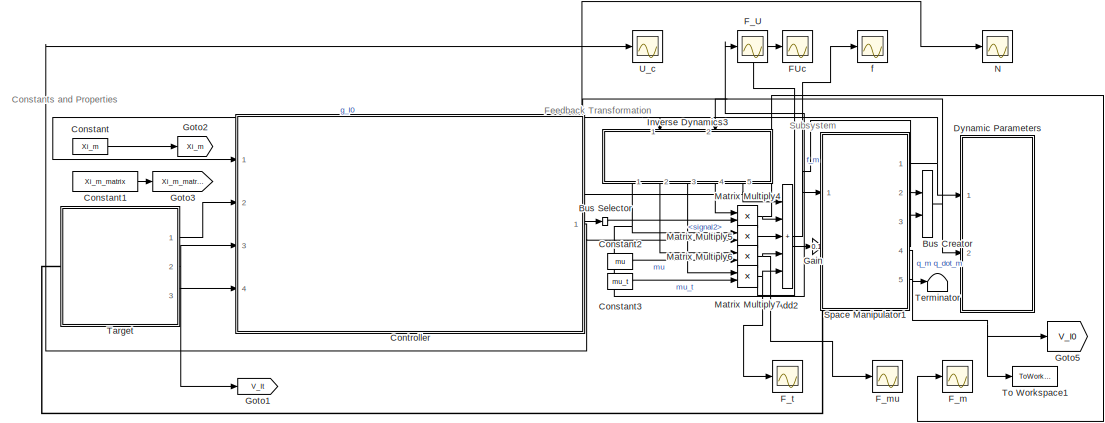
[diagram: root canvas - part 1/2, left side, full height]
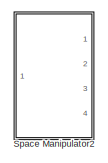
[diagram: root canvas - part 2/2, middle right region]
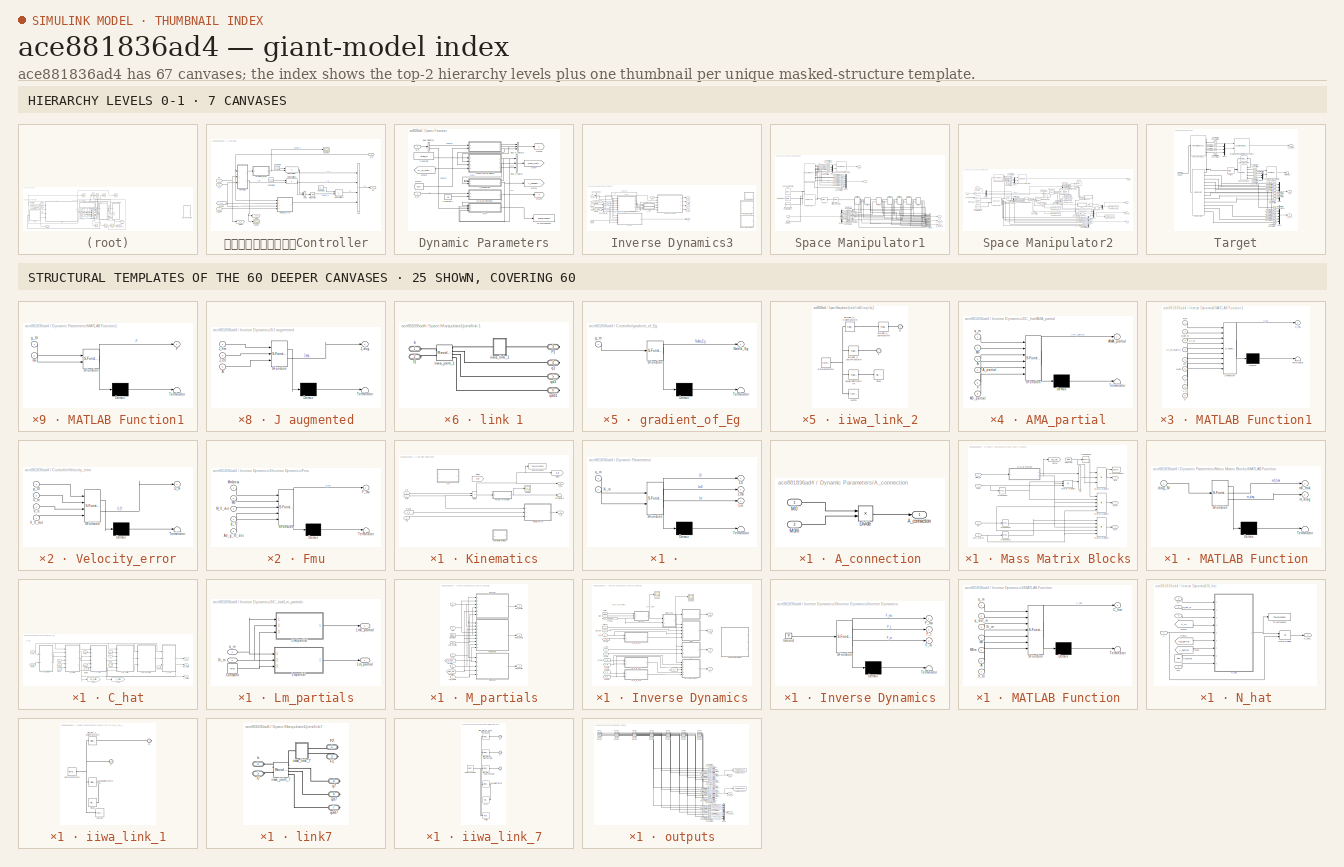
[diagram: thumbnail index - top-2 hierarchy levels (7 canvases) + 25 structural-template representatives of the remaining 60 canvases]
MODEL slx_ace881836ad4
KIND model
CONFIG AbsTol = auto
CONFIG EnableMultiTasking = off
CONFIG FixedStep = 0.01
CONFIG MaxStep = auto
CONFIG MinStep = auto
CONFIG RelTol = 1e-3
CONFIG SampleTimeConstraint = Unconstrained
CONFIG SolverName = ode4
CONFIG StartTime = 0.0
CONFIG StopTime = 5
BLOCK [SubSystem] 										Controller
  Ports = [4, 1]
  RequestExecContextInheritance = off
BLOCK [Sum] 										Controller/Add
  IconShape = rectangular
  Inputs = ++++
  Ports = [4, 1]
BLOCK [Sum] 										Controller/Add1
  IconShape = rectangular
  Ports = [2, 1]
BLOCK [Constant] 										Controller/Constant4
  Value = K_p
BLOCK [Constant] 										Controller/Constant5
  Value = -K_d
BLOCK [Constant] 										Controller/Constant6
  Value = K_i
BLOCK [From] 										Controller/From2
  GotoTag = V_I0
  TagVisibility = global
BLOCK [Goto] 										Controller/Goto
  GotoTag = V_te
  TagVisibility = global
BLOCK [Goto] 										Controller/Goto4
  GotoTag = g_It
  TagVisibility = global
BLOCK [Inport] 										Controller/In2
  Port = 2
BLOCK [Integrator] 										Controller/Integrator
  Ports = [1, 1]
BLOCK [SubSystem] 										Controller/Kinematics
  Ports = [3, 2]
  RequestExecContextInheritance = off
BLOCK [Product] 										Controller/Kinematics/Divide
  Inputs = /*
  Multiplication = Matrix(*)
  Ports = [2, 1]
BLOCK [From] 										Controller/Kinematics/From2
  GotoTag = V_I0
  TagVisibility = global
BLOCK [Goto] 										Controller/Kinematics/Goto1
  GotoTag = g_te
  TagVisibility = global
BLOCK [Goto] 										Controller/Kinematics/Goto5
  Commented = on
  GotoTag = g_Ie
  TagVisibility = global
BLOCK [SubSystem] 										Controller/Kinematics/Pose Error Function
  ErrorFcn = Stateflow.Translate.translate
  PermitHierarchicalResolution = ExplicitOnly
  Ports = [1, 1]
  RequestExecContextInheritance = off
  SFBlockType = MATLAB Function
  TreatAsAtomicUnit = on
BLOCK [Demux] 										Controller/Kinematics/Pose Error Function/ Demux 
  Outputs = 1
  Ports = [1, 1]
BLOCK [S-Function] 										Controller/Kinematics/Pose Error Function/ SFunction 
  EnableBusSupport = on
  FunctionName = sf_sfun
  PortCounts = [1 2]
  Ports = [1, 2]
  SFcnIsStateOwnerBlock = off
  SFunctionDeploymentMode = off
  Tag = Stateflow S-Function 5
BLOCK [Terminator] 										Controller/Kinematics/Pose Error Function/ Terminator 
BLOCK [Outport] 										Controller/Kinematics/Pose Error Function/E_g
BLOCK [Inport] 										Controller/Kinematics/Pose Error Function/g_te
BLOCK [Scope] 										Controller/Kinematics/Scope
  Floating = off
  NumInputPorts = 1
  Ports = [1]
  ScopeSpecificationString = Simulink.scopes.TimeScopeBlockCfg('CurrentConfiguration', extmgr.ConfigurationSet(extmgr.Configuration('Core','General UI',true),extmgr.Configuration('Core','Source UI',true),extmgr.Configuration('Sources','WiredSimulink',true,'DataLoggingVariableName','ScopeData1'),extmgr.Configuration('Visuals','Time Domain',true,'SerializedDisplays',{struct('MinYLimReal','2.09156','MaxYLimReal','2.32802','YLabe...<+1436ch>
BLOCK [Terminator] 										Controller/Kinematics/Terminator3
BLOCK [ToWorkspace] 										Controller/Kinematics/To Workspace
  FixptAsFi = on
  MaxDataPoints = inf
  Ports = [1]
  SampleTime = -1
  SaveFormat = Timeseries
  VariableName = g_te
BLOCK [Inport] 										Controller/Kinematics/V_It
  Port = 3
BLOCK [Outport] 										Controller/Kinematics/V_te
  Port = 2
BLOCK [SubSystem] 										Controller/Kinematics/Velocity_error
  ErrorFcn = Stateflow.Translate.translate
  PermitHierarchicalResolution = ExplicitOnly
  Ports = [3, 1]
  RequestExecContextInheritance = off
  SFBlockType = MATLAB Function
  TreatAsAtomicUnit = on
BLOCK [Demux] 										Controller/Kinematics/Velocity_error/ Demux 
  Outputs = 1
  Ports = [1, 1]
BLOCK [S-Function] 										Controller/Kinematics/Velocity_error/ SFunction 
  EnableBusSupport = on
  FunctionName = sf_sfun
  PortCounts = [3 2]
  Ports = [3, 2]
  SFcnIsStateOwnerBlock = off
  SFunctionDeploymentMode = off
  Tag = Stateflow S-Function 6
BLOCK [Terminator] 										Controller/Kinematics/Velocity_error/ Terminator 
BLOCK [Inport] 										Controller/Kinematics/Velocity_error/V_Ie
  Port = 2
BLOCK [Inport] 										Controller/Kinematics/Velocity_error/V_It
  Port = 3
BLOCK [Outport] 										Controller/Kinematics/Velocity_error/V_e
BLOCK [Inport] 										Controller/Kinematics/Velocity_error/g_I0
BLOCK [Inport] 										Controller/Kinematics/g_I0
BLOCK [Inport] 										Controller/Kinematics/g_It
  NameLocation = top
  Port = 2
BLOCK [SubSystem] 										Controller/Kinematics/g_te
  Commented = on
  ErrorFcn = Stateflow.Translate.translate
  PermitHierarchicalResolution = ExplicitOnly
  Ports = [2, 1]
  RequestExecContextInheritance = off
  SFBlockType = MATLAB Function
  TreatAsAtomicUnit = on
BLOCK [Demux] 										Controller/Kinematics/g_te/ Demux 
  Outputs = 1
  Ports = [1, 1]
BLOCK [S-Function] 										Controller/Kinematics/g_te/ SFunction 
  EnableBusSupport = on
  FunctionName = sf_sfun
  PortCounts = [2 2]
  Ports = [2, 2]
  SFcnIsStateOwnerBlock = off
  SFunctionDeploymentMode = off
  Tag = Stateflow S-Function 3
BLOCK [Terminator] 										Controller/Kinematics/g_te/ Terminator 
BLOCK [Inport] 										Controller/Kinematics/g_te/g_Ie
BLOCK [Inport] 										Controller/Kinematics/g_te/g_It
  Port = 2
BLOCK [Outport] 										Controller/Kinematics/g_te/g_te
BLOCK [Outport] 										Controller/Kinematics/g_te1
BLOCK [SubSystem] 										Controller/Kinematics/velocity of target in EE
  Commented = on
  ErrorFcn = Stateflow.Translate.translate
  PermitHierarchicalResolution = ExplicitOnly
  Ports = [2, 1]
  RequestExecContextInheritance = off
  SFBlockType = MATLAB Function
  TreatAsAtomicUnit = on
BLOCK [Demux] 										Controller/Kinematics/velocity of target in EE/ Demux 
  Outputs = 1
  Ports = [1, 1]
BLOCK [S-Function] 										Controller/Kinematics/velocity of target in EE/ SFunction 
  EnableBusSupport = on
  FunctionName = sf_sfun
  PortCounts = [2 2]
  Ports = [2, 2]
  SFcnIsStateOwnerBlock = off
  SFunctionDeploymentMode = off
  Tag = Stateflow S-Function 26
BLOCK [Terminator] 										Controller/Kinematics/velocity of target in EE/ Terminator 
BLOCK [Inport] 										Controller/Kinematics/velocity of target in EE/V_It
  Port = 2
BLOCK [Outport] 										Controller/Kinematics/velocity of target in EE/V_It_e
BLOCK [Inport] 										Controller/Kinematics/velocity of target in EE/g_te
BLOCK [Product] 										Controller/Matrix Multiply1
  Multiplication = Matrix(*)
  Ports = [2, 1]
BLOCK [Product] 										Controller/Matrix Multiply2
  Multiplication = Matrix(*)
  Ports = [2, 1]
BLOCK [Product] 										Controller/Matrix Multiply3
  Multiplication = Matrix(*)
  Ports = [2, 1]
BLOCK [Scope] 										Controller/Scope
  Floating = off
  NumInputPorts = 1
  Ports = [1]
  ScopeSpecificationString = Simulink.scopes.TimeScopeBlockCfg('CurrentConfiguration', extmgr.ConfigurationSet(extmgr.Configuration('Core','General UI',true),extmgr.Configuration('Core','Source UI',true),extmgr.Configuration('Sources','WiredSimulink',true),extmgr.Configuration('Visuals','Time Domain',true,'SerializedDisplays',{struct('MinYLimReal','-113.11842','MaxYLimReal','125.42038','YLabelReal','','MinYLimMag',' 0.00000',...<+1441ch>
BLOCK [Scope] 										Controller/Scope3
  Floating = off
  NumInputPorts = 1
  Ports = [1]
  ScopeSpecificationString = Simulink.scopes.TimeScopeBlockCfg('CurrentConfiguration', extmgr.ConfigurationSet(extmgr.Configuration('Core','General UI',true),extmgr.Configuration('Core','Source UI',true),extmgr.Configuration('Sources','WiredSimulink',true,'DataLoggingVariableName','ScopeData5'),extmgr.Configuration('Visuals','Time Domain',true,'SerializedDisplays',{struct('MinYLimReal','-1.80075','MaxYLimReal','0.17123','YLab...<+1637ch>
BLOCK [Outport] 										Controller/Uc
BLOCK [Inport] 										Controller/V_It
  Port = 3
BLOCK [Inport] 										Controller/V_It_dot
  Port = 4
BLOCK [SubSystem] 										Controller/Velocity_error
  ErrorFcn = Stateflow.Translate.translate
  PermitHierarchicalResolution = ExplicitOnly
  Ports = [4, 1]
  RequestExecContextInheritance = off
  SFBlockType = MATLAB Function
  TreatAsAtomicUnit = on
BLOCK [Demux] 										Controller/Velocity_error/ Demux 
  Outputs = 1
  Ports = [1, 1]
BLOCK [S-Function] 										Controller/Velocity_error/ SFunction 
  EnableBusSupport = on
  FunctionName = sf_sfun
  PortCounts = [4 2]
  Ports = [4, 2]
  SFcnIsStateOwnerBlock = off
  SFunctionDeploymentMode = off
  Tag = Stateflow S-Function 1
BLOCK [Terminator] 										Controller/Velocity_error/ Terminator 
BLOCK [Outport] 										Controller/Velocity_error/U_ff
BLOCK [Inport] 										Controller/Velocity_error/V_Ie
  Port = 2
BLOCK [Inport] 										Controller/Velocity_error/V_It
  Port = 3
BLOCK [Inport] 										Controller/Velocity_error/V_It_dot
  Port = 4
BLOCK [Inport] 										Controller/Velocity_error/g_I0
BLOCK [Inport] 										Controller/g_I0
BLOCK [SubSystem] 										Controller/gradient_of_Eg
  ErrorFcn = Stateflow.Translate.translate
  PermitHierarchicalResolution = ExplicitOnly
  Ports = [1, 1]
  RequestExecContextInheritance = off
  SFBlockType = MATLAB Function
  TreatAsAtomicUnit = on
BLOCK [Demux] 										Controller/gradient_of_Eg/ Demux 
  Outputs = 1
  Ports = [1, 1]
BLOCK [S-Function] 										Controller/gradient_of_Eg/ SFunction 
  EnableBusSupport = on
  FunctionName = sf_sfun
  PortCounts = [1 2]
  Ports = [1, 2]
  SFcnIsStateOwnerBlock = off
  SFunctionDeploymentMode = off
  Tag = Stateflow S-Function 2
BLOCK [Terminator] 										Controller/gradient_of_Eg/ Terminator 
BLOCK [Outport] 										Controller/gradient_of_Eg/Nabla_Eg
BLOCK [Inport] 										Controller/gradient_of_Eg/g_te
BLOCK [Sum] Add2
  IconShape = rectangular
  Inputs = +++++
  Ports = [5, 1]
BLOCK [BusCreator] Bus Creator
  DisplayOption = bar
  InheritFromInputs = on
  Inputs = 2
  Ports = [2, 1]
BLOCK [BusSelector] Bus Selector
  OutputSignals = signal2
  Ports = [1, 1]
BLOCK [Constant] Constant
  Value = Xi_m
BLOCK [Constant] Constant1
  Value = Xi_m_matrix
BLOCK [Constant] Constant2
  Value = mu
BLOCK [Constant] Constant3
  Value = mu_t
BLOCK [SubSystem] Dynamic Parameters
  Ports = [2]
  RequestExecContextInheritance = off
BLOCK [SubSystem] Dynamic Parameters/ 
  ErrorFcn = Stateflow.Translate.translate
  PermitHierarchicalResolution = ExplicitOnly
  Ports = [2, 3]
  RequestExecContextInheritance = off
  SFBlockType = MATLAB Function
  TreatAsAtomicUnit = on
BLOCK [Demux] Dynamic Parameters/ / Demux 
  Outputs = 1
  Ports = [1, 1]
BLOCK [S-Function] Dynamic Parameters/ / SFunction 
  EnableBusSupport = on
  FunctionName = sf_sfun
  PortCounts = [2 4]
  Ports = [2, 4]
  SFcnIsStateOwnerBlock = off
  SFunctionDeploymentMode = off
  Tag = Stateflow S-Function 61
BLOCK [Terminator] Dynamic Parameters/ / Terminator 
BLOCK [Outport] Dynamic Parameters/ /L0
BLOCK [Outport] Dynamic Parameters/ /Lm
  Port = 3
BLOCK [Outport] Dynamic Parameters/ /Lm0
  Port = 2
BLOCK [Inport] Dynamic Parameters/ /Xi_m
  Port = 2
BLOCK [Inport] Dynamic Parameters/ /q_m
BLOCK [SubSystem] Dynamic Parameters/A_connection
  Ports = [2, 1]
  RequestExecContextInheritance = off
BLOCK [Outport] Dynamic Parameters/A_connection/A_connection
BLOCK [Product] Dynamic Parameters/A_connection/Divide
  Inputs = /*
  Multiplication = Matrix(*)
  Ports = [2, 1]
BLOCK [Inport] Dynamic Parameters/A_connection/M0
BLOCK [Inport] Dynamic Parameters/A_connection/M0m
  Port = 2
BLOCK [BusCreator] Dynamic Parameters/Bus Creator
  DisplayOption = bar
  InheritFromInputs = on
  Inputs = 3
  Ports = [3, 1]
BLOCK [BusCreator] Dynamic Parameters/Bus Creator2
  DisplayOption = bar
  InheritFromInputs = on
  Inputs = 3
  Ports = [3, 1]
BLOCK [BusSelector] Dynamic Parameters/Bus Selector
  OutputSignals = signal1,signal2
  Ports = [1, 2]
BLOCK [Constant] Dynamic Parameters/Constant
  Value = diag_M
  VectorParams1D = off
BLOCK [Constant] Dynamic Parameters/Constant1
  Value = mu
BLOCK [From] Dynamic Parameters/From1
  GotoTag = Xi_m
  TagVisibility = global
BLOCK [From] Dynamic Parameters/From2
  GotoTag = Xi_m_matrix
  TagVisibility = global
BLOCK [Goto] Dynamic Parameters/Goto
  GotoTag = Mass_Matrix
  TagVisibility = global
BLOCK [Goto] Dynamic Parameters/Goto1
  GotoTag = A_connection
  TagVisibility = global
BLOCK [Goto] Dynamic Parameters/Goto4
  GotoTag = P
  TagVisibility = global
BLOCK [Goto] Dynamic Parameters/Goto5
  GotoTag = L
  TagVisibility = global
BLOCK [SubSystem] Dynamic Parameters/MATLAB Function1
  ErrorFcn = Stateflow.Translate.translate
  PermitHierarchicalResolution = ExplicitOnly
  Ports = [2, 1]
  RequestExecContextInheritance = off
  SFBlockType = MATLAB Function
  TreatAsAtomicUnit = on
BLOCK [Demux] Dynamic Parameters/MATLAB Function1/ Demux 
  Outputs = 1
  Ports = [1, 1]
BLOCK [S-Function] Dynamic Parameters/MATLAB Function1/ SFunction 
  EnableBusSupport = on
  FunctionName = sf_sfun
  PortCounts = [2 2]
  Ports = [2, 2]
  SFcnIsStateOwnerBlock = off
  SFunctionDeploymentMode = off
  Tag = Stateflow S-Function 22
BLOCK [Terminator] Dynamic Parameters/MATLAB Function1/ Terminator 
BLOCK [Outport] Dynamic Parameters/MATLAB Function1/P
BLOCK [Inport] Dynamic Parameters/MATLAB Function1/g_I0
BLOCK [Inport] Dynamic Parameters/MATLAB Function1/mu
  Port = 2
BLOCK [SubSystem] Dynamic Parameters/Mass Matrix Blocks
  Ports = [4, 3]
  RequestExecContextInheritance = off
BLOCK [Sum] Dynamic Parameters/Mass Matrix Blocks/Add
  IconShape = rectangular
  Ports = [2, 1]
BLOCK [Constant] Dynamic Parameters/Mass Matrix Blocks/Constant
  Value = iota0
BLOCK [Goto] Dynamic Parameters/Mass Matrix Blocks/Goto5
  GotoTag = diag_Mm
  TagVisibility = global
BLOCK [Inport] Dynamic Parameters/Mass Matrix Blocks/Lm
  Port = 3
BLOCK [Inport] Dynamic Parameters/Mass Matrix Blocks/Lm0
  Port = 2
BLOCK [Outport] Dynamic Parameters/Mass Matrix Blocks/M0
BLOCK [Outport] Dynamic Parameters/Mass Matrix Blocks/M0m
  Port = 2
BLOCK [SubSystem] Dynamic Parameters/Mass Matrix Blocks/MATLAB Function
  ErrorFcn = Stateflow.Translate.translate
  PermitHierarchicalResolution = ExplicitOnly
  Ports = [1, 2]
  RequestExecContextInheritance = off
  SFBlockType = MATLAB Function
  TreatAsAtomicUnit = on
BLOCK [Demux] Dynamic Parameters/Mass Matrix Blocks/MATLAB Function/ Demux 
  Outputs = 1
  Ports = [1, 1]
BLOCK [S-Function] Dynamic Parameters/Mass Matrix Blocks/MATLAB Function/ SFunction 
  EnableBusSupport = on
  FunctionName = sf_sfun
  PortCounts = [1 3]
  Ports = [1, 3]
  SFcnIsStateOwnerBlock = off
  SFunctionDeploymentMode = off
  Tag = Stateflow S-Function 63
BLOCK [Terminator] Dynamic Parameters/Mass Matrix Blocks/MATLAB Function/ Terminator 
BLOCK [Inport] Dynamic Parameters/Mass Matrix Blocks/MATLAB Function/diag_M
BLOCK [Outport] Dynamic Parameters/Mass Matrix Blocks/MATLAB Function/m0_frak
BLOCK [Outport] Dynamic Parameters/Mass Matrix Blocks/MATLAB Function/m_diag
  Port = 2
BLOCK [Product] Dynamic Parameters/Mass Matrix Blocks/Matrix Multiply1
  Inputs = 5
  Multiplication = Matrix(*)
  Ports = [5, 1]
BLOCK [Product] Dynamic Parameters/Mass Matrix Blocks/Matrix Multiply2
  Inputs = 5
  Multiplication = Matrix(*)
  Ports = [5, 1]
BLOCK [Product] Dynamic Parameters/Mass Matrix Blocks/Matrix Multiply3
  Inputs = 3
  Multiplication = Matrix(*)
  Ports = [3, 1]
BLOCK [Product] Dynamic Parameters/Mass Matrix Blocks/Matrix Multiply4
  Inputs = 3
  Multiplication = Matrix(*)
  Ports = [3, 1]
BLOCK [Outport] Dynamic Parameters/Mass Matrix Blocks/Mm
  Port = 3
BLOCK [ToWorkspace] Dynamic Parameters/Mass Matrix Blocks/To Workspace2
  FixptAsFi = on
  MaxDataPoints = inf
  Ports = [1]
  SampleTime = -1
  SaveFormat = Timeseries
  VariableName = m0calc
BLOCK [Math] Dynamic Parameters/Mass Matrix Blocks/Transpose1
  Operator = transpose
  Ports = [1, 1]
BLOCK [Math] Dynamic Parameters/Mass Matrix Blocks/Transpose2
  Operator = transpose
  Ports = [1, 1]
BLOCK [Math] Dynamic Parameters/Mass Matrix Blocks/Transpose3
  Operator = transpose
  Ports = [1, 1]
BLOCK [Math] Dynamic Parameters/Mass Matrix Blocks/Transpose4
  Operator = transpose
  Ports = [1, 1]
BLOCK [Inport] Dynamic Parameters/Mass Matrix Blocks/Xi_m_matrix
  Port = 4
BLOCK [Inport] Dynamic Parameters/Mass Matrix Blocks/diag_M
BLOCK [ToWorkspace] Dynamic Parameters/To Workspace1
  FixptAsFi = on
  MaxDataPoints = inf
  Ports = [1]
  SampleTime = -1
  SaveFormat = Timeseries
  VariableName = V_I0
BLOCK [SubSystem] Dynamic Parameters/V_I0
  ErrorFcn = Stateflow.Translate.translate
  PermitHierarchicalResolution = ExplicitOnly
  Ports = [4, 1]
  RequestExecContextInheritance = off
  SFBlockType = MATLAB Function
  TreatAsAtomicUnit = on
BLOCK [Demux] Dynamic Parameters/V_I0/ Demux 
  Outputs = 1
  Ports = [1, 1]
BLOCK [S-Function] Dynamic Parameters/V_I0/ SFunction 
  EnableBusSupport = on
  FunctionName = sf_sfun
  PortCounts = [4 2]
  Ports = [4, 2]
  SFcnIsStateOwnerBlock = off
  SFunctionDeploymentMode = off
  Tag = Stateflow S-Function 64
BLOCK [Terminator] Dynamic Parameters/V_I0/ Terminator 
BLOCK [Inport] Dynamic Parameters/V_I0/A_connection
  Port = 2
BLOCK [Inport] Dynamic Parameters/V_I0/M0
  Port = 4
BLOCK [Inport] Dynamic Parameters/V_I0/P
BLOCK [Outport] Dynamic Parameters/V_I0/V_I0
BLOCK [Inport] Dynamic Parameters/V_I0/q_dot_m
  Port = 3
BLOCK [Inport] Dynamic Parameters/g_I0
BLOCK [Inport] Dynamic Parameters/q_m
  Port = 2
BLOCK [Scope] FUc
  Floating = off
  NumInputPorts = 1
  Ports = [1]
  ScopeSpecificationString = Simulink.scopes.TimeScopeBlockCfg('CurrentConfiguration', extmgr.ConfigurationSet(extmgr.Configuration('Core','General UI',true),extmgr.Configuration('Core','Source UI',true),extmgr.Configuration('Sources','WiredSimulink',true,'DataLoggingVariableName','ScopeData2'),extmgr.Configuration('Visuals','Time Domain',true,'SerializedDisplays',{struct('MinYLimReal','-797.33938','MaxYLimReal','561.34596','...<+1733ch>
BLOCK [Scope] F_U
  Floating = off
  NumInputPorts = 1
  Ports = [1]
  ScopeSpecificationString = Simulink.scopes.TimeScopeBlockCfg('CurrentConfiguration', extmgr.ConfigurationSet(extmgr.Configuration('Core','General UI',true),extmgr.Configuration('Core','Source UI',true),extmgr.Configuration('Sources','WiredSimulink',true,'DataLoggingVariableName','ScopeData3'),extmgr.Configuration('Visuals','Time Domain',true,'SerializedDisplays',{struct('MinYLimReal','-179.8386','MaxYLimReal','78.69875','YL...<+2706ch>
BLOCK [Scope] F_m
  Floating = off
  NumInputPorts = 1
  Ports = [1]
  ScopeSpecificationString = Simulink.scopes.TimeScopeBlockCfg('CurrentConfiguration', extmgr.ConfigurationSet(extmgr.Configuration('Core','General UI',true),extmgr.Configuration('Core','Source UI',true),extmgr.Configuration('Sources','WiredSimulink',true,'DataLoggingVariableName','ScopeData3'),extmgr.Configuration('Visuals','Time Domain',true,'SerializedDisplays',{struct('MinYLimReal','-315306.58584','MaxYLimReal','420964.73...<+1724ch>
BLOCK [Scope] F_mu
  Floating = off
  NumInputPorts = 1
  Ports = [1]
  ScopeSpecificationString = Simulink.scopes.TimeScopeBlockCfg('CurrentConfiguration', extmgr.ConfigurationSet(extmgr.Configuration('Core','General UI',true),extmgr.Configuration('Core','Source UI',true),extmgr.Configuration('Sources','WiredSimulink',true,'DataLoggingVariableName','ScopeData2'),extmgr.Configuration('Visuals','Time Domain',true,'SerializedDisplays',{struct('MinYLimReal','-1.00000','MaxYLimReal','1.00000','YLab...<+1686ch>
BLOCK [Scope] F_t
  Floating = off
  NumInputPorts = 1
  Ports = [1]
  ScopeSpecificationString = Simulink.scopes.TimeScopeBlockCfg('CurrentConfiguration', extmgr.ConfigurationSet(extmgr.Configuration('Core','General UI',true),extmgr.Configuration('Core','Source UI',true),extmgr.Configuration('Sources','WiredSimulink',true,'DataLoggingVariableName','ScopeData1'),extmgr.Configuration('Visuals','Time Domain',true,'SerializedDisplays',{struct('MinYLimReal','-1.00000','MaxYLimReal','1.00000','YLab...<+1686ch>
BLOCK [Gain] Gain
  Gain = 0.1
BLOCK [Goto] Goto1
  GotoTag = V_It
  TagVisibility = global
BLOCK [Goto] Goto2
  GotoTag = Xi_m
  TagVisibility = global
BLOCK [Goto] Goto3
  GotoTag = Xi_m_matrix
  TagVisibility = global
BLOCK [Goto] Goto5
  GotoTag = V_I0
  TagVisibility = global
BLOCK [SubSystem] Inverse Dynamics3
  Ports = [2, 5]
  RequestExecContextInheritance = off
BLOCK [SubSystem] Inverse Dynamics3/A_dot
  ErrorFcn = Stateflow.Translate.translate
  PermitHierarchicalResolution = ExplicitOnly
  Ports = [2, 1]
  RequestExecContextInheritance = off
  SFBlockType = MATLAB Function
  TreatAsAtomicUnit = on
BLOCK [Demux] Inverse Dynamics3/A_dot/ Demux 
  Outputs = 1
  Ports = [1, 1]
BLOCK [S-Function] Inverse Dynamics3/A_dot/ SFunction 
  EnableBusSupport = on
  FunctionName = sf_sfun
  PortCounts = [2 2]
  Ports = [2, 2]
  SFcnIsStateOwnerBlock = off
  SFunctionDeploymentMode = off
  Tag = Stateflow S-Function 95
BLOCK [Terminator] Inverse Dynamics3/A_dot/ Terminator 
BLOCK [Outport] Inverse Dynamics3/A_dot/A_dot
BLOCK [Inport] Inverse Dynamics3/A_dot/A_partial
BLOCK [Inport] Inverse Dynamics3/A_dot/q_m
  Port = 2
BLOCK [BusSelector] Inverse Dynamics3/Bus Selector
  OutputSignals = M0,M0m,Mm
  Ports = [1, 3]
BLOCK [BusSelector] Inverse Dynamics3/Bus Selector1
  OutputSignals = Lm0,Lm
  Ports = [1, 2]
BLOCK [BusSelector] Inverse Dynamics3/Bus Selector2
  OutputSignals = signal1,signal2
  Ports = [1, 2]
BLOCK [SubSystem] Inverse Dynamics3/C_hat
  Ports = [7, 3]
  RequestExecContextInheritance = off
BLOCK [Inport] Inverse Dynamics3/C_hat/<Lm0>
  Port = 4
BLOCK [Inport] Inverse Dynamics3/C_hat/<Lm>
  Port = 5
BLOCK [Inport] Inverse Dynamics3/C_hat/<M0>
  Port = 6
BLOCK [InportShadow] Inverse Dynamics3/C_hat/<M0>1
  Port = 6
BLOCK [Inport] Inverse Dynamics3/C_hat/<M0m>
  Port = 7
BLOCK [Inport] Inverse Dynamics3/C_hat/A
  Port = 3
BLOCK [SubSystem] Inverse Dynamics3/C_hat/AMA_partial
  ErrorFcn = Stateflow.Translate.translate
  PermitHierarchicalResolution = ExplicitOnly
  Ports = [6, 1]
  RequestExecContextInheritance = off
  SFBlockType = MATLAB Function
  TreatAsAtomicUnit = on
BLOCK [Demux] Inverse Dynamics3/C_hat/AMA_partial/ Demux 
  Outputs = 1
  Ports = [1, 1]
BLOCK [S-Function] Inverse Dynamics3/C_hat/AMA_partial/ SFunction 
  EnableBusSupport = on
  FunctionName = sf_sfun
  PortCounts = [6 2]
  Ports = [6, 2]
  SFcnIsStateOwnerBlock = off
  SFunctionDeploymentMode = off
  Tag = Stateflow S-Function 96
BLOCK [Terminator] Inverse Dynamics3/C_hat/AMA_partial/ Terminator 
BLOCK [Inport] Inverse Dynamics3/C_hat/AMA_partial/A
  Port = 3
BLOCK [Outport] Inverse Dynamics3/C_hat/AMA_partial/AMA_partial
BLOCK [Inport] Inverse Dynamics3/C_hat/AMA_partial/A_partial
  Port = 4
BLOCK [Inport] Inverse Dynamics3/C_hat/AMA_partial/M0
  Port = 2
BLOCK [Inport] Inverse Dynamics3/C_hat/AMA_partial/M0_partial
  Port = 6
BLOCK [Inport] Inverse Dynamics3/C_hat/AMA_partial/V
  Port = 5
BLOCK [Inport] Inverse Dynamics3/C_hat/AMA_partial/q_m
BLOCK [SubSystem] Inverse Dynamics3/C_hat/A_partial
  ErrorFcn = Stateflow.Translate.translate
  PermitHierarchicalResolution = ExplicitOnly
  Ports = [6, 1]
  RequestExecContextInheritance = off
  SFBlockType = MATLAB Function
  TreatAsAtomicUnit = on
BLOCK [Demux] Inverse Dynamics3/C_hat/A_partial/ Demux 
  Outputs = 1
  Ports = [1, 1]
BLOCK [S-Function] Inverse Dynamics3/C_hat/A_partial/ SFunction 
  EnableBusSupport = on
  FunctionName = sf_sfun
  PortCounts = [6 2]
  Ports = [6, 2]
  SFcnIsStateOwnerBlock = off
  SFunctionDeploymentMode = off
  Tag = Stateflow S-Function 97
BLOCK [Terminator] Inverse Dynamics3/C_hat/A_partial/ Terminator 
BLOCK [Outport] Inverse Dynamics3/C_hat/A_partial/A_partial
BLOCK [Inport] Inverse Dynamics3/C_hat/A_partial/M0
  Port = 2
BLOCK [Inport] Inverse Dynamics3/C_hat/A_partial/M0_partial
  Port = 3
BLOCK [Inport] Inverse Dynamics3/C_hat/A_partial/M0m
  Port = 5
BLOCK [Inport] Inverse Dynamics3/C_hat/A_partial/M0m_partial
  Port = 4
BLOCK [Inport] Inverse Dynamics3/C_hat/A_partial/V
  Port = 6
BLOCK [Inport] Inverse Dynamics3/C_hat/A_partial/q_m
BLOCK [Outport] Inverse Dynamics3/C_hat/A_partial1
  Port = 2
BLOCK [Outport] Inverse Dynamics3/C_hat/C_hat
  Port = 3
BLOCK [SubSystem] Inverse Dynamics3/C_hat/C_hat1
  ErrorFcn = Stateflow.Translate.translate
  PermitHierarchicalResolution = ExplicitOnly
  Ports = [3, 1]
  RequestExecContextInheritance = off
  SFBlockType = MATLAB Function
  TreatAsAtomicUnit = on
BLOCK [Demux] Inverse Dynamics3/C_hat/C_hat1/ Demux 
  Outputs = 1
  Ports = [1, 1]
BLOCK [S-Function] Inverse Dynamics3/C_hat/C_hat1/ SFunction 
  EnableBusSupport = on
  FunctionName = sf_sfun
  PortCounts = [3 2]
  Ports = [3, 2]
  SFcnIsStateOwnerBlock = off
  SFunctionDeploymentMode = off
  Tag = Stateflow S-Function 98
BLOCK [Terminator] Inverse Dynamics3/C_hat/C_hat1/ Terminator 
BLOCK [Outport] Inverse Dynamics3/C_hat/C_hat1/C_hat
BLOCK [Inport] Inverse Dynamics3/C_hat/C_hat1/Mm_hat_partial
  Port = 2
BLOCK [Inport] Inverse Dynamics3/C_hat/C_hat1/q_dot_m
  Port = 3
BLOCK [Inport] Inverse Dynamics3/C_hat/C_hat1/q_m
BLOCK [From] Inverse Dynamics3/C_hat/From4
  GotoTag = V_I0
  TagVisibility = global
BLOCK [From] Inverse Dynamics3/C_hat/From5
  GotoTag = Xi_m
  TagVisibility = global
BLOCK [From] Inverse Dynamics3/C_hat/From6
  GotoTag = V_I0
  TagVisibility = global
BLOCK [From] Inverse Dynamics3/C_hat/From7
  GotoTag = V_I0
  TagVisibility = global
BLOCK [Goto] Inverse Dynamics3/C_hat/Goto1
  GotoTag = M0_partial
  TagVisibility = global
BLOCK [Goto] Inverse Dynamics3/C_hat/Goto2
  GotoTag = A_partial
  TagVisibility = global
BLOCK [SubSystem] Inverse Dynamics3/C_hat/Lm_partials
  Ports = [2, 2]
  RequestExecContextInheritance = off
BLOCK [Constant] Inverse Dynamics3/C_hat/Lm_partials/Constant
  Value = iota0
BLOCK [Outport] Inverse Dynamics3/C_hat/Lm_partials/Lm0_partial
  Port = 2
BLOCK [SubSystem] Inverse Dynamics3/C_hat/Lm_partials/Lm0partial
  ErrorFcn = Stateflow.Translate.translate
  PermitHierarchicalResolution = ExplicitOnly
  Ports = [3, 1]
  RequestExecContextInheritance = off
  SFBlockType = MATLAB Function
  TreatAsAtomicUnit = on
BLOCK [Demux] Inverse Dynamics3/C_hat/Lm_partials/Lm0partial/ Demux 
  Outputs = 1
  Ports = [1, 1]
BLOCK [S-Function] Inverse Dynamics3/C_hat/Lm_partials/Lm0partial/ SFunction 
  EnableBusSupport = on
  FunctionName = sf_sfun
  PortCounts = [3 2]
  Ports = [3, 2]
  SFcnIsStateOwnerBlock = off
  SFunctionDeploymentMode = off
  Tag = Stateflow S-Function 99
BLOCK [Terminator] Inverse Dynamics3/C_hat/Lm_partials/Lm0partial/ Terminator 
BLOCK [Outport] Inverse Dynamics3/C_hat/Lm_partials/Lm0partial/Lm0_partial
BLOCK [Inport] Inverse Dynamics3/C_hat/Lm_partials/Lm0partial/Xi_m
  Port = 2
BLOCK [Inport] Inverse Dynamics3/C_hat/Lm_partials/Lm0partial/iota0
  Port = 3
BLOCK [Inport] Inverse Dynamics3/C_hat/Lm_partials/Lm0partial/q_m
BLOCK [Outport] Inverse Dynamics3/C_hat/Lm_partials/Lm_partial
BLOCK [SubSystem] Inverse Dynamics3/C_hat/Lm_partials/Lmpartial
  ErrorFcn = Stateflow.Translate.translate
  PermitHierarchicalResolution = ExplicitOnly
  Ports = [3, 1]
  RequestExecContextInheritance = off
  SFBlockType = MATLAB Function
  TreatAsAtomicUnit = on
BLOCK [Demux] Inverse Dynamics3/C_hat/Lm_partials/Lmpartial/ Demux 
  Outputs = 1
  Ports = [1, 1]
BLOCK [S-Function] Inverse Dynamics3/C_hat/Lm_partials/Lmpartial/ SFunction 
  EnableBusSupport = on
  FunctionName = sf_sfun
  PortCounts = [3 2]
  Ports = [3, 2]
  SFcnIsStateOwnerBlock = off
  SFunctionDeploymentMode = off
  Tag = Stateflow S-Function 100
BLOCK [Terminator] Inverse Dynamics3/C_hat/Lm_partials/Lmpartial/ Terminator 
BLOCK [Outport] Inverse Dynamics3/C_hat/Lm_partials/Lmpartial/Lm_partial
BLOCK [Inport] Inverse Dynamics3/C_hat/Lm_partials/Lmpartial/Xi_m
  Port = 2
BLOCK [Inport] Inverse Dynamics3/C_hat/Lm_partials/Lmpartial/iota0
  Port = 3
BLOCK [Inport] Inverse Dynamics3/C_hat/Lm_partials/Lmpartial/q_m
BLOCK [Inport] Inverse Dynamics3/C_hat/Lm_partials/Xi_m
  Port = 2
BLOCK [Inport] Inverse Dynamics3/C_hat/Lm_partials/q_m
BLOCK [Outport] Inverse Dynamics3/C_hat/M0_partial
BLOCK [SubSystem] Inverse Dynamics3/C_hat/M_partials
  Ports = [6, 3]
  RequestExecContextInheritance = off
BLOCK [SubSystem] Inverse Dynamics3/C_hat/M_partials/ M0partial
  ErrorFcn = Stateflow.Translate.translate
  PermitHierarchicalResolution = ExplicitOnly
  Ports = [6, 1]
  RequestExecContextInheritance = off
  SFBlockType = MATLAB Function
  TreatAsAtomicUnit = on
BLOCK [Demux] Inverse Dynamics3/C_hat/M_partials/ M0partial/ Demux 
  Outputs = 1
  Ports = [1, 1]
BLOCK [S-Function] Inverse Dynamics3/C_hat/M_partials/ M0partial/ SFunction 
  EnableBusSupport = on
  FunctionName = sf_sfun
  PortCounts = [6 2]
  Ports = [6, 2]
  SFcnIsStateOwnerBlock = off
  SFunctionDeploymentMode = off
  Tag = Stateflow S-Function 101
BLOCK [Terminator] Inverse Dynamics3/C_hat/M_partials/ M0partial/ Terminator 
BLOCK [Inport] Inverse Dynamics3/C_hat/M_partials/ M0partial/Lm0
  Port = 2
BLOCK [Inport] Inverse Dynamics3/C_hat/M_partials/ M0partial/Lm0_partial
  Port = 6
BLOCK [Outport] Inverse Dynamics3/C_hat/M_partials/ M0partial/M0_partial
BLOCK [Inport] Inverse Dynamics3/C_hat/M_partials/ M0partial/V
  Port = 3
BLOCK [Inport] Inverse Dynamics3/C_hat/M_partials/ M0partial/diag_Mm
  Port = 5
BLOCK [Inport] Inverse Dynamics3/C_hat/M_partials/ M0partial/iota0
  Port = 4
BLOCK [Inport] Inverse Dynamics3/C_hat/M_partials/ M0partial/q_m
BLOCK [Constant] Inverse Dynamics3/C_hat/M_partials/Constant
  Value = iota0
BLOCK [From] Inverse Dynamics3/C_hat/M_partials/From6
  GotoTag = Xi_m_matrix
  TagVisibility = global
BLOCK [From] Inverse Dynamics3/C_hat/M_partials/From8
  GotoTag = diag_Mm
  TagVisibility = global
BLOCK [Inport] Inverse Dynamics3/C_hat/M_partials/Lm
  Port = 4
BLOCK [Inport] Inverse Dynamics3/C_hat/M_partials/Lm0
  Port = 5
BLOCK [Inport] Inverse Dynamics3/C_hat/M_partials/Lm0_partial
  Port = 3
BLOCK [Inport] Inverse Dynamics3/C_hat/M_partials/Lm_partial
  Port = 2
BLOCK [Outport] Inverse Dynamics3/C_hat/M_partials/M0_partial
BLOCK [Outport] Inverse Dynamics3/C_hat/M_partials/M0m_partial
  Port = 2
BLOCK [SubSystem] Inverse Dynamics3/C_hat/M_partials/M0mpartial
  ErrorFcn = Stateflow.Translate.translate
  PermitHierarchicalResolution = ExplicitOnly
  Ports = [9, 1]
  RequestExecContextInheritance = off
  SFBlockType = MATLAB Function
  TreatAsAtomicUnit = on
BLOCK [Demux] Inverse Dynamics3/C_hat/M_partials/M0mpartial/ Demux 
  Outputs = 1
  Ports = [1, 1]
BLOCK [S-Function] Inverse Dynamics3/C_hat/M_partials/M0mpartial/ SFunction 
  EnableBusSupport = on
  FunctionName = sf_sfun
  PortCounts = [9 2]
  Ports = [9, 2]
  SFcnIsStateOwnerBlock = off
  SFunctionDeploymentMode = off
  Tag = Stateflow S-Function 102
BLOCK [Terminator] Inverse Dynamics3/C_hat/M_partials/M0mpartial/ Terminator 
BLOCK [Inport] Inverse Dynamics3/C_hat/M_partials/M0mpartial/Lm
  Port = 3
BLOCK [Inport] Inverse Dynamics3/C_hat/M_partials/M0mpartial/Lm0
  Port = 4
BLOCK [Inport] Inverse Dynamics3/C_hat/M_partials/M0mpartial/Lm0_partial
  Port = 7
BLOCK [Inport] Inverse Dynamics3/C_hat/M_partials/M0mpartial/Lm_partial
  Port = 8
BLOCK [Outport] Inverse Dynamics3/C_hat/M_partials/M0mpartial/M0m_partial
BLOCK [Inport] Inverse Dynamics3/C_hat/M_partials/M0mpartial/V
  Port = 2
BLOCK [Inport] Inverse Dynamics3/C_hat/M_partials/M0mpartial/Xi_m_matrix
  Port = 9
BLOCK [Inport] Inverse Dynamics3/C_hat/M_partials/M0mpartial/diag_Mm
  Port = 6
BLOCK [Inport] Inverse Dynamics3/C_hat/M_partials/M0mpartial/iota0
  Port = 5
BLOCK [Inport] Inverse Dynamics3/C_hat/M_partials/M0mpartial/q_m
BLOCK [Outport] Inverse Dynamics3/C_hat/M_partials/Mm_partial
  Port = 3
BLOCK [SubSystem] Inverse Dynamics3/C_hat/M_partials/Mmpartial
  ErrorFcn = Stateflow.Translate.translate
  PermitHierarchicalResolution = ExplicitOnly
  Ports = [5, 1]
  RequestExecContextInheritance = off
  SFBlockType = MATLAB Function
  TreatAsAtomicUnit = on
BLOCK [Demux] Inverse Dynamics3/C_hat/M_partials/Mmpartial/ Demux 
  Outputs = 1
  Ports = [1, 1]
BLOCK [S-Function] Inverse Dynamics3/C_hat/M_partials/Mmpartial/ SFunction 
  EnableBusSupport = on
  FunctionName = sf_sfun
  PortCounts = [5 2]
  Ports = [5, 2]
  SFcnIsStateOwnerBlock = off
  SFunctionDeploymentMode = off
  Tag = Stateflow S-Function 103
BLOCK [Terminator] Inverse Dynamics3/C_hat/M_partials/Mmpartial/ Terminator 
BLOCK [Inport] Inverse Dynamics3/C_hat/M_partials/Mmpartial/Lm
  Port = 3
BLOCK [Inport] Inverse Dynamics3/C_hat/M_partials/Mmpartial/Lm_partial
  Port = 5
BLOCK [Outport] Inverse Dynamics3/C_hat/M_partials/Mmpartial/Mm_partial
BLOCK [Inport] Inverse Dynamics3/C_hat/M_partials/Mmpartial/Xi_m_matrix
  Port = 2
BLOCK [Inport] Inverse Dynamics3/C_hat/M_partials/Mmpartial/diag_Mm
  Port = 4
BLOCK [Inport] Inverse Dynamics3/C_hat/M_partials/Mmpartial/q_m
BLOCK [Inport] Inverse Dynamics3/C_hat/M_partials/V
  Port = 6
BLOCK [Inport] Inverse Dynamics3/C_hat/M_partials/q_m
BLOCK [SubSystem] Inverse Dynamics3/C_hat/Mm_hat_partial
  ErrorFcn = Stateflow.Translate.translate
  PermitHierarchicalResolution = ExplicitOnly
  Ports = [3, 1]
  RequestExecContextInheritance = off
  SFBlockType = MATLAB Function
  TreatAsAtomicUnit = on
BLOCK [Demux] Inverse Dynamics3/C_hat/Mm_hat_partial/ Demux 
  Outputs = 1
  Ports = [1, 1]
BLOCK [S-Function] Inverse Dynamics3/C_hat/Mm_hat_partial/ SFunction 
  EnableBusSupport = on
  FunctionName = sf_sfun
  PortCounts = [3 2]
  Ports = [3, 2]
  SFcnIsStateOwnerBlock = off
  SFunctionDeploymentMode = off
  Tag = Stateflow S-Function 104
BLOCK [Terminator] Inverse Dynamics3/C_hat/Mm_hat_partial/ Terminator 
BLOCK [Inport] Inverse Dynamics3/C_hat/Mm_hat_partial/AMA_partial
  Port = 2
BLOCK [Outport] Inverse Dynamics3/C_hat/Mm_hat_partial/Mm_hat_partial
BLOCK [Inport] Inverse Dynamics3/C_hat/Mm_hat_partial/Mm_partial
  Port = 3
BLOCK [Inport] Inverse Dynamics3/C_hat/Mm_hat_partial/q_m
BLOCK [Inport] Inverse Dynamics3/C_hat/q_dot_m1
  NameLocation = top
  Port = 2
BLOCK [Inport] Inverse Dynamics3/C_hat/q_m1
BLOCK [Outport] Inverse Dynamics3/F_U
BLOCK [Outport] Inverse Dynamics3/F_m
  Port = 4
BLOCK [Outport] Inverse Dynamics3/F_mu
  Port = 2
BLOCK [Outport] Inverse Dynamics3/F_t
  Port = 3
BLOCK [From] Inverse Dynamics3/From3
  GotoTag = P
  TagVisibility = global
BLOCK [From] Inverse Dynamics3/From4
  GotoTag = A_connection
  TagVisibility = global
BLOCK [From] Inverse Dynamics3/From5
  GotoTag = Mass_Matrix
  TagVisibility = global
BLOCK [From] Inverse Dynamics3/From6
  GotoTag = L
  TagVisibility = global
BLOCK [SubSystem] Inverse Dynamics3/Inverse Dynamics
  Ports = [6, 4]
  RequestExecContextInheritance = off
BLOCK [Inport] Inverse Dynamics3/Inverse Dynamics/<M0>
  Port = 2
BLOCK [InportShadow] Inverse Dynamics3/Inverse Dynamics/<M0>2
  Port = 2
BLOCK [Inport] Inverse Dynamics3/Inverse Dynamics/A_dot
  Port = 5
BLOCK [SubSystem] Inverse Dynamics3/Inverse Dynamics/Ad_g_I0_dot
  ErrorFcn = Stateflow.Translate.translate
  PermitHierarchicalResolution = ExplicitOnly
  Ports = [2, 1]
  RequestExecContextInheritance = off
  SFBlockType = MATLAB Function
  TreatAsAtomicUnit = on
BLOCK [Demux] Inverse Dynamics3/Inverse Dynamics/Ad_g_I0_dot/ Demux 
  Outputs = 1
  Ports = [1, 1]
BLOCK [S-Function] Inverse Dynamics3/Inverse Dynamics/Ad_g_I0_dot/ SFunction 
  EnableBusSupport = on
  FunctionName = sf_sfun
  PortCounts = [2 2]
  Ports = [2, 2]
  SFcnIsStateOwnerBlock = off
  SFunctionDeploymentMode = off
  Tag = Stateflow S-Function 105
BLOCK [Terminator] Inverse Dynamics3/Inverse Dynamics/Ad_g_I0_dot/ Terminator 
BLOCK [Outport] Inverse Dynamics3/Inverse Dynamics/Ad_g_I0_dot/Ad_g_I0_dot
BLOCK [Inport] Inverse Dynamics3/Inverse Dynamics/Ad_g_I0_dot/V_I0
  Port = 2
BLOCK [Inport] Inverse Dynamics3/Inverse Dynamics/Ad_g_I0_dot/g_I0
BLOCK [SubSystem] Inverse Dynamics3/Inverse Dynamics/Ad_g_I0_dot1
  ErrorFcn = Stateflow.Translate.translate
  PermitHierarchicalResolution = ExplicitOnly
  Ports = [2, 1]
  RequestExecContextInheritance = off
  SFBlockType = MATLAB Function
  TreatAsAtomicUnit = on
BLOCK [Demux] Inverse Dynamics3/Inverse Dynamics/Ad_g_I0_dot1/ Demux 
  Outputs = 1
  Ports = [1, 1]
BLOCK [S-Function] Inverse Dynamics3/Inverse Dynamics/Ad_g_I0_dot1/ SFunction 
  EnableBusSupport = on
  FunctionName = sf_sfun
  PortCounts = [2 2]
  Ports = [2, 2]
  SFcnIsStateOwnerBlock = off
  SFunctionDeploymentMode = off
  Tag = Stateflow S-Function 106
BLOCK [Terminator] Inverse Dynamics3/Inverse Dynamics/Ad_g_I0_dot1/ Terminator 
BLOCK [Outport] Inverse Dynamics3/Inverse Dynamics/Ad_g_I0_dot1/Ad_g_It_dot
BLOCK [Inport] Inverse Dynamics3/Inverse Dynamics/Ad_g_I0_dot1/V_t
BLOCK [Inport] Inverse Dynamics3/Inverse Dynamics/Ad_g_I0_dot1/g_It
  Port = 2
BLOCK [SubSystem] Inverse Dynamics3/Inverse Dynamics/Ad_g_te_dot
  ErrorFcn = Stateflow.Translate.translate
  PermitHierarchicalResolution = ExplicitOnly
  Ports = [2, 1]
  RequestExecContextInheritance = off
  SFBlockType = MATLAB Function
  TreatAsAtomicUnit = on
BLOCK [Demux] Inverse Dynamics3/Inverse Dynamics/Ad_g_te_dot/ Demux 
  Outputs = 1
  Ports = [1, 1]
BLOCK [S-Function] Inverse Dynamics3/Inverse Dynamics/Ad_g_te_dot/ SFunction 
  EnableBusSupport = on
  FunctionName = sf_sfun
  PortCounts = [2 2]
  Ports = [2, 2]
  SFcnIsStateOwnerBlock = off
  SFunctionDeploymentMode = off
  Tag = Stateflow S-Function 107
BLOCK [Terminator] Inverse Dynamics3/Inverse Dynamics/Ad_g_te_dot/ Terminator 
BLOCK [Outport] Inverse Dynamics3/Inverse Dynamics/Ad_g_te_dot/Ad_g_te_dot
BLOCK [Inport] Inverse Dynamics3/Inverse Dynamics/Ad_g_te_dot/V_te
BLOCK [Inport] Inverse Dynamics3/Inverse Dynamics/Ad_g_te_dot/g_te
  Port = 2
BLOCK [Inport] Inverse Dynamics3/Inverse Dynamics/C_hat
  Port = 6
BLOCK [SubSystem] Inverse Dynamics3/Inverse Dynamics/FU
  ErrorFcn = Stateflow.Translate.translate
  PermitHierarchicalResolution = ExplicitOnly
  Ports = [1, 1]
  RequestExecContextInheritance = off
  SFBlockType = MATLAB Function
  TreatAsAtomicUnit = on
BLOCK [Demux] Inverse Dynamics3/Inverse Dynamics/FU/ Demux 
  Outputs = 1
  Ports = [1, 1]
BLOCK [S-Function] Inverse Dynamics3/Inverse Dynamics/FU/ SFunction 
  EnableBusSupport = on
  FunctionName = sf_sfun
  PortCounts = [1 2]
  Ports = [1, 2]
  SFcnIsStateOwnerBlock = off
  SFunctionDeploymentMode = off
  Tag = Stateflow S-Function 108
BLOCK [Terminator] Inverse Dynamics3/Inverse Dynamics/FU/ Terminator 
BLOCK [Outport] Inverse Dynamics3/Inverse Dynamics/FU/F_U
BLOCK [Inport] Inverse Dynamics3/Inverse Dynamics/FU/MmJcross
BLOCK [Outport] Inverse Dynamics3/Inverse Dynamics/F_U
BLOCK [Outport] Inverse Dynamics3/Inverse Dynamics/F_m
  Port = 4
BLOCK [Outport] Inverse Dynamics3/Inverse Dynamics/F_mu
  Port = 2
BLOCK [Outport] Inverse Dynamics3/Inverse Dynamics/F_t
  Port = 3
BLOCK [SubSystem] Inverse Dynamics3/Inverse Dynamics/Fm
  ErrorFcn = Stateflow.Translate.translate
  PermitHierarchicalResolution = ExplicitOnly
  Ports = [3, 1]
  RequestExecContextInheritance = off
  SFBlockType = MATLAB Function
  TreatAsAtomicUnit = on
BLOCK [Demux] Inverse Dynamics3/Inverse Dynamics/Fm/ Demux 
  Outputs = 1
  Ports = [1, 1]
BLOCK [S-Function] Inverse Dynamics3/Inverse Dynamics/Fm/ SFunction 
  EnableBusSupport = on
  FunctionName = sf_sfun
  PortCounts = [3 2]
  Ports = [3, 2]
  SFcnIsStateOwnerBlock = off
  SFunctionDeploymentMode = off
  Tag = Stateflow S-Function 109
BLOCK [Terminator] Inverse Dynamics3/Inverse Dynamics/Fm/ Terminator 
BLOCK [Inport] Inverse Dynamics3/Inverse Dynamics/Fm/A_dot
  Port = 2
BLOCK [Inport] Inverse Dynamics3/Inverse Dynamics/Fm/Cm_hat
  Port = 3
BLOCK [Outport] Inverse Dynamics3/Inverse Dynamics/Fm/F_m
BLOCK [Inport] Inverse Dynamics3/Inverse Dynamics/Fm/MmJcross
BLOCK [SubSystem] Inverse Dynamics3/Inverse Dynamics/Fmu
  ErrorFcn = Stateflow.Translate.translate
  PermitHierarchicalResolution = ExplicitOnly
  Ports = [5, 1]
  RequestExecContextInheritance = off
  SFBlockType = MATLAB Function
  TreatAsAtomicUnit = on
BLOCK [Demux] Inverse Dynamics3/Inverse Dynamics/Fmu/ Demux 
  Outputs = 1
  Ports = [1, 1]
BLOCK [S-Function] Inverse Dynamics3/Inverse Dynamics/Fmu/ SFunction 
  EnableBusSupport = on
  FunctionName = sf_sfun
  PortCounts = [5 2]
  Ports = [5, 2]
  SFcnIsStateOwnerBlock = off
  SFunctionDeploymentMode = off
  Tag = Stateflow S-Function 110
BLOCK [Terminator] Inverse Dynamics3/Inverse Dynamics/Fmu/ Terminator 
BLOCK [Inport] Inverse Dynamics3/Inverse Dynamics/Fmu/Ad_g_I0_dot
  Port = 5
BLOCK [Outport] Inverse Dynamics3/Inverse Dynamics/Fmu/F_mu
BLOCK [Inport] Inverse Dynamics3/Inverse Dynamics/Fmu/M0
  Port = 2
BLOCK [Inport] Inverse Dynamics3/Inverse Dynamics/Fmu/M_0_dot
  Port = 3
BLOCK [Inport] Inverse Dynamics3/Inverse Dynamics/Fmu/MmJcross
BLOCK [Inport] Inverse Dynamics3/Inverse Dynamics/Fmu/g_I0
  Port = 4
BLOCK [From] Inverse Dynamics3/Inverse Dynamics/From
  GotoTag = V_I0
  TagVisibility = global
BLOCK [From] Inverse Dynamics3/Inverse Dynamics/From1
  GotoTag = V_te
  TagVisibility = global
BLOCK [From] Inverse Dynamics3/Inverse Dynamics/From2
  GotoTag = A_connection
  TagVisibility = global
BLOCK [From] Inverse Dynamics3/Inverse Dynamics/From3
  GotoTag = V_It
  TagVisibility = global
BLOCK [From] Inverse Dynamics3/Inverse Dynamics/From4
  GotoTag = g_It
  TagVisibility = global
BLOCK [From] Inverse Dynamics3/Inverse Dynamics/From5
  GotoTag = g_te
  TagVisibility = global
BLOCK [SubSystem] Inverse Dynamics3/Inverse Dynamics/Inverse Dynamics
  Commented = on
  ErrorFcn = Stateflow.Translate.translate
  PermitHierarchicalResolution = ExplicitOnly
  Ports = [0, 3]
  RequestExecContextInheritance = off
  SFBlockType = MATLAB Function
  TreatAsAtomicUnit = on
BLOCK [Demux] Inverse Dynamics3/Inverse Dynamics/Inverse Dynamics/ Demux 
  Outputs = 1
  Ports = [1, 1]
BLOCK [Ground] Inverse Dynamics3/Inverse Dynamics/Inverse Dynamics/ Ground 
BLOCK [S-Function] Inverse Dynamics3/Inverse Dynamics/Inverse Dynamics/ SFunction 
  EnableBusSupport = on
  FunctionName = sf_sfun
  PortCounts = [1 4]
  Ports = [1, 4]
  SFcnIsStateOwnerBlock = off
  SFunctionDeploymentMode = off
  Tag = Stateflow S-Function 111
BLOCK [Terminator] Inverse Dynamics3/Inverse Dynamics/Inverse Dynamics/ Terminator 
BLOCK [Outport] Inverse Dynamics3/Inverse Dynamics/Inverse Dynamics/F_m
  Port = 3
BLOCK [Outport] Inverse Dynamics3/Inverse Dynamics/Inverse Dynamics/F_mu
BLOCK [Outport] Inverse Dynamics3/Inverse Dynamics/Inverse Dynamics/F_t
  Port = 2
BLOCK [Inport] Inverse Dynamics3/Inverse Dynamics/M0_dot
  Port = 4
BLOCK [SubSystem] Inverse Dynamics3/Inverse Dynamics/MATLAB Function3
  ErrorFcn = Stateflow.Translate.translate
  PermitHierarchicalResolution = ExplicitOnly
  Ports = [6, 1]
  RequestExecContextInheritance = off
  SFBlockType = MATLAB Function
  TreatAsAtomicUnit = on
BLOCK [Demux] Inverse Dynamics3/Inverse Dynamics/MATLAB Function3/ Demux 
  Outputs = 1
  Ports = [1, 1]
BLOCK [S-Function] Inverse Dynamics3/Inverse Dynamics/MATLAB Function3/ SFunction 
  EnableBusSupport = on
  FunctionName = sf_sfun
  PortCounts = [6 2]
  Ports = [6, 2]
  SFcnIsStateOwnerBlock = off
  SFunctionDeploymentMode = off
  Tag = Stateflow S-Function 112
BLOCK [Terminator] Inverse Dynamics3/Inverse Dynamics/MATLAB Function3/ Terminator 
BLOCK [Inport] Inverse Dynamics3/Inverse Dynamics/MATLAB Function3/Ad_gIt_dot
  Port = 6
BLOCK [Inport] Inverse Dynamics3/Inverse Dynamics/MATLAB Function3/Ad_gte_dot
  Port = 5
BLOCK [Outport] Inverse Dynamics3/Inverse Dynamics/MATLAB Function3/F_t
BLOCK [Inport] Inverse Dynamics3/Inverse Dynamics/MATLAB Function3/MmJcross
BLOCK [Inport] Inverse Dynamics3/Inverse Dynamics/MATLAB Function3/Mt
  Port = 4
BLOCK [Inport] Inverse Dynamics3/Inverse Dynamics/MATLAB Function3/g_It
  Port = 3
BLOCK [Inport] Inverse Dynamics3/Inverse Dynamics/MATLAB Function3/g_te
  Port = 2
BLOCK [Inport] Inverse Dynamics3/Inverse Dynamics/Mm
  Port = 3
BLOCK [SubSystem] Inverse Dynamics3/Inverse Dynamics/MmJcross
  ErrorFcn = Stateflow.Translate.translate
  PermitHierarchicalResolution = ExplicitOnly
  Ports = [2, 1]
  RequestExecContextInheritance = off
  SFBlockType = MATLAB Function
  TreatAsAtomicUnit = on
BLOCK [Demux] Inverse Dynamics3/Inverse Dynamics/MmJcross/ Demux 
  Outputs = 1
  Ports = [1, 1]
BLOCK [S-Function] Inverse Dynamics3/Inverse Dynamics/MmJcross/ SFunction 
  EnableBusSupport = on
  FunctionName = sf_sfun
  PortCounts = [2 2]
  Ports = [2, 2]
  SFcnIsStateOwnerBlock = off
  SFunctionDeploymentMode = off
  Tag = Stateflow S-Function 113
BLOCK [Terminator] Inverse Dynamics3/Inverse Dynamics/MmJcross/ Terminator 
BLOCK [Inport] Inverse Dynamics3/Inverse Dynamics/MmJcross/A
  Port = 2
BLOCK [Outport] Inverse Dynamics3/Inverse Dynamics/MmJcross/MmJcross
BLOCK [Inport] Inverse Dynamics3/Inverse Dynamics/MmJcross/Mm_hat
BLOCK [SubSystem] Inverse Dynamics3/Inverse Dynamics/Mm_hat
  ErrorFcn = Stateflow.Translate.translate
  PermitHierarchicalResolution = ExplicitOnly
  Ports = [3, 1]
  RequestExecContextInheritance = off
  SFBlockType = MATLAB Function
  TreatAsAtomicUnit = on
BLOCK [Demux] Inverse Dynamics3/Inverse Dynamics/Mm_hat/ Demux 
  Outputs = 1
  Ports = [1, 1]
BLOCK [S-Function] Inverse Dynamics3/Inverse Dynamics/Mm_hat/ SFunction 
  EnableBusSupport = on
  FunctionName = sf_sfun
  PortCounts = [3 2]
  Ports = [3, 2]
  SFcnIsStateOwnerBlock = off
  SFunctionDeploymentMode = off
  Tag = Stateflow S-Function 114
BLOCK [Terminator] Inverse Dynamics3/Inverse Dynamics/Mm_hat/ Terminator 
BLOCK [Inport] Inverse Dynamics3/Inverse Dynamics/Mm_hat/A
  Port = 3
BLOCK [Inport] Inverse Dynamics3/Inverse Dynamics/Mm_hat/M0
BLOCK [Inport] Inverse Dynamics3/Inverse Dynamics/Mm_hat/Mm
  Port = 2
BLOCK [Outport] Inverse Dynamics3/Inverse Dynamics/Mm_hat/Mm_hat
BLOCK [Constant] Inverse Dynamics3/Inverse Dynamics/Mt
  Value = M_t
BLOCK [Scope] Inverse Dynamics3/Inverse Dynamics/Scope1
  Floating = off
  NumInputPorts = 1
  Ports = [1]
  ScopeSpecificationString = Simulink.scopes.TimeScopeBlockCfg('CurrentConfiguration', extmgr.ConfigurationSet(extmgr.Configuration('Core','General UI',true),extmgr.Configuration('Core','Source UI',true),extmgr.Configuration('Sources','WiredSimulink',true,'DataLoggingVariableName','ScopeData4'),extmgr.Configuration('Visuals','Time Domain',true,'SerializedDisplays',{struct('MinYLimReal','-37.34626','MaxYLimReal','50.4797','YLa...<+1938ch>
BLOCK [Scope] Inverse Dynamics3/Inverse Dynamics/Scope2
  Floating = off
  NumInputPorts = 1
  Ports = [1]
  ScopeSpecificationString = Simulink.scopes.TimeScopeBlockCfg('CurrentConfiguration', extmgr.ConfigurationSet(extmgr.Configuration('Core','General UI',true),extmgr.Configuration('Core','Source UI',true),extmgr.Configuration('Sources','WiredSimulink',true,'DataLoggingVariableName','ScopeData3'),extmgr.Configuration('Visuals','Time Domain',true,'SerializedDisplays',{struct('MinYLimReal','-179.8386','MaxYLimReal','78.69875','YL...<+1944ch>
BLOCK [Inport] Inverse Dynamics3/Inverse Dynamics/g_I0
BLOCK [SubSystem] Inverse Dynamics3/J augmented
  Commented = on
  ErrorFcn = Stateflow.Translate.translate
  PermitHierarchicalResolution = ExplicitOnly
  Ports = [3, 1]
  RequestExecContextInheritance = off
  SFBlockType = MATLAB Function
  TreatAsAtomicUnit = on
BLOCK [Demux] Inverse Dynamics3/J augmented/ Demux 
  Outputs = 1
  Ports = [1, 1]
BLOCK [S-Function] Inverse Dynamics3/J augmented/ SFunction 
  EnableBusSupport = on
  FunctionName = sf_sfun
  PortCounts = [3 2]
  Ports = [3, 2]
  SFcnIsStateOwnerBlock = off
  SFunctionDeploymentMode = off
  Tag = Stateflow S-Function 115
BLOCK [Terminator] Inverse Dynamics3/J augmented/ Terminator 
BLOCK [Inport] Inverse Dynamics3/J augmented/A
  Port = 3
BLOCK [Outport] Inverse Dynamics3/J augmented/J_aug
BLOCK [Inport] Inverse Dynamics3/J augmented/J_e0
  Port = 2
BLOCK [Inport] Inverse Dynamics3/J augmented/J_em
BLOCK [SubSystem] Inverse Dynamics3/M0_dot
  ErrorFcn = Stateflow.Translate.translate
  PermitHierarchicalResolution = ExplicitOnly
  Ports = [2, 1]
  RequestExecContextInheritance = off
  SFBlockType = MATLAB Function
  TreatAsAtomicUnit = on
BLOCK [Demux] Inverse Dynamics3/M0_dot/ Demux 
  Outputs = 1
  Ports = [1, 1]
BLOCK [S-Function] Inverse Dynamics3/M0_dot/ SFunction 
  EnableBusSupport = on
  FunctionName = sf_sfun
  PortCounts = [2 2]
  Ports = [2, 2]
  SFcnIsStateOwnerBlock = off
  SFunctionDeploymentMode = off
  Tag = Stateflow S-Function 116
BLOCK [Terminator] Inverse Dynamics3/M0_dot/ Terminator 
BLOCK [Outport] Inverse Dynamics3/M0_dot/M0_dot
BLOCK [Inport] Inverse Dynamics3/M0_dot/M0_partial
BLOCK [Inport] Inverse Dynamics3/M0_dot/q_m
  Port = 2
BLOCK [SubSystem] Inverse Dynamics3/MATLAB Function
  Commented = on
  ErrorFcn = Stateflow.Translate.translate
  PermitHierarchicalResolution = ExplicitOnly
  Ports = [7, 1]
  RequestExecContextInheritance = off
  SFBlockType = MATLAB Function
  TreatAsAtomicUnit = on
BLOCK [Demux] Inverse Dynamics3/MATLAB Function/ Demux 
  Outputs = 1
  Ports = [1, 1]
BLOCK [S-Function] Inverse Dynamics3/MATLAB Function/ SFunction 
  EnableBusSupport = on
  FunctionName = sf_sfun
  PortCounts = [7 2]
  Ports = [7, 2]
  SFcnIsStateOwnerBlock = off
  SFunctionDeploymentMode = off
  Tag = Stateflow S-Function 117
BLOCK [Terminator] Inverse Dynamics3/MATLAB Function/ Terminator 
BLOCK [Inport] Inverse Dynamics3/MATLAB Function/A
  Port = 6
BLOCK [Outport] Inverse Dynamics3/MATLAB Function/C_hat
BLOCK [Inport] Inverse Dynamics3/MATLAB Function/M0
  Port = 4
BLOCK [Inport] Inverse Dynamics3/MATLAB Function/M0m
  Port = 5
BLOCK [Inport] Inverse Dynamics3/MATLAB Function/V_I0
  Port = 7
BLOCK [Inport] Inverse Dynamics3/MATLAB Function/Xi_m
  Port = 3
BLOCK [Inport] Inverse Dynamics3/MATLAB Function/q_dot_m
  Port = 2
BLOCK [Inport] Inverse Dynamics3/MATLAB Function/q_m
BLOCK [SubSystem] Inverse Dynamics3/MATLAB Function1
  Commented = on
  ErrorFcn = Stateflow.Translate.translate
  PermitHierarchicalResolution = ExplicitOnly
  Ports = [9, 1]
  RequestExecContextInheritance = off
  SFBlockType = MATLAB Function
  TreatAsAtomicUnit = on
BLOCK [Demux] Inverse Dynamics3/MATLAB Function1/ Demux 
  Outputs = 1
  Ports = [1, 1]
BLOCK [S-Function] Inverse Dynamics3/MATLAB Function1/ SFunction 
  EnableBusSupport = on
  FunctionName = sf_sfun
  PortCounts = [9 2]
  Ports = [9, 2]
  SFcnIsStateOwnerBlock = off
  SFunctionDeploymentMode = off
  Tag = Stateflow S-Function 118
BLOCK [Terminator] Inverse Dynamics3/MATLAB Function1/ Terminator 
BLOCK [Inport] Inverse Dynamics3/MATLAB Function1/A
  Port = 7
BLOCK [Inport] Inverse Dynamics3/MATLAB Function1/M0
  Port = 5
BLOCK [Inport] Inverse Dynamics3/MATLAB Function1/M0m
  Port = 6
BLOCK [Outport] Inverse Dynamics3/MATLAB Function1/N_hat
BLOCK [Inport] Inverse Dynamics3/MATLAB Function1/P
  Port = 9
BLOCK [Inport] Inverse Dynamics3/MATLAB Function1/V_I0
  Port = 8
BLOCK [Inport] Inverse Dynamics3/MATLAB Function1/Xi_m
  Port = 3
BLOCK [Inport] Inverse Dynamics3/MATLAB Function1/Xi_m_matrix
  Port = 4
BLOCK [Inport] Inverse Dynamics3/MATLAB Function1/q_dot_m
  Port = 2
BLOCK [Inport] Inverse Dynamics3/MATLAB Function1/q_m
BLOCK [Outport] Inverse Dynamics3/N
  Port = 5
BLOCK [SubSystem] Inverse Dynamics3/N_hat
  Ports = [5, 1]
  RequestExecContextInheritance = off
BLOCK [Inport] Inverse Dynamics3/N_hat/A
  Port = 3
BLOCK [Constant] Inverse Dynamics3/N_hat/Constant
  Value = iota0
BLOCK [From] Inverse Dynamics3/N_hat/From
  GotoTag = A_partial
  TagVisibility = global
BLOCK [From] Inverse Dynamics3/N_hat/From1
  GotoTag = M0_partial
  TagVisibility = global
BLOCK [From] Inverse Dynamics3/N_hat/From2
  GotoTag = V_I0
  TagVisibility = global
BLOCK [Inport] Inverse Dynamics3/N_hat/M0
  Port = 5
BLOCK [Product] Inverse Dynamics3/N_hat/Matrix Multiply
  Multiplication = Matrix(*)
  Ports = [2, 1]
BLOCK [SubSystem] Inverse Dynamics3/N_hat/N_hat
  ErrorFcn = Stateflow.Translate.translate
  PermitHierarchicalResolution = ExplicitOnly
  Ports = [9, 1]
  RequestExecContextInheritance = off
  SFBlockType = MATLAB Function
  TreatAsAtomicUnit = on
BLOCK [Demux] Inverse Dynamics3/N_hat/N_hat/ Demux 
  Outputs = 1
  Ports = [1, 1]
BLOCK [S-Function] Inverse Dynamics3/N_hat/N_hat/ SFunction 
  EnableBusSupport = on
  FunctionName = sf_sfun
  PortCounts = [9 2]
  Ports = [9, 2]
  SFcnIsStateOwnerBlock = off
  SFunctionDeploymentMode = off
  Tag = Stateflow S-Function 119
BLOCK [Terminator] Inverse Dynamics3/N_hat/N_hat/ Terminator 
BLOCK [Inport] Inverse Dynamics3/N_hat/N_hat/A
  Port = 3
BLOCK [Inport] Inverse Dynamics3/N_hat/N_hat/A_partial
  Port = 7
BLOCK [Inport] Inverse Dynamics3/N_hat/N_hat/M0
  Port = 9
BLOCK [Inport] Inverse Dynamics3/N_hat/N_hat/M0_partial
  Port = 6
BLOCK [Outport] Inverse Dynamics3/N_hat/N_hat/N_hat_temp
BLOCK [Inport] Inverse Dynamics3/N_hat/N_hat/P
  Port = 5
BLOCK [Inport] Inverse Dynamics3/N_hat/N_hat/V
  Port = 4
BLOCK [Inport] Inverse Dynamics3/N_hat/N_hat/iota0
  Port = 8
BLOCK [Inport] Inverse Dynamics3/N_hat/N_hat/q_dot_m
  Port = 2
BLOCK [Inport] Inverse Dynamics3/N_hat/N_hat/q_m
BLOCK [Outport] Inverse Dynamics3/N_hat/N_hat1
BLOCK [Inport] Inverse Dynamics3/N_hat/P
  Port = 4
BLOCK [ToWorkspace] Inverse Dynamics3/N_hat/To Workspace
  FixptAsFi = on
  MaxDataPoints = inf
  Ports = [1]
  SampleTime = -1
  SaveFormat = Timeseries
  VariableName = N_firstpart
BLOCK [Inport] Inverse Dynamics3/N_hat/q_dot_m
  Port = 2
BLOCK [Inport] Inverse Dynamics3/N_hat/q_m
BLOCK [Inport] Inverse Dynamics3/g_I0
BLOCK [Inport] Inverse Dynamics3/q_m 
  Port = 2
BLOCK [Product] Matrix Multiply4
  Multiplication = Matrix(*)
  Ports = [2, 1]
BLOCK [Product] Matrix Multiply5
  Multiplication = Matrix(*)
  Ports = [2, 1]
BLOCK [Product] Matrix Multiply6
  Multiplication = Matrix(*)
  Ports = [2, 1]
BLOCK [Product] Matrix Multiply7
  Multiplication = Matrix(*)
  Ports = [2, 1]
BLOCK [Scope] N
  Floating = off
  NumInputPorts = 1
  Ports = [1]
  ScopeSpecificationString = Simulink.scopes.TimeScopeBlockCfg('CurrentConfiguration', extmgr.ConfigurationSet(extmgr.Configuration('Core','General UI',true),extmgr.Configuration('Core','Source UI',true),extmgr.Configuration('Sources','WiredSimulink',true,'DataLoggingVariableName','ScopeData4'),extmgr.Configuration('Visuals','Time Domain',true,'SerializedDisplays',{struct('MinYLimReal','-1.00000','MaxYLimReal','1.00000','YLab...<+1707ch>
BLOCK [SubSystem] Space Manipulator1
  Ports = [1, 5, 0, 0, 0, 1]
  RequestExecContextInheritance = off
BLOCK [Reference] Space Manipulator1/6-DOF Joint  REF=sm_lib/Joints/6-DOF Joint
  Ports = [0, 0, 0, 0, 0, 4, 1]
  SourceBlock = sm_lib/Joints/6-DOF Joint
  SourceProductBaseCode = MS
  SourceType = 6-DOF Joint
BLOCK [Reference] Space Manipulator1/Base  REF=sm_lib/Body Elements/Brick Solid
  Ports = [0, 0, 0, 0, 0, 1, 1]
  SourceBlock = sm_lib/Body Elements/Brick Solid
  SourceProductBaseCode = MS
  SourceType = Brick Solid
BLOCK [Reference] Space Manipulator1/Base Sensing  REF=sm_lib/Frames and
Transforms/Transform
Sensor
  Ports = [0, 0, 0, 0, 0, 1, 11]
  SourceBlock = sm_lib/Frames and\nTransforms/Transform\nSensor
  SourceProductBaseCode = MS
  SourceType = Transform\nSensor
BLOCK [PMIOPort] Space Manipulator1/Conn1
  Side = Left
BLOCK [Demux] Space Manipulator1/Demux2
  Outputs = 7
  Ports = [1, 7]
BLOCK [Reference] Space Manipulator1/Mechanism Configuration1  REF=sm_lib/Utilities/Mechanism
Configuration
  Ports = [0, 0, 0, 0, 0, 0, 1]
  SourceBlock = sm_lib/Utilities/Mechanism\nConfiguration
  SourceProductBaseCode = MS
  SourceType = Mechanism\nConfiguration
BLOCK [Mux] Space Manipulator1/Mux3
  DisplayOption = bar
  Inputs = 3
  Ports = [3, 1]
BLOCK [Mux] Space Manipulator1/Mux4
  DisplayOption = bar
  Inputs = 6
  Ports = [6, 1]
BLOCK [Reference] Space Manipulator1/PS-Simulink Converter10  REF=nesl_utility/PS-Simulink
Converter
  Ports = [0, 1, 0, 0, 0, 1]
  SourceBlock = nesl_utility/PS-Simulink\nConverter
  SourceProductBaseCode = PW,SS
  SourceType = PS-Simulink\nConverter
BLOCK [Reference] Space Manipulator1/PS-Simulink Converter11  REF=nesl_utility/PS-Simulink
Converter
  Ports = [0, 1, 0, 0, 0, 1]
  SourceBlock = nesl_utility/PS-Simulink\nConverter
  SourceProductBaseCode = PW,SS
  SourceType = PS-Simulink\nConverter
BLOCK [Reference] Space Manipulator1/PS-Simulink Converter12  REF=nesl_utility/PS-Simulink
Converter
  Ports = [0, 1, 0, 0, 0, 1]
  SourceBlock = nesl_utility/PS-Simulink\nConverter
  SourceProductBaseCode = PW,SS
  SourceType = PS-Simulink\nConverter
BLOCK [Reference] Space Manipulator1/PS-Simulink Converter13  REF=nesl_utility/PS-Simulink
Converter
  Ports = [0, 1, 0, 0, 0, 1]
  SourceBlock = nesl_utility/PS-Simulink\nConverter
  SourceProductBaseCode = PW,SS
  SourceType = PS-Simulink\nConverter
BLOCK [Reference] Space Manipulator1/PS-Simulink Converter14  REF=nesl_utility/PS-Simulink
Converter
  Ports = [0, 1, 0, 0, 0, 1]
  SourceBlock = nesl_utility/PS-Simulink\nConverter
  SourceProductBaseCode = PW,SS
  SourceType = PS-Simulink\nConverter
BLOCK [Reference] Space Manipulator1/PS-Simulink Converter15  REF=nesl_utility/PS-Simulink
Converter
  Ports = [0, 1, 0, 0, 0, 1]
  SourceBlock = nesl_utility/PS-Simulink\nConverter
  SourceProductBaseCode = PW,SS
  SourceType = PS-Simulink\nConverter
BLOCK [Reference] Space Manipulator1/PS-Simulink Converter25  REF=nesl_utility/PS-Simulink
Converter
  Ports = [0, 1, 0, 0, 0, 1]
  SourceBlock = nesl_utility/PS-Simulink\nConverter
  SourceProductBaseCode = PW,SS
  SourceType = PS-Simulink\nConverter
BLOCK [Reference] Space Manipulator1/PS-Simulink Converter26  REF=nesl_utility/PS-Simulink
Converter
  Ports = [0, 1, 0, 0, 0, 1]
  SourceBlock = nesl_utility/PS-Simulink\nConverter
  SourceProductBaseCode = PW,SS
  SourceType = PS-Simulink\nConverter
BLOCK [Reference] Space Manipulator1/PS-Simulink Converter5  REF=nesl_utility/PS-Simulink
Converter
  Ports = [0, 1, 0, 0, 0, 1]
  SourceBlock = nesl_utility/PS-Simulink\nConverter
  SourceProductBaseCode = PW,SS
  SourceType = PS-Simulink\nConverter
BLOCK [Reference] Space Manipulator1/PS-Simulink Converter8  REF=nesl_utility/PS-Simulink
Converter
  Ports = [0, 1, 0, 0, 0, 1]
  SourceBlock = nesl_utility/PS-Simulink\nConverter
  SourceProductBaseCode = PW,SS
  SourceType = PS-Simulink\nConverter
BLOCK [Reference] Space Manipulator1/Simulink-PS Converter10  REF=nesl_utility/Simulink-PS
Converter
  Ports = [1, 0, 0, 0, 0, 0, 1]
  SourceBlock = nesl_utility/Simulink-PS\nConverter
  SourceProductBaseCode = PW,SS
  SourceType = Simulink-PS\nConverter
BLOCK [Reference] Space Manipulator1/Simulink-PS Converter11  REF=nesl_utility/Simulink-PS
Converter
  Ports = [1, 0, 0, 0, 0, 0, 1]
  SourceBlock = nesl_utility/Simulink-PS\nConverter
  SourceProductBaseCode = PW,SS
  SourceType = Simulink-PS\nConverter
BLOCK [Reference] Space Manipulator1/Simulink-PS Converter5  REF=nesl_utility/Simulink-PS
Converter
  Ports = [1, 0, 0, 0, 0, 0, 1]
  SourceBlock = nesl_utility/Simulink-PS\nConverter
  SourceProductBaseCode = PW,SS
  SourceType = Simulink-PS\nConverter
BLOCK [Reference] Space Manipulator1/Simulink-PS Converter6  REF=nesl_utility/Simulink-PS
Converter
  Ports = [1, 0, 0, 0, 0, 0, 1]
  SourceBlock = nesl_utility/Simulink-PS\nConverter
  SourceProductBaseCode = PW,SS
  SourceType = Simulink-PS\nConverter
BLOCK [Reference] Space Manipulator1/Simulink-PS Converter7  REF=nesl_utility/Simulink-PS
Converter
  Ports = [1, 0, 0, 0, 0, 0, 1]
  SourceBlock = nesl_utility/Simulink-PS\nConverter
  SourceProductBaseCode = PW,SS
  SourceType = Simulink-PS\nConverter
BLOCK [Reference] Space Manipulator1/Simulink-PS Converter8  REF=nesl_utility/Simulink-PS
Converter
  Ports = [1, 0, 0, 0, 0, 0, 1]
  SourceBlock = nesl_utility/Simulink-PS\nConverter
  SourceProductBaseCode = PW,SS
  SourceType = Simulink-PS\nConverter
BLOCK [Reference] Space Manipulator1/Simulink-PS Converter9  REF=nesl_utility/Simulink-PS
Converter
  Ports = [1, 0, 0, 0, 0, 0, 1]
  SourceBlock = nesl_utility/Simulink-PS\nConverter
  SourceProductBaseCode = PW,SS
  SourceType = Simulink-PS\nConverter
BLOCK [Reference] Space Manipulator1/Solver Configuration1  REF=nesl_utility/Solver
Configuration
  Ports = [0, 0, 0, 0, 0, 0, 1]
  SourceBlock = nesl_utility/Solver\nConfiguration
  SourceProductBaseCode = PW,SS
  SourceType = Solver\nConfiguration
BLOCK [Outport] Space Manipulator1/V
  Port = 5
BLOCK [Reference] Space Manipulator1/World Frame1  REF=sm_lib/Frames and
Transforms/World Frame
  Ports = [0, 0, 0, 0, 0, 0, 1]
  SourceBlock = sm_lib/Frames and\nTransforms/World Frame
  SourceProductBaseCode = MS
  SourceType = World Frame
BLOCK [Inport] Space Manipulator1/f_m
BLOCK [Outport] Space Manipulator1/g_Ie
BLOCK [Reference] Space Manipulator1/iiwa_joint_1_OriginTransform  REF=sm_lib/Frames and
Transforms/Rigid
Transform
  Ports = [0, 0, 0, 0, 0, 1, 1]
  SourceBlock = sm_lib/Frames and\nTransforms/Rigid\nTransform
  SourceProductBaseCode = MS
  SourceType = Rigid\nTransform
BLOCK [SubSystem] Space Manipulator1/joint//link 1
  Ports = [0, 0, 0, 0, 0, 2, 4]
  RequestExecContextInheritance = off
BLOCK [PMIOPort] Space Manipulator1/joint//link 1/F1
  Port = 3
  Side = Right
BLOCK [PMIOPort] Space Manipulator1/joint//link 1/b
  Side = Left
BLOCK [PMIOPort] Space Manipulator1/joint//link 1/f1
  Port = 2
  Side = Left
BLOCK [Reference] Space Manipulator1/joint//link 1/iiwa_joint_1  REF=sm_lib/Joints/Revolute Joint
  Ports = [0, 0, 0, 0, 0, 2, 4]
  SourceBlock = sm_lib/Joints/Revolute Joint
  SourceProductBaseCode = MS
  SourceType = Revolute Joint
BLOCK [SubSystem] Space Manipulator1/joint//link 1/iiwa_link_1
  Ports = [0, 0, 0, 0, 0, 1, 1]
  RequestExecContextInheritance = off
BLOCK [PMIOPort] Space Manipulator1/joint//link 1/iiwa_link_1/F
  Side = Left
BLOCK [PMIOPort] Space Manipulator1/joint//link 1/iiwa_link_1/F1
  Port = 2
  Side = Right
BLOCK [Reference] Space Manipulator1/joint//link 1/iiwa_link_1/Inertia  REF=sm_lib/Body Elements/Inertia
  NameLocation = top
  Ports = [0, 0, 0, 0, 0, 0, 1]
  SourceBlock = sm_lib/Body Elements/Inertia
  SourceProductBaseCode = MS
  SourceType = Inertia
BLOCK [Reference] Space Manipulator1/joint//link 1/iiwa_link_1/ReferenceFrame  REF=sm_lib/Frames and
Transforms/Reference
Frame
  Ports = [0, 0, 0, 0, 0, 0, 1]
  SourceBlock = sm_lib/Frames and\nTransforms/Reference\nFrame
  SourceProductBaseCode = MS
  SourceType = Reference\nFrame
BLOCK [Reference] Space Manipulator1/joint//link 1/iiwa_link_1/Visual  REF=sm_lib/Body Elements/File Solid
  Ports = [0, 0, 0, 0, 0, 0, 1]
  SourceBlock = sm_lib/Body Elements/File Solid
  SourceProductBaseCode = MS
  SourceType = File Solid
BLOCK [Reference] Space Manipulator1/joint//link 1/iiwa_link_1/VisualOriginTransform  REF=sm_lib/Frames and
Transforms/Rigid
Transform
  Ports = [0, 0, 0, 0, 0, 1, 1]
  SourceBlock = sm_lib/Frames and\nTransforms/Rigid\nTransform
  SourceProductBaseCode = MS
  SourceType = Rigid\nTransform
BLOCK [Reference] Space Manipulator1/joint//link 1/iiwa_link_1/iiwa_joint_2_OriginTransform  REF=sm_lib/Frames and
Transforms/Rigid
Transform
  Ports = [0, 0, 0, 0, 0, 1, 1]
  SourceBlock = sm_lib/Frames and\nTransforms/Rigid\nTransform
  SourceProductBaseCode = MS
  SourceType = Rigid\nTransform
BLOCK [PMIOPort] Space Manipulator1/joint//link 1/q1
  Port = 4
  Side = Right
BLOCK [PMIOPort] Space Manipulator1/joint//link 1/qd1
  Port = 5
  Side = Right
BLOCK [PMIOPort] Space Manipulator1/joint//link 1/qdd1
  Port = 6
  Side = Right
BLOCK [SubSystem] Space Manipulator1/joint//link2
  Ports = [0, 0, 0, 0, 0, 2, 4]
  RequestExecContextInheritance = off
BLOCK [PMIOPort] Space Manipulator1/joint//link2/F1
  Port = 2
  Side = Right
BLOCK [PMIOPort] Space Manipulator1/joint//link2/b
  Side = Left
BLOCK [PMIOPort] Space Manipulator1/joint//link2/f2
  Port = 3
  Side = Left
BLOCK [Reference] Space Manipulator1/joint//link2/iiwa_joint_2  REF=sm_lib/Joints/Revolute Joint
  Ports = [0, 0, 0, 0, 0, 2, 4]
  SourceBlock = sm_lib/Joints/Revolute Joint
  SourceProductBaseCode = MS
  SourceType = Revolute Joint
BLOCK [SubSystem] Space Manipulator1/joint//link2/iiwa_link_2
  Ports = [0, 0, 0, 0, 0, 1, 1]
  RequestExecContextInheritance = off
BLOCK [PMIOPort] Space Manipulator1/joint//link2/iiwa_link_2/F
  Side = Left
BLOCK [PMIOPort] Space Manipulator1/joint//link2/iiwa_link_2/F1
  Port = 2
  Side = Right
BLOCK [Reference] Space Manipulator1/joint//link2/iiwa_link_2/Inertia  REF=sm_lib/Body Elements/Inertia
  NameLocation = top
  Ports = [0, 0, 0, 0, 0, 0, 1]
  SourceBlock = sm_lib/Body Elements/Inertia
  SourceProductBaseCode = MS
  SourceType = Inertia
BLOCK [Reference] Space Manipulator1/joint//link2/iiwa_link_2/ReferenceFrame  REF=sm_lib/Frames and
Transforms/Reference
Frame
  Ports = [0, 0, 0, 0, 0, 0, 1]
  SourceBlock = sm_lib/Frames and\nTransforms/Reference\nFrame
  SourceProductBaseCode = MS
  SourceType = Reference\nFrame
BLOCK [Reference] Space Manipulator1/joint//link2/iiwa_link_2/Visual  REF=sm_lib/Body Elements/File Solid
  NameLocation = top
  Ports = [0, 0, 0, 0, 0, 0, 1]
  SourceBlock = sm_lib/Body Elements/File Solid
  SourceProductBaseCode = MS
  SourceType = File Solid
BLOCK [Reference] Space Manipulator1/joint//link2/iiwa_link_2/VisualOriginTransform  REF=sm_lib/Frames and
Transforms/Rigid
Transform
  Ports = [0, 0, 0, 0, 0, 1, 1]
  SourceBlock = sm_lib/Frames and\nTransforms/Rigid\nTransform
  SourceProductBaseCode = MS
  SourceType = Rigid\nTransform
BLOCK [Reference] Space Manipulator1/joint//link2/iiwa_link_2/iiwa_joint_2_AxisInvTransform  REF=sm_lib/Frames and
Transforms/Rigid
Transform
  Ports = [0, 0, 0, 0, 0, 1, 1]
  SourceBlock = sm_lib/Frames and\nTransforms/Rigid\nTransform
  SourceProductBaseCode = MS
  SourceType = Rigid\nTransform
BLOCK [Reference] Space Manipulator1/joint//link2/iiwa_link_2/iiwa_joint_3_AxisTransform  REF=sm_lib/Frames and
Transforms/Rigid
Transform
  Ports = [0, 0, 0, 0, 0, 1, 1]
  SourceBlock = sm_lib/Frames and\nTransforms/Rigid\nTransform
  SourceProductBaseCode = MS
  SourceType = Rigid\nTransform
BLOCK [Reference] Space Manipulator1/joint//link2/iiwa_link_2/iiwa_joint_3_OriginTransform  REF=sm_lib/Frames and
Transforms/Rigid
Transform
  Ports = [0, 0, 0, 0, 0, 1, 1]
  SourceBlock = sm_lib/Frames and\nTransforms/Rigid\nTransform
  SourceProductBaseCode = MS
  SourceType = Rigid\nTransform
BLOCK [PMIOPort] Space Manipulator1/joint//link2/q2
  Port = 4
  Side = Right
BLOCK [PMIOPort] Space Manipulator1/joint//link2/qd2
  Port = 5
  Side = Right
BLOCK [PMIOPort] Space Manipulator1/joint//link2/qdd2
  Port = 6
  Side = Right
BLOCK [SubSystem] Space Manipulator1/joint//link3
  Ports = [0, 0, 0, 0, 0, 2, 4]
  RequestExecContextInheritance = off
BLOCK [PMIOPort] Space Manipulator1/joint//link3/F1
  Port = 2
  Side = Right
BLOCK [PMIOPort] Space Manipulator1/joint//link3/b
  Side = Left
BLOCK [PMIOPort] Space Manipulator1/joint//link3/f3
  Port = 3
  Side = Left
BLOCK [Reference] Space Manipulator1/joint//link3/iiwa_joint_3  REF=sm_lib/Joints/Revolute Joint
  Ports = [0, 0, 0, 0, 0, 2, 4]
  SourceBlock = sm_lib/Joints/Revolute Joint
  SourceProductBaseCode = MS
  SourceType = Revolute Joint
BLOCK [SubSystem] Space Manipulator1/joint//link3/iiwa_link_3
  Ports = [0, 0, 0, 0, 0, 1, 1]
  RequestExecContextInheritance = off
BLOCK [PMIOPort] Space Manipulator1/joint//link3/iiwa_link_3/F
  Side = Left
BLOCK [PMIOPort] Space Manipulator1/joint//link3/iiwa_link_3/F1
  Port = 2
  Side = Right
BLOCK [Reference] Space Manipulator1/joint//link3/iiwa_link_3/Inertia  REF=sm_lib/Body Elements/Inertia
  NameLocation = top
  Ports = [0, 0, 0, 0, 0, 0, 1]
  SourceBlock = sm_lib/Body Elements/Inertia
  SourceProductBaseCode = MS
  SourceType = Inertia
BLOCK [Reference] Space Manipulator1/joint//link3/iiwa_link_3/ReferenceFrame  REF=sm_lib/Frames and
Transforms/Reference
Frame
  Ports = [0, 0, 0, 0, 0, 0, 1]
  SourceBlock = sm_lib/Frames and\nTransforms/Reference\nFrame
  SourceProductBaseCode = MS
  SourceType = Reference\nFrame
BLOCK [Reference] Space Manipulator1/joint//link3/iiwa_link_3/Visual  REF=sm_lib/Body Elements/File Solid
  Ports = [0, 0, 0, 0, 0, 0, 1]
  SourceBlock = sm_lib/Body Elements/File Solid
  SourceProductBaseCode = MS
  SourceType = File Solid
BLOCK [Reference] Space Manipulator1/joint//link3/iiwa_link_3/VisualOriginTransform  REF=sm_lib/Frames and
Transforms/Rigid
Transform
  Ports = [0, 0, 0, 0, 0, 1, 1]
  SourceBlock = sm_lib/Frames and\nTransforms/Rigid\nTransform
  SourceProductBaseCode = MS
  SourceType = Rigid\nTransform
BLOCK [Reference] Space Manipulator1/joint//link3/iiwa_link_3/iiwa_joint_3_AxisInvTransform  REF=sm_lib/Frames and
Transforms/Rigid
Transform
  Ports = [0, 0, 0, 0, 0, 1, 1]
  SourceBlock = sm_lib/Frames and\nTransforms/Rigid\nTransform
  SourceProductBaseCode = MS
  SourceType = Rigid\nTransform
BLOCK [Reference] Space Manipulator1/joint//link3/iiwa_link_3/iiwa_joint_4_AxisTransform  REF=sm_lib/Frames and
Transforms/Rigid
Transform
  Ports = [0, 0, 0, 0, 0, 1, 1]
  SourceBlock = sm_lib/Frames and\nTransforms/Rigid\nTransform
  SourceProductBaseCode = MS
  SourceType = Rigid\nTransform
BLOCK [Reference] Space Manipulator1/joint//link3/iiwa_link_3/iiwa_joint_4_OriginTransform  REF=sm_lib/Frames and
Transforms/Rigid
Transform
  Ports = [0, 0, 0, 0, 0, 1, 1]
  SourceBlock = sm_lib/Frames and\nTransforms/Rigid\nTransform
  SourceProductBaseCode = MS
  SourceType = Rigid\nTransform
BLOCK [PMIOPort] Space Manipulator1/joint//link3/q3
  Port = 4
  Side = Right
BLOCK [PMIOPort] Space Manipulator1/joint//link3/qd3
  Port = 5
  Side = Right
BLOCK [PMIOPort] Space Manipulator1/joint//link3/qdd3
  Port = 6
  Side = Right
BLOCK [SubSystem] Space Manipulator1/joint//link4
  Ports = [0, 0, 0, 0, 0, 2, 4]
  RequestExecContextInheritance = off
BLOCK [PMIOPort] Space Manipulator1/joint//link4/F1
  Port = 2
  Side = Right
BLOCK [PMIOPort] Space Manipulator1/joint//link4/b
  Side = Left
BLOCK [PMIOPort] Space Manipulator1/joint//link4/f4
  Port = 3
  Side = Left
BLOCK [Reference] Space Manipulator1/joint//link4/iiwa_joint_4  REF=sm_lib/Joints/Revolute Joint
  Ports = [0, 0, 0, 0, 0, 2, 4]
  SourceBlock = sm_lib/Joints/Revolute Joint
  SourceProductBaseCode = MS
  SourceType = Revolute Joint
BLOCK [SubSystem] Space Manipulator1/joint//link4/iiwa_link_4
  Ports = [0, 0, 0, 0, 0, 1, 1]
  RequestExecContextInheritance = off
BLOCK [PMIOPort] Space Manipulator1/joint//link4/iiwa_link_4/F
  Side = Left
BLOCK [PMIOPort] Space Manipulator1/joint//link4/iiwa_link_4/F1
  Port = 2
  Side = Right
BLOCK [Reference] Space Manipulator1/joint//link4/iiwa_link_4/Inertia  REF=sm_lib/Body Elements/Inertia
  NameLocation = top
  Ports = [0, 0, 0, 0, 0, 0, 1]
  SourceBlock = sm_lib/Body Elements/Inertia
  SourceProductBaseCode = MS
  SourceType = Inertia
BLOCK [Reference] Space Manipulator1/joint//link4/iiwa_link_4/ReferenceFrame  REF=sm_lib/Frames and
Transforms/Reference
Frame
  Ports = [0, 0, 0, 0, 0, 0, 1]
  SourceBlock = sm_lib/Frames and\nTransforms/Reference\nFrame
  SourceProductBaseCode = MS
  SourceType = Reference\nFrame
BLOCK [Reference] Space Manipulator1/joint//link4/iiwa_link_4/Visual  REF=sm_lib/Body Elements/File Solid
  Ports = [0, 0, 0, 0, 0, 0, 1]
  SourceBlock = sm_lib/Body Elements/File Solid
  SourceProductBaseCode = MS
  SourceType = File Solid
BLOCK [Reference] Space Manipulator1/joint//link4/iiwa_link_4/VisualOriginTransform  REF=sm_lib/Frames and
Transforms/Rigid
Transform
  Ports = [0, 0, 0, 0, 0, 1, 1]
  SourceBlock = sm_lib/Frames and\nTransforms/Rigid\nTransform
  SourceProductBaseCode = MS
  SourceType = Rigid\nTransform
BLOCK [Reference] Space Manipulator1/joint//link4/iiwa_link_4/iiwa_joint_4_AxisInvTransform  REF=sm_lib/Frames and
Transforms/Rigid
Transform
  Ports = [0, 0, 0, 0, 0, 1, 1]
  SourceBlock = sm_lib/Frames and\nTransforms/Rigid\nTransform
  SourceProductBaseCode = MS
  SourceType = Rigid\nTransform
BLOCK [Reference] Space Manipulator1/joint//link4/iiwa_link_4/iiwa_joint_5_AxisTransform  REF=sm_lib/Frames and
Transforms/Rigid
Transform
  Ports = [0, 0, 0, 0, 0, 1, 1]
  SourceBlock = sm_lib/Frames and\nTransforms/Rigid\nTransform
  SourceProductBaseCode = MS
  SourceType = Rigid\nTransform
BLOCK [Reference] Space Manipulator1/joint//link4/iiwa_link_4/iiwa_joint_5_OriginTransform  REF=sm_lib/Frames and
Transforms/Rigid
Transform
  Ports = [0, 0, 0, 0, 0, 1, 1]
  SourceBlock = sm_lib/Frames and\nTransforms/Rigid\nTransform
  SourceProductBaseCode = MS
  SourceType = Rigid\nTransform
BLOCK [PMIOPort] Space Manipulator1/joint//link4/q4
  Port = 4
  Side = Right
BLOCK [PMIOPort] Space Manipulator1/joint//link4/qd4
  Port = 5
  Side = Right
BLOCK [PMIOPort] Space Manipulator1/joint//link4/qd5
  Port = 6
  Side = Right
BLOCK [SubSystem] Space Manipulator1/joint//link5
  Ports = [0, 0, 0, 0, 0, 2, 4]
  RequestExecContextInheritance = off
BLOCK [PMIOPort] Space Manipulator1/joint//link5/F1
  Port = 2
  Side = Right
BLOCK [PMIOPort] Space Manipulator1/joint//link5/b
  Side = Left
BLOCK [PMIOPort] Space Manipulator1/joint//link5/f5
  Port = 3
  Side = Left
BLOCK [Reference] Space Manipulator1/joint//link5/iiwa_joint_5  REF=sm_lib/Joints/Revolute Joint
  Ports = [0, 0, 0, 0, 0, 2, 4]
  SourceBlock = sm_lib/Joints/Revolute Joint
  SourceProductBaseCode = MS
  SourceType = Revolute Joint
BLOCK [SubSystem] Space Manipulator1/joint//link5/iiwa_link_5
  Ports = [0, 0, 0, 0, 0, 1, 1]
  RequestExecContextInheritance = off
BLOCK [PMIOPort] Space Manipulator1/joint//link5/iiwa_link_5/F
  Side = Left
BLOCK [PMIOPort] Space Manipulator1/joint//link5/iiwa_link_5/F1
  Port = 2
  Side = Right
BLOCK [Reference] Space Manipulator1/joint//link5/iiwa_link_5/Inertia  REF=sm_lib/Body Elements/Inertia
  NameLocation = top
  Ports = [0, 0, 0, 0, 0, 0, 1]
  SourceBlock = sm_lib/Body Elements/Inertia
  SourceProductBaseCode = MS
  SourceType = Inertia
BLOCK [Reference] Space Manipulator1/joint//link5/iiwa_link_5/ReferenceFrame  REF=sm_lib/Frames and
Transforms/Reference
Frame
  Ports = [0, 0, 0, 0, 0, 0, 1]
  SourceBlock = sm_lib/Frames and\nTransforms/Reference\nFrame
  SourceProductBaseCode = MS
  SourceType = Reference\nFrame
BLOCK [Reference] Space Manipulator1/joint//link5/iiwa_link_5/Visual  REF=sm_lib/Body Elements/File Solid
  Ports = [0, 0, 0, 0, 0, 0, 1]
  SourceBlock = sm_lib/Body Elements/File Solid
  SourceProductBaseCode = MS
  SourceType = File Solid
BLOCK [Reference] Space Manipulator1/joint//link5/iiwa_link_5/VisualOriginTransform  REF=sm_lib/Frames and
Transforms/Rigid
Transform
  Ports = [0, 0, 0, 0, 0, 1, 1]
  SourceBlock = sm_lib/Frames and\nTransforms/Rigid\nTransform
  SourceProductBaseCode = MS
  SourceType = Rigid\nTransform
BLOCK [Reference] Space Manipulator1/joint//link5/iiwa_link_5/iiwa_joint_5_AxisInvTransform  REF=sm_lib/Frames and
Transforms/Rigid
Transform
  Ports = [0, 0, 0, 0, 0, 1, 1]
  SourceBlock = sm_lib/Frames and\nTransforms/Rigid\nTransform
  SourceProductBaseCode = MS
  SourceType = Rigid\nTransform
BLOCK [Reference] Space Manipulator1/joint//link5/iiwa_link_5/iiwa_joint_6_AxisTransform  REF=sm_lib/Frames and
Transforms/Rigid
Transform
  Ports = [0, 0, 0, 0, 0, 1, 1]
  SourceBlock = sm_lib/Frames and\nTransforms/Rigid\nTransform
  SourceProductBaseCode = MS
  SourceType = Rigid\nTransform
BLOCK [Reference] Space Manipulator1/joint//link5/iiwa_link_5/iiwa_joint_6_OriginTransform  REF=sm_lib/Frames and
Transforms/Rigid
Transform
  Ports = [0, 0, 0, 0, 0, 1, 1]
  SourceBlock = sm_lib/Frames and\nTransforms/Rigid\nTransform
  SourceProductBaseCode = MS
  SourceType = Rigid\nTransform
BLOCK [PMIOPort] Space Manipulator1/joint//link5/q5
  Port = 4
  Side = Right
BLOCK [PMIOPort] Space Manipulator1/joint//link5/qd5
  Port = 5
  Side = Right
BLOCK [PMIOPort] Space Manipulator1/joint//link5/qdd5
  Port = 6
  Side = Right
BLOCK [SubSystem] Space Manipulator1/joint//link6
  Ports = [0, 0, 0, 0, 0, 2, 4]
  RequestExecContextInheritance = off
BLOCK [PMIOPort] Space Manipulator1/joint//link6/F1
  Port = 2
  Side = Right
BLOCK [PMIOPort] Space Manipulator1/joint//link6/b
  Side = Left
BLOCK [PMIOPort] Space Manipulator1/joint//link6/f6
  Port = 4
  Side = Left
BLOCK [Reference] Space Manipulator1/joint//link6/iiwa_joint_6  REF=sm_lib/Joints/Revolute Joint
  Ports = [0, 0, 0, 0, 0, 2, 4]
  SourceBlock = sm_lib/Joints/Revolute Joint
  SourceProductBaseCode = MS
  SourceType = Revolute Joint
BLOCK [SubSystem] Space Manipulator1/joint//link6/iiwa_link_6
  Ports = [0, 0, 0, 0, 0, 1, 1]
  RequestExecContextInheritance = off
BLOCK [PMIOPort] Space Manipulator1/joint//link6/iiwa_link_6/F
  Side = Left
BLOCK [PMIOPort] Space Manipulator1/joint//link6/iiwa_link_6/F1
  Port = 2
  Side = Right
BLOCK [Reference] Space Manipulator1/joint//link6/iiwa_link_6/Inertia  REF=sm_lib/Body Elements/Inertia
  NameLocation = top
  Ports = [0, 0, 0, 0, 0, 0, 1]
  SourceBlock = sm_lib/Body Elements/Inertia
  SourceProductBaseCode = MS
  SourceType = Inertia
BLOCK [Reference] Space Manipulator1/joint//link6/iiwa_link_6/ReferenceFrame  REF=sm_lib/Frames and
Transforms/Reference
Frame
  Ports = [0, 0, 0, 0, 0, 0, 1]
  SourceBlock = sm_lib/Frames and\nTransforms/Reference\nFrame
  SourceProductBaseCode = MS
  SourceType = Reference\nFrame
BLOCK [Reference] Space Manipulator1/joint//link6/iiwa_link_6/Visual  REF=sm_lib/Body Elements/File Solid
  Ports = [0, 0, 0, 0, 0, 0, 1]
  SourceBlock = sm_lib/Body Elements/File Solid
  SourceProductBaseCode = MS
  SourceType = File Solid
BLOCK [Reference] Space Manipulator1/joint//link6/iiwa_link_6/VisualOriginTransform  REF=sm_lib/Frames and
Transforms/Rigid
Transform
  Ports = [0, 0, 0, 0, 0, 1, 1]
  SourceBlock = sm_lib/Frames and\nTransforms/Rigid\nTransform
  SourceProductBaseCode = MS
  SourceType = Rigid\nTransform
BLOCK [Reference] Space Manipulator1/joint//link6/iiwa_link_6/iiwa_joint_6_AxisInvTransform  REF=sm_lib/Frames and
Transforms/Rigid
Transform
  Ports = [0, 0, 0, 0, 0, 1, 1]
  SourceBlock = sm_lib/Frames and\nTransforms/Rigid\nTransform
  SourceProductBaseCode = MS
  SourceType = Rigid\nTransform
BLOCK [Reference] Space Manipulator1/joint//link6/iiwa_link_6/iiwa_joint_7_AxisTransform  REF=sm_lib/Frames and
Transforms/Rigid
Transform
  Ports = [0, 0, 0, 0, 0, 1, 1]
  SourceBlock = sm_lib/Frames and\nTransforms/Rigid\nTransform
  SourceProductBaseCode = MS
  SourceType = Rigid\nTransform
BLOCK [Reference] Space Manipulator1/joint//link6/iiwa_link_6/iiwa_joint_7_OriginTransform  REF=sm_lib/Frames and
Transforms/Rigid
Transform
  Ports = [0, 0, 0, 0, 0, 1, 1]
  SourceBlock = sm_lib/Frames and\nTransforms/Rigid\nTransform
  SourceProductBaseCode = MS
  SourceType = Rigid\nTransform
BLOCK [PMIOPort] Space Manipulator1/joint//link6/q6
  Port = 3
  Side = Right
BLOCK [PMIOPort] Space Manipulator1/joint//link6/qd6
  Port = 5
  Side = Right
BLOCK [PMIOPort] Space Manipulator1/joint//link6/qdd6
  Port = 6
  Side = Right
BLOCK [SubSystem] Space Manipulator1/joint//link7
  Ports = [0, 0, 0, 0, 0, 2, 5]
  RequestExecContextInheritance = off
BLOCK [PMIOPort] Space Manipulator1/joint//link7/F1
  Port = 3
  Side = Right
BLOCK [PMIOPort] Space Manipulator1/joint//link7/F2
  Side = Right
BLOCK [PMIOPort] Space Manipulator1/joint//link7/b
  Port = 2
  Side = Left
BLOCK [PMIOPort] Space Manipulator1/joint//link7/f7
  Port = 5
  Side = Left
BLOCK [Reference] Space Manipulator1/joint//link7/iiwa_joint_7  REF=sm_lib/Joints/Revolute Joint
  Ports = [0, 0, 0, 0, 0, 2, 4]
  SourceBlock = sm_lib/Joints/Revolute Joint
  SourceProductBaseCode = MS
  SourceType = Revolute Joint
BLOCK [SubSystem] Space Manipulator1/joint//link7/iiwa_link_7
  Ports = [0, 0, 0, 0, 0, 1, 2]
  RequestExecContextInheritance = off
BLOCK [PMIOPort] Space Manipulator1/joint//link7/iiwa_link_7/F
  Side = Left
BLOCK [PMIOPort] Space Manipulator1/joint//link7/iiwa_link_7/F1
  Port = 3
  Side = Right
BLOCK [PMIOPort] Space Manipulator1/joint//link7/iiwa_link_7/F2
  Port = 2
  Side = Right
BLOCK [Reference] Space Manipulator1/joint//link7/iiwa_link_7/Inertia  REF=sm_lib/Body Elements/Inertia
  NameLocation = top
  Ports = [0, 0, 0, 0, 0, 0, 1]
  SourceBlock = sm_lib/Body Elements/Inertia
  SourceProductBaseCode = MS
  SourceType = Inertia
BLOCK [Reference] Space Manipulator1/joint//link7/iiwa_link_7/ReferenceFrame  REF=sm_lib/Frames and
Transforms/Reference
Frame
  Ports = [0, 0, 0, 0, 0, 0, 1]
  SourceBlock = sm_lib/Frames and\nTransforms/Reference\nFrame
  SourceProductBaseCode = MS
  SourceType = Reference\nFrame
BLOCK [Reference] Space Manipulator1/joint//link7/iiwa_link_7/Visual  REF=sm_lib/Body Elements/File Solid
  Ports = [0, 0, 0, 0, 0, 0, 1]
  SourceBlock = sm_lib/Body Elements/File Solid
  SourceProductBaseCode = MS
  SourceType = File Solid
BLOCK [Reference] Space Manipulator1/joint//link7/iiwa_link_7/VisualOriginTransform  REF=sm_lib/Frames and
Transforms/Rigid
Transform
  Ports = [0, 0, 0, 0, 0, 1, 1]
  SourceBlock = sm_lib/Frames and\nTransforms/Rigid\nTransform
  SourceProductBaseCode = MS
  SourceType = Rigid\nTransform
BLOCK [Reference] Space Manipulator1/joint//link7/iiwa_link_7/iiwa_joint_7_AxisInvTransform  REF=sm_lib/Frames and
Transforms/Rigid
Transform
  Ports = [0, 0, 0, 0, 0, 1, 1]
  SourceBlock = sm_lib/Frames and\nTransforms/Rigid\nTransform
  SourceProductBaseCode = MS
  SourceType = Rigid\nTransform
BLOCK [Reference] Space Manipulator1/joint//link7/iiwa_link_7/iiwa_joint_ee_OriginTransform  REF=sm_lib/Frames and
Transforms/Rigid
Transform
  Ports = [0, 0, 0, 0, 0, 1, 1]
  SourceBlock = sm_lib/Frames and\nTransforms/Rigid\nTransform
  SourceProductBaseCode = MS
  SourceType = Rigid\nTransform
BLOCK [Reference] Space Manipulator1/joint//link7/iiwa_link_7/iiwa_joint_ee_kuka_OriginTransform  REF=sm_lib/Frames and
Transforms/Rigid
Transform
  Ports = [0, 0, 0, 0, 0, 1, 1]
  SourceBlock = sm_lib/Frames and\nTransforms/Rigid\nTransform
  SourceProductBaseCode = MS
  SourceType = Rigid\nTransform
BLOCK [PMIOPort] Space Manipulator1/joint//link7/q7
  Port = 4
  Side = Right
BLOCK [PMIOPort] Space Manipulator1/joint//link7/qd7
  Port = 6
  Side = Right
BLOCK [PMIOPort] Space Manipulator1/joint//link7/qdd7
  Port = 7
  Side = Right
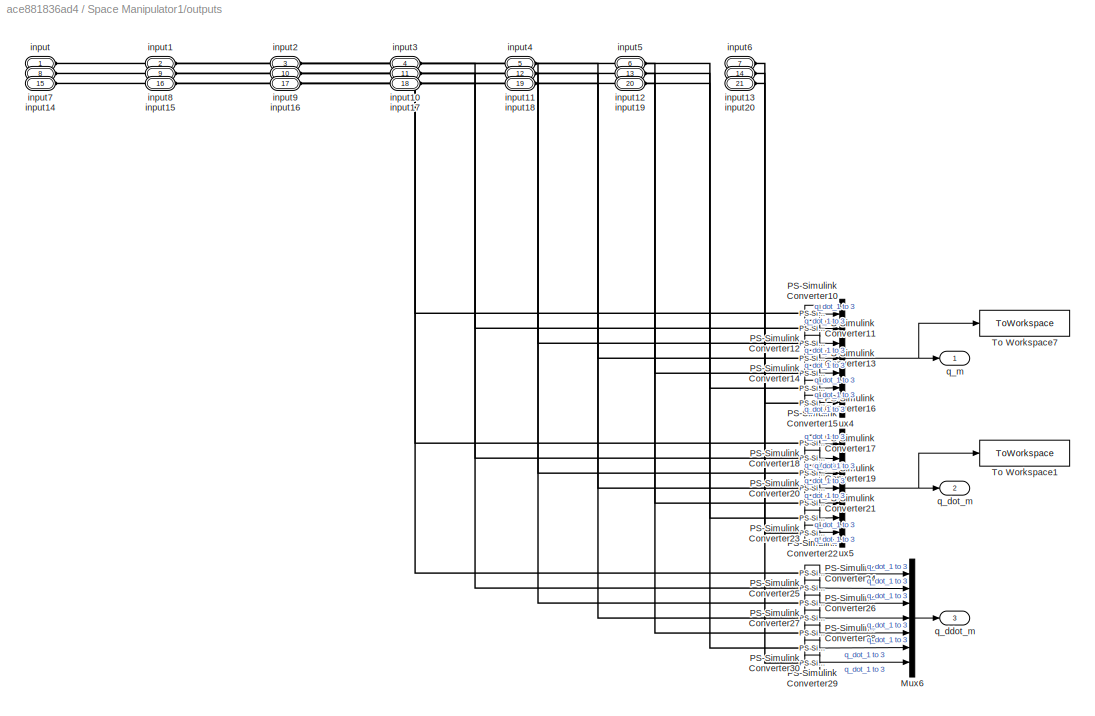
BLOCK [SubSystem] Space Manipulator1/outputs
  Ports = [0, 3, 0, 0, 0, 21]
  RequestExecContextInheritance = off
BLOCK [Mux] Space Manipulator1/outputs/Mux4
  DisplayOption = bar
  Inputs = 7
  Ports = [7, 1]
BLOCK [Mux] Space Manipulator1/outputs/Mux5
  DisplayOption = bar
  Inputs = 7
  Ports = [7, 1]
BLOCK [Mux] Space Manipulator1/outputs/Mux6
  DisplayOption = bar
  Inputs = 7
  Ports = [7, 1]
BLOCK [Reference] Space Manipulator1/outputs/PS-Simulink Converter10  REF=nesl_utility/PS-Simulink
Converter
  Ports = [0, 1, 0, 0, 0, 1]
  SourceBlock = nesl_utility/PS-Simulink\nConverter
  SourceProductBaseCode = PW,SS
  SourceType = PS-Simulink\nConverter
BLOCK [Reference] Space Manipulator1/outputs/PS-Simulink Converter11  REF=nesl_utility/PS-Simulink
Converter
  Ports = [0, 1, 0, 0, 0, 1]
  SourceBlock = nesl_utility/PS-Simulink\nConverter
  SourceProductBaseCode = PW,SS
  SourceType = PS-Simulink\nConverter
BLOCK [Reference] Space Manipulator1/outputs/PS-Simulink Converter12  REF=nesl_utility/PS-Simulink
Converter
  Ports = [0, 1, 0, 0, 0, 1]
  SourceBlock = nesl_utility/PS-Simulink\nConverter
  SourceProductBaseCode = PW,SS
  SourceType = PS-Simulink\nConverter
BLOCK [Reference] Space Manipulator1/outputs/PS-Simulink Converter13  REF=nesl_utility/PS-Simulink
Converter
  Ports = [0, 1, 0, 0, 0, 1]
  SourceBlock = nesl_utility/PS-Simulink\nConverter
  SourceProductBaseCode = PW,SS
  SourceType = PS-Simulink\nConverter
BLOCK [Reference] Space Manipulator1/outputs/PS-Simulink Converter14  REF=nesl_utility/PS-Simulink
Converter
  Ports = [0, 1, 0, 0, 0, 1]
  SourceBlock = nesl_utility/PS-Simulink\nConverter
  SourceProductBaseCode = PW,SS
  SourceType = PS-Simulink\nConverter
BLOCK [Reference] Space Manipulator1/outputs/PS-Simulink Converter15  REF=nesl_utility/PS-Simulink
Converter
  Ports = [0, 1, 0, 0, 0, 1]
  SourceBlock = nesl_utility/PS-Simulink\nConverter
  SourceProductBaseCode = PW,SS
  SourceType = PS-Simulink\nConverter
BLOCK [Reference] Space Manipulator1/outputs/PS-Simulink Converter16  REF=nesl_utility/PS-Simulink
Converter
  Ports = [0, 1, 0, 0, 0, 1]
  SourceBlock = nesl_utility/PS-Simulink\nConverter
  SourceProductBaseCode = PW,SS
  SourceType = PS-Simulink\nConverter
BLOCK [Reference] Space Manipulator1/outputs/PS-Simulink Converter17  REF=nesl_utility/PS-Simulink
Converter
  Ports = [0, 1, 0, 0, 0, 1]
  SourceBlock = nesl_utility/PS-Simulink\nConverter
  SourceProductBaseCode = PW,SS
  SourceType = PS-Simulink\nConverter
BLOCK [Reference] Space Manipulator1/outputs/PS-Simulink Converter18  REF=nesl_utility/PS-Simulink
Converter
  Ports = [0, 1, 0, 0, 0, 1]
  SourceBlock = nesl_utility/PS-Simulink\nConverter
  SourceProductBaseCode = PW,SS
  SourceType = PS-Simulink\nConverter
BLOCK [Reference] Space Manipulator1/outputs/PS-Simulink Converter19  REF=nesl_utility/PS-Simulink
Converter
  Ports = [0, 1, 0, 0, 0, 1]
  SourceBlock = nesl_utility/PS-Simulink\nConverter
  SourceProductBaseCode = PW,SS
  SourceType = PS-Simulink\nConverter
BLOCK [Reference] Space Manipulator1/outputs/PS-Simulink Converter20  REF=nesl_utility/PS-Simulink
Converter
  Ports = [0, 1, 0, 0, 0, 1]
  SourceBlock = nesl_utility/PS-Simulink\nConverter
  SourceProductBaseCode = PW,SS
  SourceType = PS-Simulink\nConverter
BLOCK [Reference] Space Manipulator1/outputs/PS-Simulink Converter21  REF=nesl_utility/PS-Simulink
Converter
  Ports = [0, 1, 0, 0, 0, 1]
  SourceBlock = nesl_utility/PS-Simulink\nConverter
  SourceProductBaseCode = PW,SS
  SourceType = PS-Simulink\nConverter
BLOCK [Reference] Space Manipulator1/outputs/PS-Simulink Converter22  REF=nesl_utility/PS-Simulink
Converter
  Ports = [0, 1, 0, 0, 0, 1]
  SourceBlock = nesl_utility/PS-Simulink\nConverter
  SourceProductBaseCode = PW,SS
  SourceType = PS-Simulink\nConverter
BLOCK [Reference] Space Manipulator1/outputs/PS-Simulink Converter23  REF=nesl_utility/PS-Simulink
Converter
  Ports = [0, 1, 0, 0, 0, 1]
  SourceBlock = nesl_utility/PS-Simulink\nConverter
  SourceProductBaseCode = PW,SS
  SourceType = PS-Simulink\nConverter
BLOCK [Reference] Space Manipulator1/outputs/PS-Simulink Converter24  REF=nesl_utility/PS-Simulink
Converter
  Ports = [0, 1, 0, 0, 0, 1]
  SourceBlock = nesl_utility/PS-Simulink\nConverter
  SourceProductBaseCode = PW,SS
  SourceType = PS-Simulink\nConverter
BLOCK [Reference] Space Manipulator1/outputs/PS-Simulink Converter25  REF=nesl_utility/PS-Simulink
Converter
  Ports = [0, 1, 0, 0, 0, 1]
  SourceBlock = nesl_utility/PS-Simulink\nConverter
  SourceProductBaseCode = PW,SS
  SourceType = PS-Simulink\nConverter
BLOCK [Reference] Space Manipulator1/outputs/PS-Simulink Converter26  REF=nesl_utility/PS-Simulink
Converter
  Ports = [0, 1, 0, 0, 0, 1]
  SourceBlock = nesl_utility/PS-Simulink\nConverter
  SourceProductBaseCode = PW,SS
  SourceType = PS-Simulink\nConverter
BLOCK [Reference] Space Manipulator1/outputs/PS-Simulink Converter27  REF=nesl_utility/PS-Simulink
Converter
  Ports = [0, 1, 0, 0, 0, 1]
  SourceBlock = nesl_utility/PS-Simulink\nConverter
  SourceProductBaseCode = PW,SS
  SourceType = PS-Simulink\nConverter
BLOCK [Reference] Space Manipulator1/outputs/PS-Simulink Converter28  REF=nesl_utility/PS-Simulink
Converter
  Ports = [0, 1, 0, 0, 0, 1]
  SourceBlock = nesl_utility/PS-Simulink\nConverter
  SourceProductBaseCode = PW,SS
  SourceType = PS-Simulink\nConverter
BLOCK [Reference] Space Manipulator1/outputs/PS-Simulink Converter29  REF=nesl_utility/PS-Simulink
Converter
  Ports = [0, 1, 0, 0, 0, 1]
  SourceBlock = nesl_utility/PS-Simulink\nConverter
  SourceProductBaseCode = PW,SS
  SourceType = PS-Simulink\nConverter
BLOCK [Reference] Space Manipulator1/outputs/PS-Simulink Converter30  REF=nesl_utility/PS-Simulink
Converter
  Ports = [0, 1, 0, 0, 0, 1]
  SourceBlock = nesl_utility/PS-Simulink\nConverter
  SourceProductBaseCode = PW,SS
  SourceType = PS-Simulink\nConverter
BLOCK [ToWorkspace] Space Manipulator1/outputs/To Workspace1
  FixptAsFi = on
  MaxDataPoints = inf
  Ports = [1]
  SampleTime = -1
  VariableName = q_dot_m
BLOCK [ToWorkspace] Space Manipulator1/outputs/To Workspace7
  FixptAsFi = on
  MaxDataPoints = inf
  Ports = [1]
  SampleTime = -1
  VariableName = q_m
BLOCK [PMIOPort] Space Manipulator1/outputs/input
  Side = Left
BLOCK [PMIOPort] Space Manipulator1/outputs/input1
  Port = 2
  Side = Left
BLOCK [PMIOPort] Space Manipulator1/outputs/input10
  Port = 11
  Side = Left
BLOCK [PMIOPort] Space Manipulator1/outputs/input11
  Port = 12
  Side = Left
BLOCK [PMIOPort] Space Manipulator1/outputs/input12
  Port = 13
  Side = Left
BLOCK [PMIOPort] Space Manipulator1/outputs/input13
  Port = 14
  Side = Left
BLOCK [PMIOPort] Space Manipulator1/outputs/input14
  Port = 15
  Side = Left
BLOCK [PMIOPort] Space Manipulator1/outputs/input15
  Port = 16
  Side = Left
BLOCK [PMIOPort] Space Manipulator1/outputs/input16
  Port = 17
  Side = Left
BLOCK [PMIOPort] Space Manipulator1/outputs/input17
  Port = 18
  Side = Left
BLOCK [PMIOPort] Space Manipulator1/outputs/input18
  Port = 19
  Side = Left
BLOCK [PMIOPort] Space Manipulator1/outputs/input19
  Port = 20
  Side = Left
BLOCK [PMIOPort] Space Manipulator1/outputs/input2
  Port = 3
  Side = Left
BLOCK [PMIOPort] Space Manipulator1/outputs/input20
  Port = 21
  Side = Left
BLOCK [PMIOPort] Space Manipulator1/outputs/input3
  Port = 4
  Side = Left
BLOCK [PMIOPort] Space Manipulator1/outputs/input4
  Port = 5
  Side = Left
BLOCK [PMIOPort] Space Manipulator1/outputs/input5
  Port = 6
  Side = Left
BLOCK [PMIOPort] Space Manipulator1/outputs/input6
  Port = 7
  Side = Left
BLOCK [PMIOPort] Space Manipulator1/outputs/input7
  Port = 8
  Side = Left
BLOCK [PMIOPort] Space Manipulator1/outputs/input8
  Port = 9
  Side = Left
BLOCK [PMIOPort] Space Manipulator1/outputs/input9
  Port = 10
  Side = Left
BLOCK [Outport] Space Manipulator1/outputs/q_ddot_m
  Port = 3
BLOCK [Outport] Space Manipulator1/outputs/q_dot_m
  Port = 2
BLOCK [Outport] Space Manipulator1/outputs/q_m
BLOCK [Outport] Space Manipulator1/q_ddot_m
  Port = 4
BLOCK [Outport] Space Manipulator1/q_dot_m
  Port = 3
BLOCK [Outport] Space Manipulator1/q_m
  Port = 2
BLOCK [Reference] Space Manipulator1/to Homogeneous transform1  REF=robotcorelib/Coordinate Transformation Conversion
  Ports = [2, 1]
  SourceBlock = robotcorelib/Coordinate Transformation Conversion
  SourceProductBaseCode = NV,RO,RR,UV
  SourceType = robotics.slcore.internal.block.CoordinateTransformationConversion
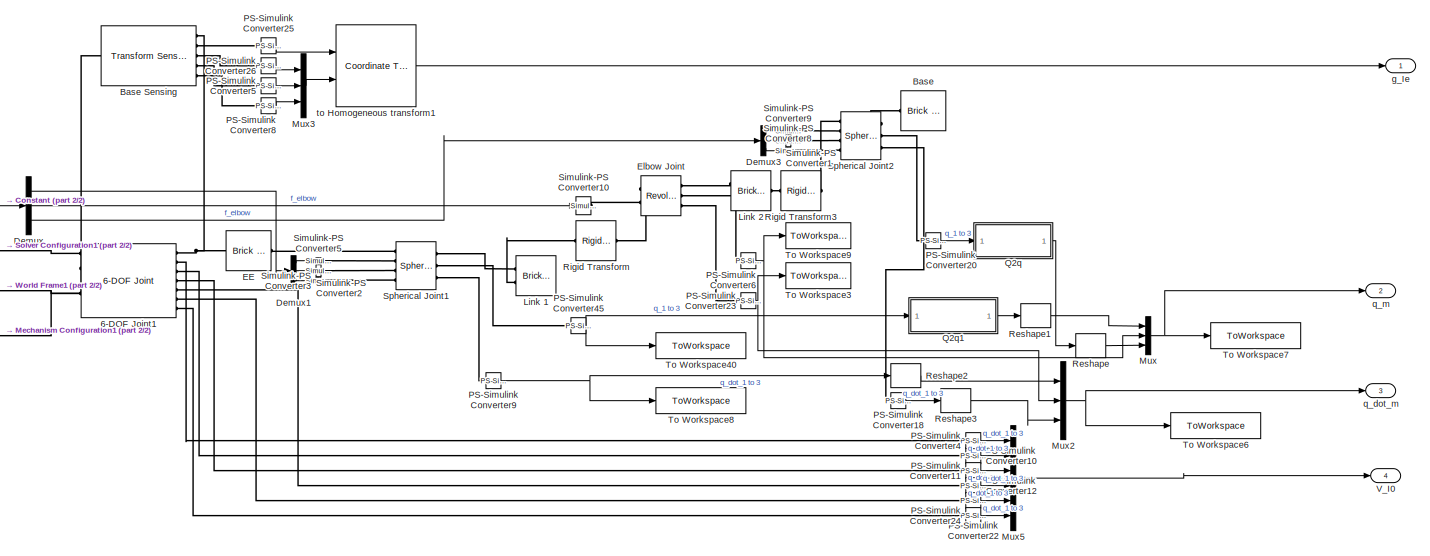
[diagram: Space Manipulator2 - part 1/2, most of the canvas]
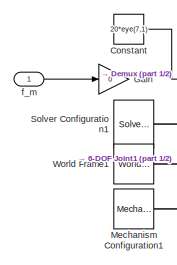
[diagram: Space Manipulator2 - part 2/2, middle left region]
BLOCK [SubSystem] Space Manipulator2
  Commented = on
  PortSchema = {"entries":[{"content":{"sides":[{"content":{"connectorIds":["In1"]},"type":"ConnectorPlacement.EquallySpacedRectSide","uuid":"530c21f8-fd54-4a84-9ce8-3a95f84fd0bc"},{"content":{"connectorIds":["Out1","Out2","Out3"],"side":"RIGHT"},"type":"ConnectorPlacement.EquallySpacedRectSide","uuid":"3d1ca3bb-457e-45f0-8a55-d4d08374b273"},{"content":{"connectorIds":[],"side":"TOP"},"type":"ConnectorPlacement....<+404ch>
  Ports = [1, 4]
  RequestExecContextInheritance = off
BLOCK [Reference] Space Manipulator2/6-DOF Joint1  REF=sm_lib/Joints/6-DOF Joint
  Ports = [0, 0, 0, 0, 0, 2, 7]
  SourceBlock = sm_lib/Joints/6-DOF Joint
  SourceProductBaseCode = MS
  SourceType = 6-DOF Joint
BLOCK [Reference] Space Manipulator2/Base  REF=sm_lib/Body Elements/Brick Solid
  Ports = [0, 0, 0, 0, 0, 1, 1]
  SourceBlock = sm_lib/Body Elements/Brick Solid
  SourceProductBaseCode = MS
  SourceType = Brick Solid
BLOCK [Reference] Space Manipulator2/Base Sensing  REF=sm_lib/Frames and
Transforms/Transform
Sensor
  Ports = [0, 0, 0, 0, 0, 1, 5]
  SourceBlock = sm_lib/Frames and\nTransforms/Transform\nSensor
  SourceProductBaseCode = MS
  SourceType = Transform\nSensor
BLOCK [Constant] Space Manipulator2/Constant
  Value = 20*eye(7,1)
BLOCK [Demux] Space Manipulator2/Demux
  Outputs = [3 1 3]
  Ports = [1, 3]
BLOCK [Demux] Space Manipulator2/Demux1
  Outputs = 3
  Ports = [1, 3]
BLOCK [Demux] Space Manipulator2/Demux3
  Outputs = 3
  Ports = [1, 3]
BLOCK [Reference] Space Manipulator2/EE  REF=sm_lib/Body Elements/Brick Solid
  Ports = [0, 0, 0, 0, 0, 1, 1]
  SourceBlock = sm_lib/Body Elements/Brick Solid
  SourceProductBaseCode = MS
  SourceType = Brick Solid
BLOCK [Reference] Space Manipulator2/Elbow Joint  REF=sm_lib/Joints/Revolute Joint
  Ports = [0, 0, 0, 0, 0, 2, 3]
  SourceBlock = sm_lib/Joints/Revolute Joint
  SourceProductBaseCode = MS
  SourceType = Revolute Joint
BLOCK [Gain] Space Manipulator2/Gain
  Gain = 0
BLOCK [Reference] Space Manipulator2/Link 1   REF=sm_lib/Body Elements/Brick Solid
  Ports = [0, 0, 0, 0, 0, 2, 1]
  SourceBlock = sm_lib/Body Elements/Brick Solid
  SourceProductBaseCode = MS
  SourceType = Brick Solid
BLOCK [Reference] Space Manipulator2/Link 2  REF=sm_lib/Body Elements/Brick Solid
  Ports = [0, 0, 0, 0, 0, 2, 1]
  SourceBlock = sm_lib/Body Elements/Brick Solid
  SourceProductBaseCode = MS
  SourceType = Brick Solid
BLOCK [Reference] Space Manipulator2/Mechanism Configuration1  REF=sm_lib/Utilities/Mechanism
Configuration
  Ports = [0, 0, 0, 0, 0, 0, 1]
  SourceBlock = sm_lib/Utilities/Mechanism\nConfiguration
  SourceProductBaseCode = MS
  SourceType = Mechanism\nConfiguration
BLOCK [Mux] Space Manipulator2/Mux
  DisplayOption = bar
  Inputs = [3;1;3]
  Ports = [3, 1]
BLOCK [Mux] Space Manipulator2/Mux2
  DisplayOption = bar
  Inputs = 3
  Ports = [3, 1]
BLOCK [Mux] Space Manipulator2/Mux3
  DisplayOption = bar
  Inputs = 3
  Ports = [3, 1]
BLOCK [Mux] Space Manipulator2/Mux5
  DisplayOption = bar
  Inputs = 6
  Ports = [6, 1]
BLOCK [Reference] Space Manipulator2/PS-Simulink Converter10  REF=nesl_utility/PS-Simulink
Converter
  Ports = [0, 1, 0, 0, 0, 1]
  SourceBlock = nesl_utility/PS-Simulink\nConverter
  SourceProductBaseCode = PW,SS
  SourceType = PS-Simulink\nConverter
BLOCK [Reference] Space Manipulator2/PS-Simulink Converter11  REF=nesl_utility/PS-Simulink
Converter
  Ports = [0, 1, 0, 0, 0, 1]
  SourceBlock = nesl_utility/PS-Simulink\nConverter
  SourceProductBaseCode = PW,SS
  SourceType = PS-Simulink\nConverter
BLOCK [Reference] Space Manipulator2/PS-Simulink Converter12  REF=nesl_utility/PS-Simulink
Converter
  Ports = [0, 1, 0, 0, 0, 1]
  SourceBlock = nesl_utility/PS-Simulink\nConverter
  SourceProductBaseCode = PW,SS
  SourceType = PS-Simulink\nConverter
BLOCK [Reference] Space Manipulator2/PS-Simulink Converter18  REF=nesl_utility/PS-Simulink
Converter
  Ports = [0, 1, 0, 0, 0, 1]
  SourceBlock = nesl_utility/PS-Simulink\nConverter
  SourceProductBaseCode = PW,SS
  SourceType = PS-Simulink\nConverter
BLOCK [Reference] Space Manipulator2/PS-Simulink Converter20  REF=nesl_utility/PS-Simulink
Converter
  Ports = [0, 1, 0, 0, 0, 1]
  SourceBlock = nesl_utility/PS-Simulink\nConverter
  SourceProductBaseCode = PW,SS
  SourceType = PS-Simulink\nConverter
BLOCK [Reference] Space Manipulator2/PS-Simulink Converter22  REF=nesl_utility/PS-Simulink
Converter
  Ports = [0, 1, 0, 0, 0, 1]
  SourceBlock = nesl_utility/PS-Simulink\nConverter
  SourceProductBaseCode = PW,SS
  SourceType = PS-Simulink\nConverter
BLOCK [Reference] Space Manipulator2/PS-Simulink Converter23  REF=nesl_utility/PS-Simulink
Converter
  Ports = [0, 1, 0, 0, 0, 1]
  SourceBlock = nesl_utility/PS-Simulink\nConverter
  SourceProductBaseCode = PW,SS
  SourceType = PS-Simulink\nConverter
BLOCK [Reference] Space Manipulator2/PS-Simulink Converter24  REF=nesl_utility/PS-Simulink
Converter
  Ports = [0, 1, 0, 0, 0, 1]
  SourceBlock = nesl_utility/PS-Simulink\nConverter
  SourceProductBaseCode = PW,SS
  SourceType = PS-Simulink\nConverter
BLOCK [Reference] Space Manipulator2/PS-Simulink Converter25  REF=nesl_utility/PS-Simulink
Converter
  Ports = [0, 1, 0, 0, 0, 1]
  SourceBlock = nesl_utility/PS-Simulink\nConverter
  SourceProductBaseCode = PW,SS
  SourceType = PS-Simulink\nConverter
BLOCK [Reference] Space Manipulator2/PS-Simulink Converter26  REF=nesl_utility/PS-Simulink
Converter
  Ports = [0, 1, 0, 0, 0, 1]
  SourceBlock = nesl_utility/PS-Simulink\nConverter
  SourceProductBaseCode = PW,SS
  SourceType = PS-Simulink\nConverter
BLOCK [Reference] Space Manipulator2/PS-Simulink Converter4  REF=nesl_utility/PS-Simulink
Converter
  Ports = [0, 1, 0, 0, 0, 1]
  SourceBlock = nesl_utility/PS-Simulink\nConverter
  SourceProductBaseCode = PW,SS
  SourceType = PS-Simulink\nConverter
BLOCK [Reference] Space Manipulator2/PS-Simulink Converter45  REF=nesl_utility/PS-Simulink
Converter
  Ports = [0, 1, 0, 0, 0, 1]
  SourceBlock = nesl_utility/PS-Simulink\nConverter
  SourceProductBaseCode = PW,SS
  SourceType = PS-Simulink\nConverter
BLOCK [Reference] Space Manipulator2/PS-Simulink Converter5  REF=nesl_utility/PS-Simulink
Converter
  Ports = [0, 1, 0, 0, 0, 1]
  SourceBlock = nesl_utility/PS-Simulink\nConverter
  SourceProductBaseCode = PW,SS
  SourceType = PS-Simulink\nConverter
BLOCK [Reference] Space Manipulator2/PS-Simulink Converter6  REF=nesl_utility/PS-Simulink
Converter
  Ports = [0, 1, 0, 0, 0, 1]
  SourceBlock = nesl_utility/PS-Simulink\nConverter
  SourceProductBaseCode = PW,SS
  SourceType = PS-Simulink\nConverter
BLOCK [Reference] Space Manipulator2/PS-Simulink Converter8  REF=nesl_utility/PS-Simulink
Converter
  Ports = [0, 1, 0, 0, 0, 1]
  SourceBlock = nesl_utility/PS-Simulink\nConverter
  SourceProductBaseCode = PW,SS
  SourceType = PS-Simulink\nConverter
BLOCK [Reference] Space Manipulator2/PS-Simulink Converter9  REF=nesl_utility/PS-Simulink
Converter
  Ports = [0, 1, 0, 0, 0, 1]
  SourceBlock = nesl_utility/PS-Simulink\nConverter
  SourceProductBaseCode = PW,SS
  SourceType = PS-Simulink\nConverter
BLOCK [SubSystem] Space Manipulator2/Q2q
  ErrorFcn = Stateflow.Translate.translate
  PermitHierarchicalResolution = ExplicitOnly
  Ports = [1, 1]
  RequestExecContextInheritance = off
  SFBlockType = MATLAB Function
  TreatAsAtomicUnit = on
BLOCK [Demux] Space Manipulator2/Q2q/ Demux 
  Outputs = 1
  Ports = [1, 1]
BLOCK [S-Function] Space Manipulator2/Q2q/ SFunction 
  EnableBusSupport = on
  FunctionName = sf_sfun
  PortCounts = [1 2]
  Ports = [1, 2]
  SFcnIsStateOwnerBlock = off
  SFunctionDeploymentMode = off
  Tag = Stateflow S-Function 72
BLOCK [Terminator] Space Manipulator2/Q2q/ Terminator 
BLOCK [Inport] Space Manipulator2/Q2q/Q
BLOCK [Outport] Space Manipulator2/Q2q/qm
BLOCK [SubSystem] Space Manipulator2/Q2q1
  ErrorFcn = Stateflow.Translate.translate
  PermitHierarchicalResolution = ExplicitOnly
  Ports = [1, 1]
  RequestExecContextInheritance = off
  SFBlockType = MATLAB Function
  TreatAsAtomicUnit = on
BLOCK [Demux] Space Manipulator2/Q2q1/ Demux 
  Outputs = 1
  Ports = [1, 1]
BLOCK [S-Function] Space Manipulator2/Q2q1/ SFunction 
  EnableBusSupport = on
  FunctionName = sf_sfun
  PortCounts = [1 2]
  Ports = [1, 2]
  SFcnIsStateOwnerBlock = off
  SFunctionDeploymentMode = off
  Tag = Stateflow S-Function 73
BLOCK [Terminator] Space Manipulator2/Q2q1/ Terminator 
BLOCK [Inport] Space Manipulator2/Q2q1/Q
BLOCK [Outport] Space Manipulator2/Q2q1/qm
BLOCK [Reshape] Space Manipulator2/Reshape
  Ports = [1, 1]
BLOCK [Reshape] Space Manipulator2/Reshape1
  Ports = [1, 1]
BLOCK [Reshape] Space Manipulator2/Reshape2
  Ports = [1, 1]
BLOCK [Reshape] Space Manipulator2/Reshape3
  Ports = [1, 1]
BLOCK [Reference] Space Manipulator2/Rigid Transform  REF=sm_lib/Frames and
Transforms/Rigid
Transform
  Ports = [0, 0, 0, 0, 0, 1, 1]
  SourceBlock = sm_lib/Frames and\nTransforms/Rigid\nTransform
  SourceProductBaseCode = MS
  SourceType = Rigid\nTransform
BLOCK [Reference] Space Manipulator2/Rigid Transform3  REF=sm_lib/Frames and
Transforms/Rigid
Transform
  Ports = [0, 0, 0, 0, 0, 1, 1]
  SourceBlock = sm_lib/Frames and\nTransforms/Rigid\nTransform
  SourceProductBaseCode = MS
  SourceType = Rigid\nTransform
BLOCK [Reference] Space Manipulator2/Simulink-PS Converter1  REF=nesl_utility/Simulink-PS
Converter
  Ports = [1, 0, 0, 0, 0, 0, 1]
  SourceBlock = nesl_utility/Simulink-PS\nConverter
  SourceProductBaseCode = PW,SS
  SourceType = Simulink-PS\nConverter
BLOCK [Reference] Space Manipulator2/Simulink-PS Converter10  REF=nesl_utility/Simulink-PS
Converter
  NameLocation = left
  Ports = [1, 0, 0, 0, 0, 0, 1]
  SourceBlock = nesl_utility/Simulink-PS\nConverter
  SourceProductBaseCode = PW,SS
  SourceType = Simulink-PS\nConverter
BLOCK [Reference] Space Manipulator2/Simulink-PS Converter2  REF=nesl_utility/Simulink-PS
Converter
  Ports = [1, 0, 0, 0, 0, 0, 1]
  SourceBlock = nesl_utility/Simulink-PS\nConverter
  SourceProductBaseCode = PW,SS
  SourceType = Simulink-PS\nConverter
BLOCK [Reference] Space Manipulator2/Simulink-PS Converter3  REF=nesl_utility/Simulink-PS
Converter
  NameLocation = left
  Ports = [1, 0, 0, 0, 0, 0, 1]
  SourceBlock = nesl_utility/Simulink-PS\nConverter
  SourceProductBaseCode = PW,SS
  SourceType = Simulink-PS\nConverter
BLOCK [Reference] Space Manipulator2/Simulink-PS Converter5  REF=nesl_utility/Simulink-PS
Converter
  Ports = [1, 0, 0, 0, 0, 0, 1]
  SourceBlock = nesl_utility/Simulink-PS\nConverter
  SourceProductBaseCode = PW,SS
  SourceType = Simulink-PS\nConverter
BLOCK [Reference] Space Manipulator2/Simulink-PS Converter8  REF=nesl_utility/Simulink-PS
Converter
  NameLocation = left
  Ports = [1, 0, 0, 0, 0, 0, 1]
  SourceBlock = nesl_utility/Simulink-PS\nConverter
  SourceProductBaseCode = PW,SS
  SourceType = Simulink-PS\nConverter
BLOCK [Reference] Space Manipulator2/Simulink-PS Converter9  REF=nesl_utility/Simulink-PS
Converter
  Ports = [1, 0, 0, 0, 0, 0, 1]
  SourceBlock = nesl_utility/Simulink-PS\nConverter
  SourceProductBaseCode = PW,SS
  SourceType = Simulink-PS\nConverter
BLOCK [Reference] Space Manipulator2/Solver Configuration1  REF=nesl_utility/Solver
Configuration
  Ports = [0, 0, 0, 0, 0, 0, 1]
  SourceBlock = nesl_utility/Solver\nConfiguration
  SourceProductBaseCode = PW,SS
  SourceType = Solver\nConfiguration
BLOCK [Reference] Space Manipulator2/Spherical Joint1  REF=sm_lib/Joints/Spherical
Joint
  Ports = [0, 0, 0, 0, 0, 4, 3]
  SourceBlock = sm_lib/Joints/Spherical\nJoint
  SourceProductBaseCode = MS
  SourceType = Spherical\nJoint
BLOCK [Reference] Space Manipulator2/Spherical Joint2  REF=sm_lib/Joints/Spherical
Joint
  Ports = [0, 0, 0, 0, 0, 4, 3]
  SourceBlock = sm_lib/Joints/Spherical\nJoint
  SourceProductBaseCode = MS
  SourceType = Spherical\nJoint
BLOCK [ToWorkspace] Space Manipulator2/To Workspace3
  FixptAsFi = on
  MaxDataPoints = inf
  Ports = [1]
  SampleTime = -1
  VariableName = q_dot_elbow1
BLOCK [ToWorkspace] Space Manipulator2/To Workspace40
  FixptAsFi = on
  MaxDataPoints = inf
  Ports = [1]
  SampleTime = -1
  VariableName = q_wrist1
BLOCK [ToWorkspace] Space Manipulator2/To Workspace6
  FixptAsFi = on
  MaxDataPoints = inf
  Ports = [1]
  SampleTime = -1
  VariableName = q_dot_m1
BLOCK [ToWorkspace] Space Manipulator2/To Workspace7
  FixptAsFi = on
  MaxDataPoints = inf
  Ports = [1]
  SampleTime = -1
  VariableName = q_m1
BLOCK [ToWorkspace] Space Manipulator2/To Workspace8
  FixptAsFi = on
  MaxDataPoints = inf
  Ports = [1]
  SampleTime = -1
  VariableName = q_dot_wrist1
BLOCK [ToWorkspace] Space Manipulator2/To Workspace9
  FixptAsFi = on
  MaxDataPoints = inf
  Ports = [1]
  SampleTime = -1
  VariableName = q_elbow1
BLOCK [Outport] Space Manipulator2/V_I0
  Port = 4
BLOCK [Reference] Space Manipulator2/World Frame1  REF=sm_lib/Frames and
Transforms/World Frame
  Ports = [0, 0, 0, 0, 0, 0, 1]
  SourceBlock = sm_lib/Frames and\nTransforms/World Frame
  SourceProductBaseCode = MS
  SourceType = World Frame
BLOCK [Inport] Space Manipulator2/f_m
BLOCK [Outport] Space Manipulator2/g_Ie
BLOCK [Outport] Space Manipulator2/q_dot_m
  Port = 3
BLOCK [Outport] Space Manipulator2/q_m
  Port = 2
BLOCK [Reference] Space Manipulator2/to Homogeneous transform1  REF=robotcorelib/Coordinate Transformation Conversion
  Ports = [2, 1]
  SourceBlock = robotcorelib/Coordinate Transformation Conversion
  SourceProductBaseCode = NV,RO,RR,UV
  SourceType = robotics.slcore.internal.block.CoordinateTransformationConversion
BLOCK [SubSystem] Target
  Ports = [0, 3, 0, 0, 0, 1]
  RequestExecContextInheritance = off
BLOCK [Reference] Target/6-DOF Joint1  REF=sm_lib/Joints/6-DOF Joint
  Ports = [0, 0, 0, 0, 0, 1, 13]
  SourceBlock = sm_lib/Joints/6-DOF Joint
  SourceProductBaseCode = MS
  SourceType = 6-DOF Joint
BLOCK [Reference] Target/Base Sensing1  REF=sm_lib/Frames and
Transforms/Transform
Sensor
  Ports = [0, 0, 0, 0, 0, 1, 5]
  SourceBlock = sm_lib/Frames and\nTransforms/Transform\nSensor
  SourceProductBaseCode = MS
  SourceType = Transform\nSensor
BLOCK [Reference] Target/Base Sensing2  REF=sm_lib/Frames and
Transforms/Transform
Sensor
  Ports = [0, 0, 0, 0, 0, 1, 5]
  SourceBlock = sm_lib/Frames and\nTransforms/Transform\nSensor
  SourceProductBaseCode = MS
  SourceType = Transform\nSensor
BLOCK [PMIOPort] Target/Conn2
  Side = Left
BLOCK [Reference] Target/Coordinate Transformation Conversion  REF=robotcorelib/Coordinate Transformation Conversion
  Ports = [2, 1]
  SourceBlock = robotcorelib/Coordinate Transformation Conversion
  SourceProductBaseCode = NV,RO,RR,UV
  SourceType = robotics.slcore.internal.block.CoordinateTransformationConversion
BLOCK [Reference] Target/Coordinate Transformation Conversion1  REF=robotcorelib/Coordinate Transformation Conversion
  Ports = [2, 1]
  SourceBlock = robotcorelib/Coordinate Transformation Conversion
  SourceProductBaseCode = NV,RO,RR,UV
  SourceType = robotics.slcore.internal.block.CoordinateTransformationConversion
BLOCK [Reference] Target/Grasping Point t  REF=sm_lib/Frames and
Transforms/Rigid
Transform
  Ports = [0, 0, 0, 0, 0, 1, 1]
  SourceBlock = sm_lib/Frames and\nTransforms/Rigid\nTransform
  SourceProductBaseCode = MS
  SourceType = Rigid\nTransform
BLOCK [Mux] Target/Mux
  DisplayOption = bar
  Inputs = 6
  Ports = [6, 1]
BLOCK [Mux] Target/Mux1
  DisplayOption = bar
  Inputs = 6
  Ports = [6, 1]
BLOCK [Mux] Target/Mux4
  DisplayOption = bar
  Inputs = 3
  Ports = [3, 1]
BLOCK [Mux] Target/Mux8
  DisplayOption = bar
  Inputs = 3
  Ports = [3, 1]
BLOCK [Reference] Target/PS-Simulink Converter1  REF=nesl_utility/PS-Simulink
Converter
  Ports = [0, 1, 0, 0, 0, 1]
  SourceBlock = nesl_utility/PS-Simulink\nConverter
  SourceProductBaseCode = PW,SS
  SourceType = PS-Simulink\nConverter
BLOCK [Reference] Target/PS-Simulink Converter10  REF=nesl_utility/PS-Simulink
Converter
  Ports = [0, 1, 0, 0, 0, 1]
  SourceBlock = nesl_utility/PS-Simulink\nConverter
  SourceProductBaseCode = PW,SS
  SourceType = PS-Simulink\nConverter
BLOCK [Reference] Target/PS-Simulink Converter11  REF=nesl_utility/PS-Simulink
Converter
  Ports = [0, 1, 0, 0, 0, 1]
  SourceBlock = nesl_utility/PS-Simulink\nConverter
  SourceProductBaseCode = PW,SS
  SourceType = PS-Simulink\nConverter
BLOCK [Reference] Target/PS-Simulink Converter12  REF=nesl_utility/PS-Simulink
Converter
  Ports = [0, 1, 0, 0, 0, 1]
  SourceBlock = nesl_utility/PS-Simulink\nConverter
  SourceProductBaseCode = PW,SS
  SourceType = PS-Simulink\nConverter
BLOCK [Reference] Target/PS-Simulink Converter13  REF=nesl_utility/PS-Simulink
Converter
  Ports = [0, 1, 0, 0, 0, 1]
  SourceBlock = nesl_utility/PS-Simulink\nConverter
  SourceProductBaseCode = PW,SS
  SourceType = PS-Simulink\nConverter
BLOCK [Reference] Target/PS-Simulink Converter14  REF=nesl_utility/PS-Simulink
Converter
  Ports = [0, 1, 0, 0, 0, 1]
  SourceBlock = nesl_utility/PS-Simulink\nConverter
  SourceProductBaseCode = PW,SS
  SourceType = PS-Simulink\nConverter
BLOCK [Reference] Target/PS-Simulink Converter15  REF=nesl_utility/PS-Simulink
Converter
  Ports = [0, 1, 0, 0, 0, 1]
  SourceBlock = nesl_utility/PS-Simulink\nConverter
  SourceProductBaseCode = PW,SS
  SourceType = PS-Simulink\nConverter
BLOCK [Reference] Target/PS-Simulink Converter16  REF=nesl_utility/PS-Simulink
Converter
  Ports = [0, 1, 0, 0, 0, 1]
  SourceBlock = nesl_utility/PS-Simulink\nConverter
  SourceProductBaseCode = PW,SS
  SourceType = PS-Simulink\nConverter
BLOCK [Reference] Target/PS-Simulink Converter17  REF=nesl_utility/PS-Simulink
Converter
  Ports = [0, 1, 0, 0, 0, 1]
  SourceBlock = nesl_utility/PS-Simulink\nConverter
  SourceProductBaseCode = PW,SS
  SourceType = PS-Simulink\nConverter
BLOCK [Reference] Target/PS-Simulink Converter2  REF=nesl_utility/PS-Simulink
Converter
  Ports = [0, 1, 0, 0, 0, 1]
  SourceBlock = nesl_utility/PS-Simulink\nConverter
  SourceProductBaseCode = PW,SS
  SourceType = PS-Simulink\nConverter
BLOCK [Reference] Target/PS-Simulink Converter20  REF=nesl_utility/PS-Simulink
Converter
  Ports = [0, 1, 0, 0, 0, 1]
  SourceBlock = nesl_utility/PS-Simulink\nConverter
  SourceProductBaseCode = PW,SS
  SourceType = PS-Simulink\nConverter
BLOCK [Reference] Target/PS-Simulink Converter21  REF=nesl_utility/PS-Simulink
Converter
  Ports = [0, 1, 0, 0, 0, 1]
  SourceBlock = nesl_utility/PS-Simulink\nConverter
  SourceProductBaseCode = PW,SS
  SourceType = PS-Simulink\nConverter
BLOCK [Reference] Target/PS-Simulink Converter22  REF=nesl_utility/PS-Simulink
Converter
  Ports = [0, 1, 0, 0, 0, 1]
  SourceBlock = nesl_utility/PS-Simulink\nConverter
  SourceProductBaseCode = PW,SS
  SourceType = PS-Simulink\nConverter
BLOCK [Reference] Target/PS-Simulink Converter3  REF=nesl_utility/PS-Simulink
Converter
  Ports = [0, 1, 0, 0, 0, 1]
  SourceBlock = nesl_utility/PS-Simulink\nConverter
  SourceProductBaseCode = PW,SS
  SourceType = PS-Simulink\nConverter
BLOCK [Reference] Target/PS-Simulink Converter4  REF=nesl_utility/PS-Simulink
Converter
  Ports = [0, 1, 0, 0, 0, 1]
  SourceBlock = nesl_utility/PS-Simulink\nConverter
  SourceProductBaseCode = PW,SS
  SourceType = PS-Simulink\nConverter
BLOCK [Reference] Target/PS-Simulink Converter5  REF=nesl_utility/PS-Simulink
Converter
  Ports = [0, 1, 0, 0, 0, 1]
  SourceBlock = nesl_utility/PS-Simulink\nConverter
  SourceProductBaseCode = PW,SS
  SourceType = PS-Simulink\nConverter
BLOCK [Reference] Target/PS-Simulink Converter6  REF=nesl_utility/PS-Simulink
Converter
  Ports = [0, 1, 0, 0, 0, 1]
  SourceBlock = nesl_utility/PS-Simulink\nConverter
  SourceProductBaseCode = PW,SS
  SourceType = PS-Simulink\nConverter
BLOCK [Reference] Target/PS-Simulink Converter7  REF=nesl_utility/PS-Simulink
Converter
  Ports = [0, 1, 0, 0, 0, 1]
  SourceBlock = nesl_utility/PS-Simulink\nConverter
  SourceProductBaseCode = PW,SS
  SourceType = PS-Simulink\nConverter
BLOCK [Reference] Target/PS-Simulink Converter8  REF=nesl_utility/PS-Simulink
Converter
  Ports = [0, 1, 0, 0, 0, 1]
  SourceBlock = nesl_utility/PS-Simulink\nConverter
  SourceProductBaseCode = PW,SS
  SourceType = PS-Simulink\nConverter
BLOCK [Reference] Target/PS-Simulink Converter9  REF=nesl_utility/PS-Simulink
Converter
  Ports = [0, 1, 0, 0, 0, 1]
  SourceBlock = nesl_utility/PS-Simulink\nConverter
  SourceProductBaseCode = PW,SS
  SourceType = PS-Simulink\nConverter
BLOCK [Reference] Target/Target  REF=sm_lib/Body Elements/Brick Solid
  Ports = [0, 0, 0, 0, 0, 2, 1]
  SourceBlock = sm_lib/Body Elements/Brick Solid
  SourceProductBaseCode = MS
  SourceType = Brick Solid
BLOCK [Terminator] Target/Terminator
BLOCK [Outport] Target/V_It
  Port = 2
BLOCK [Outport] Target/V_It_dot
  Port = 3
BLOCK [Outport] Target/g_I_target
BLOCK [Terminator] Terminator
BLOCK [ToWorkspace] To Workspace1
  FixptAsFi = on
  MaxDataPoints = inf
  Ports = [1]
  SampleTime = -1
  SaveFormat = Timeseries
  VariableName = V
BLOCK [Scope] U_c
  Floating = off
  NumInputPorts = 1
  Ports = [1]
  ScopeSpecificationString = Simulink.scopes.TimeScopeBlockCfg('CurrentConfiguration', extmgr.ConfigurationSet(extmgr.Configuration('Core','General UI',true),extmgr.Configuration('Core','Source UI',true),extmgr.Configuration('Sources','WiredSimulink',true,'DataLoggingVariableName','ScopeData6'),extmgr.Configuration('Visuals','Time Domain',true,'SerializedDisplays',{struct('MinYLimReal','-0.36102','MaxYLimReal','0.03679','YLab...<+1720ch>
BLOCK [Scope] f
  Floating = off
  NumInputPorts = 1
  Ports = [1]
  ScopeSpecificationString = Simulink.scopes.TimeScopeBlockCfg('CurrentConfiguration', extmgr.ConfigurationSet(extmgr.Configuration('Core','General UI',true),extmgr.Configuration('Core','Source UI',true),extmgr.Configuration('Sources','WiredSimulink',true,'DataLoggingVariableName','ScopeData1'),extmgr.Configuration('Visuals','Time Domain',true,'SerializedDisplays',{struct('MinYLimReal','-13.45859','MaxYLimReal','14.72761','YL...<+1635ch>
ANNOTATION (root): Constants and Properties
ANNOTATION (root): Feedback Transformation
ANNOTATION (root): Subsystem
ANNOTATION Inverse Dynamics3: f_m
ANNOTATION Inverse Dynamics3/C_hat: C_hat
ANNOTATION Inverse Dynamics3/Inverse Dynamics: Inverse dynamics
ANNOTATION Inverse Dynamics3/Inverse Dynamics: Subsystem
LINE 										Controller/Add1:1 -> 										Controller/Integrator:1
LINE 										Controller/Add:1 -> 										Controller/Uc:1
LINE 										Controller/Constant4:1 -> 										Controller/Matrix Multiply1:1
LINE 										Controller/Constant5:1 -> 										Controller/Matrix Multiply2:1
LINE 										Controller/Constant6:1 -> 										Controller/Matrix Multiply3:1
LINE 										Controller/From2:1 -> 										Controller/Velocity_error:2
NET 										Controller/In2:1 -> 										Controller/Goto4:1, 										Controller/Kinematics:2
LINE 										Controller/Integrator:1 -> 										Controller/Matrix Multiply3:2
NET 										Controller/Kinematics/Divide:1 -> 										Controller/Kinematics/Goto1:1, 										Controller/Kinematics/Pose Error Function:1, 										Controller/Kinematics/To Workspace:1, 										Controller/Kinematics/g_te1:1
LINE 										Controller/Kinematics/From2:1 -> 										Controller/Kinematics/Velocity_error:2
NET 										Controller/Kinematics/Pose Error Function:1 -> 										Controller/Kinematics/Scope:1, 										Controller/Kinematics/Terminator3:1
LINE 										Controller/Kinematics/V_It:1 -> 										Controller/Kinematics/Velocity_error:3
LINE 										Controller/Kinematics/Velocity_error:1 -> 										Controller/Kinematics/V_te:1
NET 										Controller/Kinematics/g_I0:1 -> 										Controller/Kinematics/Divide:2, 										Controller/Kinematics/Velocity_error:1
LINE 										Controller/Kinematics/g_It:1 -> 										Controller/Kinematics/Divide:1
LINE 										Controller/Kinematics:1 -> 										Controller/gradient_of_Eg:1
NET 										Controller/Kinematics:2 -> 										Controller/Goto:1, 										Controller/Matrix Multiply2:2, 										Controller/Scope:1
NET 										Controller/Matrix Multiply1:1 -> 										Controller/Add1:1, 										Controller/Add:1
NET 										Controller/Matrix Multiply2:1 -> 										Controller/Add1:2, 										Controller/Add:2
LINE 										Controller/Matrix Multiply3:1 -> 										Controller/Add:3
NET 										Controller/V_It:1 -> 										Controller/Kinematics:3, 										Controller/Velocity_error:3
LINE 										Controller/V_It_dot:1 -> 										Controller/Velocity_error:4
LINE 										Controller/Velocity_error:1 -> 										Controller/Add:4
NET 										Controller/g_I0:1 -> 										Controller/Kinematics:1, 										Controller/Velocity_error:1
NET 										Controller/gradient_of_Eg:1 -> 										Controller/Matrix Multiply1:2, 										Controller/Scope3:1
NET 										Controller:1 -> Matrix Multiply5:2, U_c:1
NET Add2:1 -> Gain:1, f:1
NET Bus Creator:1 -> Bus Selector:1, Dynamic Parameters:2, Inverse Dynamics3:2
LINE Bus Selector:1 -> Matrix Multiply4:2
LINE Constant1:1 -> Goto3:1
LINE Constant2:1 -> Matrix Multiply6:2
LINE Constant3:1 -> Matrix Multiply7:2
LINE Constant:1 -> Goto2:1
LINE Dynamic Parameters/ :1 -> Dynamic Parameters/Bus Creator2:1
NET Dynamic Parameters/ :2 -> Dynamic Parameters/Bus Creator2:2, Dynamic Parameters/Mass Matrix Blocks:2
NET Dynamic Parameters/ :3 -> Dynamic Parameters/Bus Creator2:3, Dynamic Parameters/Mass Matrix Blocks:3
LINE Dynamic Parameters/A_connection/Divide:1 -> Dynamic Parameters/A_connection/A_connection:1
LINE Dynamic Parameters/A_connection/M0:1 -> Dynamic Parameters/A_connection/Divide:1
LINE Dynamic Parameters/A_connection/M0m:1 -> Dynamic Parameters/A_connection/Divide:2
NET Dynamic Parameters/A_connection:1 -> Dynamic Parameters/Goto1:1, Dynamic Parameters/V_I0:2
LINE Dynamic Parameters/Bus Creator2:1 -> Dynamic Parameters/Goto5:1
LINE Dynamic Parameters/Bus Creator:1 -> Dynamic Parameters/Goto:1
LINE Dynamic Parameters/Bus Selector:1 -> Dynamic Parameters/ :1
LINE Dynamic Parameters/Bus Selector:2 -> Dynamic Parameters/V_I0:3
LINE Dynamic Parameters/Constant1:1 -> Dynamic Parameters/MATLAB Function1:2
LINE Dynamic Parameters/Constant:1 -> Dynamic Parameters/Mass Matrix Blocks:1
LINE Dynamic Parameters/From1:1 -> Dynamic Parameters/ :2
LINE Dynamic Parameters/From2:1 -> Dynamic Parameters/Mass Matrix Blocks:4
NET Dynamic Parameters/MATLAB Function1:1 -> Dynamic Parameters/Goto4:1, Dynamic Parameters/V_I0:1
LINE Dynamic Parameters/Mass Matrix Blocks/Add:1 -> Dynamic Parameters/Mass Matrix Blocks/Matrix Multiply4:2
NET Dynamic Parameters/Mass Matrix Blocks/Constant:1 -> Dynamic Parameters/Mass Matrix Blocks/Matrix Multiply4:3, Dynamic Parameters/Mass Matrix Blocks/Transpose4:1
NET Dynamic Parameters/Mass Matrix Blocks/Lm0:1 -> Dynamic Parameters/Mass Matrix Blocks/Matrix Multiply3:3, Dynamic Parameters/Mass Matrix Blocks/Transpose3:1
NET Dynamic Parameters/Mass Matrix Blocks/Lm:1 -> Dynamic Parameters/Mass Matrix Blocks/Matrix Multiply1:4, Dynamic Parameters/Mass Matrix Blocks/Matrix Multiply2:4, Dynamic Parameters/Mass Matrix Blocks/Transpose2:1
LINE Dynamic Parameters/Mass Matrix Blocks/MATLAB Function:1 -> Dynamic Parameters/Mass Matrix Blocks/Add:1
NET Dynamic Parameters/Mass Matrix Blocks/MATLAB Function:2 -> Dynamic Parameters/Mass Matrix Blocks/Goto5:1, Dynamic Parameters/Mass Matrix Blocks/Matrix Multiply1:3, Dynamic Parameters/Mass Matrix Blocks/Matrix Multiply2:3, Dynamic Parameters/Mass Matrix Blocks/Matrix Multiply3:2
LINE Dynamic Parameters/Mass Matrix Blocks/Matrix Multiply1:1 -> Dynamic Parameters/Mass Matrix Blocks/M0m:1
LINE Dynamic Parameters/Mass Matrix Blocks/Matrix Multiply2:1 -> Dynamic Parameters/Mass Matrix Blocks/Mm:1
LINE Dynamic Parameters/Mass Matrix Blocks/Matrix Multiply3:1 -> Dynamic Parameters/Mass Matrix Blocks/Add:2
NET Dynamic Parameters/Mass Matrix Blocks/Matrix Multiply4:1 -> Dynamic Parameters/Mass Matrix Blocks/M0:1, Dynamic Parameters/Mass Matrix Blocks/To Workspace2:1
LINE Dynamic Parameters/Mass Matrix Blocks/Transpose1:1 -> Dynamic Parameters/Mass Matrix Blocks/Matrix Multiply2:1
LINE Dynamic Parameters/Mass Matrix Blocks/Transpose2:1 -> Dynamic Parameters/Mass Matrix Blocks/Matrix Multiply2:2
NET Dynamic Parameters/Mass Matrix Blocks/Transpose3:1 -> Dynamic Parameters/Mass Matrix Blocks/Matrix Multiply1:2, Dynamic Parameters/Mass Matrix Blocks/Matrix Multiply3:1
NET Dynamic Parameters/Mass Matrix Blocks/Transpose4:1 -> Dynamic Parameters/Mass Matrix Blocks/Matrix Multiply1:1, Dynamic Parameters/Mass Matrix Blocks/Matrix Multiply4:1
NET Dynamic Parameters/Mass Matrix Blocks/Xi_m_matrix:1 -> Dynamic Parameters/Mass Matrix Blocks/Matrix Multiply1:5, Dynamic Parameters/Mass Matrix Blocks/Matrix Multiply2:5, Dynamic Parameters/Mass Matrix Blocks/Transpose1:1
LINE Dynamic Parameters/Mass Matrix Blocks/diag_M:1 -> Dynamic Parameters/Mass Matrix Blocks/MATLAB Function:1
NET Dynamic Parameters/Mass Matrix Blocks:1 -> Dynamic Parameters/A_connection:1, Dynamic Parameters/Bus Creator:1, Dynamic Parameters/V_I0:4
NET Dynamic Parameters/Mass Matrix Blocks:2 -> Dynamic Parameters/A_connection:2, Dynamic Parameters/Bus Creator:2
LINE Dynamic Parameters/Mass Matrix Blocks:3 -> Dynamic Parameters/Bus Creator:3
LINE Dynamic Parameters/V_I0:1 -> Dynamic Parameters/To Workspace1:1
LINE Dynamic Parameters/g_I0:1 -> Dynamic Parameters/MATLAB Function1:1
LINE Dynamic Parameters/q_m:1 -> Dynamic Parameters/Bus Selector:1
LINE Gain:1 -> Space Manipulator1:1
LINE Inverse Dynamics3/A_dot:1 -> Inverse Dynamics3/Inverse Dynamics:5
LINE Inverse Dynamics3/Bus Selector1:1 -> Inverse Dynamics3/C_hat:4
LINE Inverse Dynamics3/Bus Selector1:2 -> Inverse Dynamics3/C_hat:5
NET Inverse Dynamics3/Bus Selector2:1 -> Inverse Dynamics3/A_dot:2, Inverse Dynamics3/C_hat:1, Inverse Dynamics3/M0_dot:2, Inverse Dynamics3/N_hat:1
NET Inverse Dynamics3/Bus Selector2:2 -> Inverse Dynamics3/C_hat:2, Inverse Dynamics3/N_hat:2
NET Inverse Dynamics3/Bus Selector:1 -> Inverse Dynamics3/C_hat:6, Inverse Dynamics3/Inverse Dynamics:2, Inverse Dynamics3/N_hat:5
LINE Inverse Dynamics3/Bus Selector:2 -> Inverse Dynamics3/C_hat:7
LINE Inverse Dynamics3/Bus Selector:3 -> Inverse Dynamics3/Inverse Dynamics:3
LINE Inverse Dynamics3/C_hat/<Lm0>:1 -> Inverse Dynamics3/C_hat/M_partials:5
LINE Inverse Dynamics3/C_hat/<Lm>:1 -> Inverse Dynamics3/C_hat/M_partials:4
LINE Inverse Dynamics3/C_hat/<M0>1:1 -> Inverse Dynamics3/C_hat/AMA_partial:2
LINE Inverse Dynamics3/C_hat/<M0>:1 -> Inverse Dynamics3/C_hat/A_partial:2
LINE Inverse Dynamics3/C_hat/<M0m>:1 -> Inverse Dynamics3/C_hat/A_partial:5
LINE Inverse Dynamics3/C_hat/A:1 -> Inverse Dynamics3/C_hat/AMA_partial:3
LINE Inverse Dynamics3/C_hat/AMA_partial:1 -> Inverse Dynamics3/C_hat/Mm_hat_partial:2
NET Inverse Dynamics3/C_hat/A_partial:1 -> Inverse Dynamics3/C_hat/AMA_partial:4, Inverse Dynamics3/C_hat/A_partial1:1, Inverse Dynamics3/C_hat/Goto2:1
LINE Inverse Dynamics3/C_hat/C_hat1:1 -> Inverse Dynamics3/C_hat/C_hat:1
LINE Inverse Dynamics3/C_hat/From4:1 -> Inverse Dynamics3/C_hat/AMA_partial:5
LINE Inverse Dynamics3/C_hat/From5:1 -> Inverse Dynamics3/C_hat/Lm_partials:2
LINE Inverse Dynamics3/C_hat/From6:1 -> Inverse Dynamics3/C_hat/A_partial:6
LINE Inverse Dynamics3/C_hat/From7:1 -> Inverse Dynamics3/C_hat/M_partials:6
NET Inverse Dynamics3/C_hat/Lm_partials/Constant:1 -> Inverse Dynamics3/C_hat/Lm_partials/Lm0partial:3, Inverse Dynamics3/C_hat/Lm_partials/Lmpartial:3
LINE Inverse Dynamics3/C_hat/Lm_partials/Lm0partial:1 -> Inverse Dynamics3/C_hat/Lm_partials/Lm0_partial:1
LINE Inverse Dynamics3/C_hat/Lm_partials/Lmpartial:1 -> Inverse Dynamics3/C_hat/Lm_partials/Lm_partial:1
NET Inverse Dynamics3/C_hat/Lm_partials/Xi_m:1 -> Inverse Dynamics3/C_hat/Lm_partials/Lm0partial:2, Inverse Dynamics3/C_hat/Lm_partials/Lmpartial:2
NET Inverse Dynamics3/C_hat/Lm_partials/q_m:1 -> Inverse Dynamics3/C_hat/Lm_partials/Lm0partial:1, Inverse Dynamics3/C_hat/Lm_partials/Lmpartial:1
LINE Inverse Dynamics3/C_hat/Lm_partials:1 -> Inverse Dynamics3/C_hat/M_partials:2
LINE Inverse Dynamics3/C_hat/Lm_partials:2 -> Inverse Dynamics3/C_hat/M_partials:3
LINE Inverse Dynamics3/C_hat/M_partials/ M0partial:1 -> Inverse Dynamics3/C_hat/M_partials/M0_partial:1
NET Inverse Dynamics3/C_hat/M_partials/Constant:1 -> Inverse Dynamics3/C_hat/M_partials/ M0partial:4, Inverse Dynamics3/C_hat/M_partials/M0mpartial:5
NET Inverse Dynamics3/C_hat/M_partials/From6:1 -> Inverse Dynamics3/C_hat/M_partials/M0mpartial:9, Inverse Dynamics3/C_hat/M_partials/Mmpartial:2
NET Inverse Dynamics3/C_hat/M_partials/From8:1 -> Inverse Dynamics3/C_hat/M_partials/ M0partial:5, Inverse Dynamics3/C_hat/M_partials/M0mpartial:6, Inverse Dynamics3/C_hat/M_partials/Mmpartial:4
NET Inverse Dynamics3/C_hat/M_partials/Lm0:1 -> Inverse Dynamics3/C_hat/M_partials/ M0partial:2, Inverse Dynamics3/C_hat/M_partials/M0mpartial:4
NET Inverse Dynamics3/C_hat/M_partials/Lm0_partial:1 -> Inverse Dynamics3/C_hat/M_partials/ M0partial:6, Inverse Dynamics3/C_hat/M_partials/M0mpartial:7
NET Inverse Dynamics3/C_hat/M_partials/Lm:1 -> Inverse Dynamics3/C_hat/M_partials/M0mpartial:3, Inverse Dynamics3/C_hat/M_partials/Mmpartial:3
NET Inverse Dynamics3/C_hat/M_partials/Lm_partial:1 -> Inverse Dynamics3/C_hat/M_partials/M0mpartial:8, Inverse Dynamics3/C_hat/M_partials/Mmpartial:5
LINE Inverse Dynamics3/C_hat/M_partials/M0mpartial:1 -> Inverse Dynamics3/C_hat/M_partials/M0m_partial:1
LINE Inverse Dynamics3/C_hat/M_partials/Mmpartial:1 -> Inverse Dynamics3/C_hat/M_partials/Mm_partial:1
NET Inverse Dynamics3/C_hat/M_partials/V:1 -> Inverse Dynamics3/C_hat/M_partials/ M0partial:3, Inverse Dynamics3/C_hat/M_partials/M0mpartial:2
NET Inverse Dynamics3/C_hat/M_partials/q_m:1 -> Inverse Dynamics3/C_hat/M_partials/ M0partial:1, Inverse Dynamics3/C_hat/M_partials/M0mpartial:1, Inverse Dynamics3/C_hat/M_partials/Mmpartial:1
NET Inverse Dynamics3/C_hat/M_partials:1 -> Inverse Dynamics3/C_hat/AMA_partial:6, Inverse Dynamics3/C_hat/A_partial:3, Inverse Dynamics3/C_hat/Goto1:1, Inverse Dynamics3/C_hat/M0_partial:1
LINE Inverse Dynamics3/C_hat/M_partials:2 -> Inverse Dynamics3/C_hat/A_partial:4
LINE Inverse Dynamics3/C_hat/M_partials:3 -> Inverse Dynamics3/C_hat/Mm_hat_partial:3
LINE Inverse Dynamics3/C_hat/Mm_hat_partial:1 -> Inverse Dynamics3/C_hat/C_hat1:2
LINE Inverse Dynamics3/C_hat/q_dot_m1:1 -> Inverse Dynamics3/C_hat/C_hat1:3
NET Inverse Dynamics3/C_hat/q_m1:1 -> Inverse Dynamics3/C_hat/AMA_partial:1, Inverse Dynamics3/C_hat/A_partial:1, Inverse Dynamics3/C_hat/C_hat1:1, Inverse Dynamics3/C_hat/Lm_partials:1, Inverse Dynamics3/C_hat/M_partials:1, Inverse Dynamics3/C_hat/Mm_hat_partial:1
LINE Inverse Dynamics3/C_hat:1 -> Inverse Dynamics3/M0_dot:1
LINE Inverse Dynamics3/C_hat:2 -> Inverse Dynamics3/A_dot:1
LINE Inverse Dynamics3/C_hat:3 -> Inverse Dynamics3/Inverse Dynamics:6
LINE Inverse Dynamics3/From3:1 -> Inverse Dynamics3/N_hat:4
NET Inverse Dynamics3/From4:1 -> Inverse Dynamics3/C_hat:3, Inverse Dynamics3/N_hat:3
LINE Inverse Dynamics3/From5:1 -> Inverse Dynamics3/Bus Selector:1
LINE Inverse Dynamics3/From6:1 -> Inverse Dynamics3/Bus Selector1:1
LINE Inverse Dynamics3/Inverse Dynamics/<M0>2:1 -> Inverse Dynamics3/Inverse Dynamics/Fmu:2
LINE Inverse Dynamics3/Inverse Dynamics/<M0>:1 -> Inverse Dynamics3/Inverse Dynamics/Mm_hat:1
LINE Inverse Dynamics3/Inverse Dynamics/A_dot:1 -> Inverse Dynamics3/Inverse Dynamics/Fm:2
LINE Inverse Dynamics3/Inverse Dynamics/Ad_g_I0_dot1:1 -> Inverse Dynamics3/Inverse Dynamics/MATLAB Function3:6
LINE Inverse Dynamics3/Inverse Dynamics/Ad_g_I0_dot:1 -> Inverse Dynamics3/Inverse Dynamics/Fmu:5
LINE Inverse Dynamics3/Inverse Dynamics/Ad_g_te_dot:1 -> Inverse Dynamics3/Inverse Dynamics/MATLAB Function3:5
LINE Inverse Dynamics3/Inverse Dynamics/C_hat:1 -> Inverse Dynamics3/Inverse Dynamics/Fm:3
LINE Inverse Dynamics3/Inverse Dynamics/FU:1 -> Inverse Dynamics3/Inverse Dynamics/F_U:1
LINE Inverse Dynamics3/Inverse Dynamics/Fm:1 -> Inverse Dynamics3/Inverse Dynamics/F_m:1
LINE Inverse Dynamics3/Inverse Dynamics/Fmu:1 -> Inverse Dynamics3/Inverse Dynamics/F_mu:1
LINE Inverse Dynamics3/Inverse Dynamics/From1:1 -> Inverse Dynamics3/Inverse Dynamics/Ad_g_te_dot:1
NET Inverse Dynamics3/Inverse Dynamics/From2:1 -> Inverse Dynamics3/Inverse Dynamics/MmJcross:2, Inverse Dynamics3/Inverse Dynamics/Mm_hat:3
LINE Inverse Dynamics3/Inverse Dynamics/From3:1 -> Inverse Dynamics3/Inverse Dynamics/Ad_g_I0_dot1:1
NET Inverse Dynamics3/Inverse Dynamics/From4:1 -> Inverse Dynamics3/Inverse Dynamics/Ad_g_I0_dot1:2, Inverse Dynamics3/Inverse Dynamics/MATLAB Function3:3
NET Inverse Dynamics3/Inverse Dynamics/From5:1 -> Inverse Dynamics3/Inverse Dynamics/Ad_g_te_dot:2, Inverse Dynamics3/Inverse Dynamics/MATLAB Function3:2
LINE Inverse Dynamics3/Inverse Dynamics/From:1 -> Inverse Dynamics3/Inverse Dynamics/Ad_g_I0_dot:2
LINE Inverse Dynamics3/Inverse Dynamics/M0_dot:1 -> Inverse Dynamics3/Inverse Dynamics/Fmu:3
LINE Inverse Dynamics3/Inverse Dynamics/MATLAB Function3:1 -> Inverse Dynamics3/Inverse Dynamics/F_t:1
LINE Inverse Dynamics3/Inverse Dynamics/Mm:1 -> Inverse Dynamics3/Inverse Dynamics/Mm_hat:2
NET Inverse Dynamics3/Inverse Dynamics/MmJcross:1 -> Inverse Dynamics3/Inverse Dynamics/FU:1, Inverse Dynamics3/Inverse Dynamics/Fm:1, Inverse Dynamics3/Inverse Dynamics/Fmu:1, Inverse Dynamics3/Inverse Dynamics/MATLAB Function3:1, Inverse Dynamics3/Inverse Dynamics/Scope2:1
NET Inverse Dynamics3/Inverse Dynamics/Mm_hat:1 -> Inverse Dynamics3/Inverse Dynamics/MmJcross:1, Inverse Dynamics3/Inverse Dynamics/Scope1:1
LINE Inverse Dynamics3/Inverse Dynamics/Mt:1 -> Inverse Dynamics3/Inverse Dynamics/MATLAB Function3:4
NET Inverse Dynamics3/Inverse Dynamics/g_I0:1 -> Inverse Dynamics3/Inverse Dynamics/Ad_g_I0_dot:1, Inverse Dynamics3/Inverse Dynamics/Fmu:4
LINE Inverse Dynamics3/Inverse Dynamics:1 -> Inverse Dynamics3/F_U:1
LINE Inverse Dynamics3/Inverse Dynamics:2 -> Inverse Dynamics3/F_mu:1
LINE Inverse Dynamics3/Inverse Dynamics:3 -> Inverse Dynamics3/F_t:1
LINE Inverse Dynamics3/Inverse Dynamics:4 -> Inverse Dynamics3/F_m:1
LINE Inverse Dynamics3/M0_dot:1 -> Inverse Dynamics3/Inverse Dynamics:4
LINE Inverse Dynamics3/N_hat/A:1 -> Inverse Dynamics3/N_hat/N_hat:3
LINE Inverse Dynamics3/N_hat/Constant:1 -> Inverse Dynamics3/N_hat/N_hat:8
LINE Inverse Dynamics3/N_hat/From1:1 -> Inverse Dynamics3/N_hat/N_hat:6
LINE Inverse Dynamics3/N_hat/From2:1 -> Inverse Dynamics3/N_hat/N_hat:4
LINE Inverse Dynamics3/N_hat/From:1 -> Inverse Dynamics3/N_hat/N_hat:7
LINE Inverse Dynamics3/N_hat/M0:1 -> Inverse Dynamics3/N_hat/N_hat:9
LINE Inverse Dynamics3/N_hat/Matrix Multiply:1 -> Inverse Dynamics3/N_hat/N_hat1:1
NET Inverse Dynamics3/N_hat/N_hat:1 -> Inverse Dynamics3/N_hat/Matrix Multiply:1, Inverse Dynamics3/N_hat/To Workspace:1
NET Inverse Dynamics3/N_hat/P:1 -> Inverse Dynamics3/N_hat/Matrix Multiply:2, Inverse Dynamics3/N_hat/N_hat:5
LINE Inverse Dynamics3/N_hat/q_dot_m:1 -> Inverse Dynamics3/N_hat/N_hat:2
LINE Inverse Dynamics3/N_hat/q_m:1 -> Inverse Dynamics3/N_hat/N_hat:1
LINE Inverse Dynamics3/N_hat:1 -> Inverse Dynamics3/N:1
LINE Inverse Dynamics3/g_I0:1 -> Inverse Dynamics3/Inverse Dynamics:1
LINE Inverse Dynamics3/q_m :1 -> Inverse Dynamics3/Bus Selector2:1
NET Inverse Dynamics3:1 -> F_U:1, Matrix Multiply5:1
LINE Inverse Dynamics3:2 -> Matrix Multiply6:1
LINE Inverse Dynamics3:3 -> Matrix Multiply7:1
LINE Inverse Dynamics3:4 -> Matrix Multiply4:1
NET Inverse Dynamics3:5 -> Add2:1, N:1
NET Matrix Multiply4:1 -> Add2:2, F_m:1
NET Matrix Multiply5:1 -> Add2:3, FUc:1
NET Matrix Multiply6:1 -> Add2:4, F_mu:1
NET Matrix Multiply7:1 -> Add2:5, F_t:1
LINE Space Manipulator1/Demux2:1 -> Space Manipulator1/Simulink-PS Converter5:1
LINE Space Manipulator1/Demux2:2 -> Space Manipulator1/Simulink-PS Converter6:1
LINE Space Manipulator1/Demux2:3 -> Space Manipulator1/Simulink-PS Converter7:1
LINE Space Manipulator1/Demux2:4 -> Space Manipulator1/Simulink-PS Converter8:1
LINE Space Manipulator1/Demux2:5 -> Space Manipulator1/Simulink-PS Converter9:1
LINE Space Manipulator1/Demux2:6 -> Space Manipulator1/Simulink-PS Converter10:1
LINE Space Manipulator1/Demux2:7 -> Space Manipulator1/Simulink-PS Converter11:1
LINE Space Manipulator1/Mux3:1 -> Space Manipulator1/to Homogeneous transform1:2
LINE Space Manipulator1/Mux4:1 -> Space Manipulator1/V:1
LINE Space Manipulator1/PS-Simulink Converter10:1 -> Space Manipulator1/Mux4:1
LINE Space Manipulator1/PS-Simulink Converter11:1 -> Space Manipulator1/Mux4:2
LINE Space Manipulator1/PS-Simulink Converter12:1 -> Space Manipulator1/Mux4:3
LINE Space Manipulator1/PS-Simulink Converter13:1 -> Space Manipulator1/Mux4:4
LINE Space Manipulator1/PS-Simulink Converter14:1 -> Space Manipulator1/Mux4:5
LINE Space Manipulator1/PS-Simulink Converter15:1 -> Space Manipulator1/Mux4:6
LINE Space Manipulator1/PS-Simulink Converter25:1 -> Space Manipulator1/to Homogeneous transform1:1
LINE Space Manipulator1/PS-Simulink Converter26:1 -> Space Manipulator1/Mux3:1
LINE Space Manipulator1/PS-Simulink Converter5:1 -> Space Manipulator1/Mux3:2
LINE Space Manipulator1/PS-Simulink Converter8:1 -> Space Manipulator1/Mux3:3
LINE Space Manipulator1/f_m:1 -> Space Manipulator1/Demux2:1
NET Space Manipulator1/outputs/Mux4:1 -> Space Manipulator1/outputs/To Workspace7:1, Space Manipulator1/outputs/q_m:1
NET Space Manipulator1/outputs/Mux5:1 -> Space Manipulator1/outputs/To Workspace1:1, Space Manipulator1/outputs/q_dot_m:1
LINE Space Manipulator1/outputs/Mux6:1 -> Space Manipulator1/outputs/q_ddot_m:1
LINE Space Manipulator1/outputs/PS-Simulink Converter10:1 -> Space Manipulator1/outputs/Mux4:1
LINE Space Manipulator1/outputs/PS-Simulink Converter11:1 -> Space Manipulator1/outputs/Mux4:2
LINE Space Manipulator1/outputs/PS-Simulink Converter12:1 -> Space Manipulator1/outputs/Mux4:3
LINE Space Manipulator1/outputs/PS-Simulink Converter13:1 -> Space Manipulator1/outputs/Mux4:4
LINE Space Manipulator1/outputs/PS-Simulink Converter14:1 -> Space Manipulator1/outputs/Mux4:5
LINE Space Manipulator1/outputs/PS-Simulink Converter15:1 -> Space Manipulator1/outputs/Mux4:6
LINE Space Manipulator1/outputs/PS-Simulink Converter16:1 -> Space Manipulator1/outputs/Mux4:7
LINE Space Manipulator1/outputs/PS-Simulink Converter17:1 -> Space Manipulator1/outputs/Mux5:1
LINE Space Manipulator1/outputs/PS-Simulink Converter18:1 -> Space Manipulator1/outputs/Mux5:2
LINE Space Manipulator1/outputs/PS-Simulink Converter19:1 -> Space Manipulator1/outputs/Mux5:3
LINE Space Manipulator1/outputs/PS-Simulink Converter20:1 -> Space Manipulator1/outputs/Mux5:4
LINE Space Manipulator1/outputs/PS-Simulink Converter21:1 -> Space Manipulator1/outputs/Mux5:5
LINE Space Manipulator1/outputs/PS-Simulink Converter22:1 -> Space Manipulator1/outputs/Mux5:6
LINE Space Manipulator1/outputs/PS-Simulink Converter23:1 -> Space Manipulator1/outputs/Mux5:7
LINE Space Manipulator1/outputs/PS-Simulink Converter24:1 -> Space Manipulator1/outputs/Mux6:1
LINE Space Manipulator1/outputs/PS-Simulink Converter25:1 -> Space Manipulator1/outputs/Mux6:2
LINE Space Manipulator1/outputs/PS-Simulink Converter26:1 -> Space Manipulator1/outputs/Mux6:3
LINE Space Manipulator1/outputs/PS-Simulink Converter27:1 -> Space Manipulator1/outputs/Mux6:4
LINE Space Manipulator1/outputs/PS-Simulink Converter28:1 -> Space Manipulator1/outputs/Mux6:5
LINE Space Manipulator1/outputs/PS-Simulink Converter29:1 -> Space Manipulator1/outputs/Mux6:6
LINE Space Manipulator1/outputs/PS-Simulink Converter30:1 -> Space Manipulator1/outputs/Mux6:7
LINE Space Manipulator1/outputs:1 -> Space Manipulator1/q_m:1
LINE Space Manipulator1/outputs:2 -> Space Manipulator1/q_dot_m:1
LINE Space Manipulator1/outputs:3 -> Space Manipulator1/q_ddot_m:1
LINE Space Manipulator1/to Homogeneous transform1:1 -> Space Manipulator1/g_Ie:1
NET Space Manipulator1:1 -> 										Controller:1, Dynamic Parameters:1, Inverse Dynamics3:1
LINE Space Manipulator1:2 -> Bus Creator:1
LINE Space Manipulator1:3 -> Bus Creator:2
LINE Space Manipulator1:4 -> Terminator:1
NET Space Manipulator1:5 -> Goto5:1, To Workspace1:1
LINE Space Manipulator2/Constant:1 -> Space Manipulator2/Demux:1
LINE Space Manipulator2/Demux1:1 -> Space Manipulator2/Simulink-PS Converter5:1
LINE Space Manipulator2/Demux1:2 -> Space Manipulator2/Simulink-PS Converter2:1
LINE Space Manipulator2/Demux1:3 -> Space Manipulator2/Simulink-PS Converter3:1
LINE Space Manipulator2/Demux3:1 -> Space Manipulator2/Simulink-PS Converter9:1
LINE Space Manipulator2/Demux3:2 -> Space Manipulator2/Simulink-PS Converter1:1
LINE Space Manipulator2/Demux3:3 -> Space Manipulator2/Simulink-PS Converter8:1
LINE Space Manipulator2/Demux:1 -> Space Manipulator2/Demux1:1
LINE Space Manipulator2/Demux:2 -> Space Manipulator2/Simulink-PS Converter10:1
LINE Space Manipulator2/Demux:3 -> Space Manipulator2/Demux3:1
NET Space Manipulator2/Mux2:1 -> Space Manipulator2/To Workspace6:1, Space Manipulator2/q_dot_m:1
LINE Space Manipulator2/Mux3:1 -> Space Manipulator2/to Homogeneous transform1:2
LINE Space Manipulator2/Mux5:1 -> Space Manipulator2/V_I0:1
NET Space Manipulator2/Mux:1 -> Space Manipulator2/To Workspace7:1, Space Manipulator2/q_m:1
LINE Space Manipulator2/PS-Simulink Converter10:1 -> Space Manipulator2/Mux5:2
LINE Space Manipulator2/PS-Simulink Converter11:1 -> Space Manipulator2/Mux5:3
LINE Space Manipulator2/PS-Simulink Converter12:1 -> Space Manipulator2/Mux5:4
LINE Space Manipulator2/PS-Simulink Converter18:1 -> Space Manipulator2/Reshape3:1
LINE Space Manipulator2/PS-Simulink Converter20:1 -> Space Manipulator2/Q2q:1
LINE Space Manipulator2/PS-Simulink Converter22:1 -> Space Manipulator2/Mux5:5
NET Space Manipulator2/PS-Simulink Converter23:1 -> Space Manipulator2/Mux2:2, Space Manipulator2/To Workspace3:1
LINE Space Manipulator2/PS-Simulink Converter24:1 -> Space Manipulator2/Mux5:6
LINE Space Manipulator2/PS-Simulink Converter25:1 -> Space Manipulator2/to Homogeneous transform1:1
LINE Space Manipulator2/PS-Simulink Converter26:1 -> Space Manipulator2/Mux3:1
NET Space Manipulator2/PS-Simulink Converter45:1 -> Space Manipulator2/Q2q1:1, Space Manipulator2/To Workspace40:1
LINE Space Manipulator2/PS-Simulink Converter4:1 -> Space Manipulator2/Mux5:1
LINE Space Manipulator2/PS-Simulink Converter5:1 -> Space Manipulator2/Mux3:2
NET Space Manipulator2/PS-Simulink Converter6:1 -> Space Manipulator2/Mux:2, Space Manipulator2/To Workspace9:1
LINE Space Manipulator2/PS-Simulink Converter8:1 -> Space Manipulator2/Mux3:3
NET Space Manipulator2/PS-Simulink Converter9:1 -> Space Manipulator2/Reshape2:1, Space Manipulator2/To Workspace8:1
LINE Space Manipulator2/Q2q1:1 -> Space Manipulator2/Reshape1:1
LINE Space Manipulator2/Q2q:1 -> Space Manipulator2/Reshape:1
LINE Space Manipulator2/Reshape1:1 -> Space Manipulator2/Mux:1
LINE Space Manipulator2/Reshape2:1 -> Space Manipulator2/Mux2:1
LINE Space Manipulator2/Reshape3:1 -> Space Manipulator2/Mux2:3
LINE Space Manipulator2/Reshape:1 -> Space Manipulator2/Mux:3
LINE Space Manipulator2/f_m:1 -> Space Manipulator2/Gain:1
LINE Space Manipulator2/to Homogeneous transform1:1 -> Space Manipulator2/g_Ie:1
LINE Target/Coordinate Transformation Conversion1:1 -> Target/Terminator:1
LINE Target/Coordinate Transformation Conversion:1 -> Target/g_I_target:1
LINE Target/Mux1:1 -> Target/V_It_dot:1
LINE Target/Mux4:1 -> Target/Coordinate Transformation Conversion:2
LINE Target/Mux8:1 -> Target/Coordinate Transformation Conversion1:2
LINE Target/Mux:1 -> Target/V_It:1
LINE Target/PS-Simulink Converter10:1 -> Target/Mux1:2
LINE Target/PS-Simulink Converter11:1 -> Target/Mux1:1
LINE Target/PS-Simulink Converter12:1 -> Target/Mux1:3
LINE Target/PS-Simulink Converter13:1 -> Target/Mux8:3
LINE Target/PS-Simulink Converter14:1 -> Target/Mux1:4
LINE Target/PS-Simulink Converter15:1 -> Target/Mux1:5
LINE Target/PS-Simulink Converter16:1 -> Target/Mux4:2
LINE Target/PS-Simulink Converter17:1 -> Target/Mux1:6
LINE Target/PS-Simulink Converter1:1 -> Target/Mux:2
LINE Target/PS-Simulink Converter20:1 -> Target/Mux4:3
LINE Target/PS-Simulink Converter21:1 -> Target/Coordinate Transformation Conversion:1
LINE Target/PS-Simulink Converter22:1 -> Target/Mux4:1
LINE Target/PS-Simulink Converter2:1 -> Target/Mux:1
LINE Target/PS-Simulink Converter3:1 -> Target/Mux:3
LINE Target/PS-Simulink Converter4:1 -> Target/Mux:4
LINE Target/PS-Simulink Converter5:1 -> Target/Mux:5
LINE Target/PS-Simulink Converter6:1 -> Target/Coordinate Transformation Conversion1:1
LINE Target/PS-Simulink Converter7:1 -> Target/Mux8:1
LINE Target/PS-Simulink Converter8:1 -> Target/Mux8:2
LINE Target/PS-Simulink Converter9:1 -> Target/Mux:6
LINE Target:1 -> 										Controller:2
NET Target:2 -> 										Controller:3, Goto1:1
LINE Target:3 -> 										Controller:4
PNET net1: Space Manipulator1/6-DOF Joint:LConn1 -- Space Manipulator1/Base Sensing:LConn1 -- Space Manipulator1/Conn1:RConn1 -- Space Manipulator1/Mechanism Configuration1:RConn1 -- Space Manipulator1/Solver Configuration1:RConn1 -- Space Manipulator1/World Frame1:RConn1
PNET net2: Space Manipulator1/6-DOF Joint:RConn1 -- Space Manipulator1/Base Sensing:RConn1 -- Space Manipulator1/Base:RConn1
PLINE Space Manipulator1/Base Sensing:RConn10 -- Space Manipulator1/PS-Simulink Converter11:LConn1
PLINE Space Manipulator1/Base Sensing:RConn11 -- Space Manipulator1/PS-Simulink Converter12:LConn1
PLINE Space Manipulator1/Base Sensing:RConn2 -- Space Manipulator1/PS-Simulink Converter25:LConn1
PLINE Space Manipulator1/Base Sensing:RConn3 -- Space Manipulator1/PS-Simulink Converter13:LConn1
PLINE Space Manipulator1/Base Sensing:RConn4 -- Space Manipulator1/PS-Simulink Converter14:LConn1
PLINE Space Manipulator1/Base Sensing:RConn5 -- Space Manipulator1/PS-Simulink Converter15:LConn1
PLINE Space Manipulator1/Base Sensing:RConn6 -- Space Manipulator1/PS-Simulink Converter26:LConn1
PLINE Space Manipulator1/Base Sensing:RConn7 -- Space Manipulator1/PS-Simulink Converter5:LConn1
PLINE Space Manipulator1/Base Sensing:RConn8 -- Space Manipulator1/PS-Simulink Converter8:LConn1
PLINE Space Manipulator1/Base Sensing:RConn9 -- Space Manipulator1/PS-Simulink Converter10:LConn1
PLINE Space Manipulator1/Base:LConn1 -- Space Manipulator1/iiwa_joint_1_OriginTransform:LConn1
PLINE Space Manipulator1/Simulink-PS Converter10:RConn1 -- Space Manipulator1/joint//link6:LConn2
PLINE Space Manipulator1/Simulink-PS Converter11:RConn1 -- Space Manipulator1/joint//link7:LConn2
PLINE Space Manipulator1/Simulink-PS Converter5:RConn1 -- Space Manipulator1/joint//link 1:LConn2
PLINE Space Manipulator1/Simulink-PS Converter6:RConn1 -- Space Manipulator1/joint//link2:LConn2
PLINE Space Manipulator1/Simulink-PS Converter7:RConn1 -- Space Manipulator1/joint//link3:LConn2
PLINE Space Manipulator1/Simulink-PS Converter8:RConn1 -- Space Manipulator1/joint//link4:LConn2
PLINE Space Manipulator1/Simulink-PS Converter9:RConn1 -- Space Manipulator1/joint//link5:LConn2
PLINE Space Manipulator1/iiwa_joint_1_OriginTransform:RConn1 -- Space Manipulator1/joint//link 1:LConn1
PLINE Space Manipulator1/joint//link 1/F1:RConn1 -- Space Manipulator1/joint//link 1/iiwa_link_1:RConn1
PLINE Space Manipulator1/joint//link 1/b:RConn1 -- Space Manipulator1/joint//link 1/iiwa_joint_1:LConn1
PLINE Space Manipulator1/joint//link 1/f1:RConn1 -- Space Manipulator1/joint//link 1/iiwa_joint_1:LConn2
PLINE Space Manipulator1/joint//link 1/iiwa_joint_1:RConn1 -- Space Manipulator1/joint//link 1/iiwa_link_1:LConn1
PLINE Space Manipulator1/joint//link 1/iiwa_joint_1:RConn2 -- Space Manipulator1/joint//link 1/q1:RConn1
PLINE Space Manipulator1/joint//link 1/iiwa_joint_1:RConn3 -- Space Manipulator1/joint//link 1/qd1:RConn1
PLINE Space Manipulator1/joint//link 1/iiwa_joint_1:RConn4 -- Space Manipulator1/joint//link 1/qdd1:RConn1
PLINE Space Manipulator1/joint//link 1/iiwa_link_1/F1:RConn1 -- Space Manipulator1/joint//link 1/iiwa_link_1/iiwa_joint_2_OriginTransform:RConn1
PNET net3: Space Manipulator1/joint//link 1/iiwa_link_1/F:RConn1 -- Space Manipulator1/joint//link 1/iiwa_link_1/Inertia:RConn1 -- Space Manipulator1/joint//link 1/iiwa_link_1/ReferenceFrame:RConn1 -- Space Manipulator1/joint//link 1/iiwa_link_1/VisualOriginTransform:LConn1 -- Space Manipulator1/joint//link 1/iiwa_link_1/iiwa_joint_2_OriginTransform:LConn1
PLINE Space Manipulator1/joint//link 1/iiwa_link_1/Visual:RConn1 -- Space Manipulator1/joint//link 1/iiwa_link_1/VisualOriginTransform:RConn1
PLINE Space Manipulator1/joint//link 1:RConn1 -- Space Manipulator1/joint//link2:LConn1
PLINE Space Manipulator1/joint//link 1:RConn2 -- Space Manipulator1/outputs:LConn1
PLINE Space Manipulator1/joint//link 1:RConn3 -- Space Manipulator1/outputs:LConn8
PLINE Space Manipulator1/joint//link 1:RConn4 -- Space Manipulator1/outputs:LConn15
PLINE Space Manipulator1/joint//link2/F1:RConn1 -- Space Manipulator1/joint//link2/iiwa_link_2:RConn1
PLINE Space Manipulator1/joint//link2/b:RConn1 -- Space Manipulator1/joint//link2/iiwa_joint_2:LConn1
PLINE Space Manipulator1/joint//link2/f2:RConn1 -- Space Manipulator1/joint//link2/iiwa_joint_2:LConn2
PLINE Space Manipulator1/joint//link2/iiwa_joint_2:RConn1 -- Space Manipulator1/joint//link2/iiwa_link_2:LConn1
PLINE Space Manipulator1/joint//link2/iiwa_joint_2:RConn2 -- Space Manipulator1/joint//link2/q2:RConn1
PLINE Space Manipulator1/joint//link2/iiwa_joint_2:RConn3 -- Space Manipulator1/joint//link2/qd2:RConn1
PLINE Space Manipulator1/joint//link2/iiwa_joint_2:RConn4 -- Space Manipulator1/joint//link2/qdd2:RConn1
PLINE Space Manipulator1/joint//link2/iiwa_link_2/F1:RConn1 -- Space Manipulator1/joint//link2/iiwa_link_2/iiwa_joint_3_AxisTransform:RConn1
PLINE Space Manipulator1/joint//link2/iiwa_link_2/F:RConn1 -- Space Manipulator1/joint//link2/iiwa_link_2/iiwa_joint_2_AxisInvTransform:RConn1
PNET net4: Space Manipulator1/joint//link2/iiwa_link_2/Inertia:RConn1 -- Space Manipulator1/joint//link2/iiwa_link_2/ReferenceFrame:RConn1 -- Space Manipulator1/joint//link2/iiwa_link_2/VisualOriginTransform:LConn1 -- Space Manipulator1/joint//link2/iiwa_link_2/iiwa_joint_2_AxisInvTransform:LConn1 -- Space Manipulator1/joint//link2/iiwa_link_2/iiwa_joint_3_OriginTransform:LConn1
PLINE Space Manipulator1/joint//link2/iiwa_link_2/Visual:RConn1 -- Space Manipulator1/joint//link2/iiwa_link_2/VisualOriginTransform:RConn1
PLINE Space Manipulator1/joint//link2/iiwa_link_2/iiwa_joint_3_AxisTransform:LConn1 -- Space Manipulator1/joint//link2/iiwa_link_2/iiwa_joint_3_OriginTransform:RConn1
PLINE Space Manipulator1/joint//link2:RConn1 -- Space Manipulator1/joint//link3:LConn1
PLINE Space Manipulator1/joint//link2:RConn2 -- Space Manipulator1/outputs:LConn2
PLINE Space Manipulator1/joint//link2:RConn3 -- Space Manipulator1/outputs:LConn9
PLINE Space Manipulator1/joint//link2:RConn4 -- Space Manipulator1/outputs:LConn16
PLINE Space Manipulator1/joint//link3/F1:RConn1 -- Space Manipulator1/joint//link3/iiwa_link_3:RConn1
PLINE Space Manipulator1/joint//link3/b:RConn1 -- Space Manipulator1/joint//link3/iiwa_joint_3:LConn1
PLINE Space Manipulator1/joint//link3/f3:RConn1 -- Space Manipulator1/joint//link3/iiwa_joint_3:LConn2
PLINE Space Manipulator1/joint//link3/iiwa_joint_3:RConn1 -- Space Manipulator1/joint//link3/iiwa_link_3:LConn1
PLINE Space Manipulator1/joint//link3/iiwa_joint_3:RConn2 -- Space Manipulator1/joint//link3/q3:RConn1
PLINE Space Manipulator1/joint//link3/iiwa_joint_3:RConn3 -- Space Manipulator1/joint//link3/qd3:RConn1
PLINE Space Manipulator1/joint//link3/iiwa_joint_3:RConn4 -- Space Manipulator1/joint//link3/qdd3:RConn1
PLINE Space Manipulator1/joint//link3/iiwa_link_3/F1:RConn1 -- Space Manipulator1/joint//link3/iiwa_link_3/iiwa_joint_4_AxisTransform:RConn1
PLINE Space Manipulator1/joint//link3/iiwa_link_3/F:RConn1 -- Space Manipulator1/joint//link3/iiwa_link_3/iiwa_joint_3_AxisInvTransform:RConn1
PNET net5: Space Manipulator1/joint//link3/iiwa_link_3/Inertia:RConn1 -- Space Manipulator1/joint//link3/iiwa_link_3/ReferenceFrame:RConn1 -- Space Manipulator1/joint//link3/iiwa_link_3/VisualOriginTransform:LConn1 -- Space Manipulator1/joint//link3/iiwa_link_3/iiwa_joint_3_AxisInvTransform:LConn1 -- Space Manipulator1/joint//link3/iiwa_link_3/iiwa_joint_4_OriginTransform:LConn1
PLINE Space Manipulator1/joint//link3/iiwa_link_3/Visual:RConn1 -- Space Manipulator1/joint//link3/iiwa_link_3/VisualOriginTransform:RConn1
PLINE Space Manipulator1/joint//link3/iiwa_link_3/iiwa_joint_4_AxisTransform:LConn1 -- Space Manipulator1/joint//link3/iiwa_link_3/iiwa_joint_4_OriginTransform:RConn1
PLINE Space Manipulator1/joint//link3:RConn1 -- Space Manipulator1/joint//link4:LConn1
PLINE Space Manipulator1/joint//link3:RConn2 -- Space Manipulator1/outputs:LConn3
PLINE Space Manipulator1/joint//link3:RConn3 -- Space Manipulator1/outputs:LConn10
PLINE Space Manipulator1/joint//link3:RConn4 -- Space Manipulator1/outputs:LConn17
PLINE Space Manipulator1/joint//link4/F1:RConn1 -- Space Manipulator1/joint//link4/iiwa_link_4:RConn1
PLINE Space Manipulator1/joint//link4/b:RConn1 -- Space Manipulator1/joint//link4/iiwa_joint_4:LConn1
PLINE Space Manipulator1/joint//link4/f4:RConn1 -- Space Manipulator1/joint//link4/iiwa_joint_4:LConn2
PLINE Space Manipulator1/joint//link4/iiwa_joint_4:RConn1 -- Space Manipulator1/joint//link4/iiwa_link_4:LConn1
PLINE Space Manipulator1/joint//link4/iiwa_joint_4:RConn2 -- Space Manipulator1/joint//link4/q4:RConn1
PLINE Space Manipulator1/joint//link4/iiwa_joint_4:RConn3 -- Space Manipulator1/joint//link4/qd4:RConn1
PLINE Space Manipulator1/joint//link4/iiwa_joint_4:RConn4 -- Space Manipulator1/joint//link4/qd5:RConn1
PLINE Space Manipulator1/joint//link4/iiwa_link_4/F1:RConn1 -- Space Manipulator1/joint//link4/iiwa_link_4/iiwa_joint_5_AxisTransform:RConn1
PLINE Space Manipulator1/joint//link4/iiwa_link_4/F:RConn1 -- Space Manipulator1/joint//link4/iiwa_link_4/iiwa_joint_4_AxisInvTransform:RConn1
PNET net6: Space Manipulator1/joint//link4/iiwa_link_4/Inertia:RConn1 -- Space Manipulator1/joint//link4/iiwa_link_4/ReferenceFrame:RConn1 -- Space Manipulator1/joint//link4/iiwa_link_4/VisualOriginTransform:LConn1 -- Space Manipulator1/joint//link4/iiwa_link_4/iiwa_joint_4_AxisInvTransform:LConn1 -- Space Manipulator1/joint//link4/iiwa_link_4/iiwa_joint_5_OriginTransform:LConn1
PLINE Space Manipulator1/joint//link4/iiwa_link_4/Visual:RConn1 -- Space Manipulator1/joint//link4/iiwa_link_4/VisualOriginTransform:RConn1
PLINE Space Manipulator1/joint//link4/iiwa_link_4/iiwa_joint_5_AxisTransform:LConn1 -- Space Manipulator1/joint//link4/iiwa_link_4/iiwa_joint_5_OriginTransform:RConn1
PLINE Space Manipulator1/joint//link4:RConn1 -- Space Manipulator1/joint//link5:LConn1
PLINE Space Manipulator1/joint//link4:RConn2 -- Space Manipulator1/outputs:LConn4
PLINE Space Manipulator1/joint//link4:RConn3 -- Space Manipulator1/outputs:LConn11
PLINE Space Manipulator1/joint//link4:RConn4 -- Space Manipulator1/outputs:LConn18
PLINE Space Manipulator1/joint//link5/F1:RConn1 -- Space Manipulator1/joint//link5/iiwa_link_5:RConn1
PLINE Space Manipulator1/joint//link5/b:RConn1 -- Space Manipulator1/joint//link5/iiwa_joint_5:LConn1
PLINE Space Manipulator1/joint//link5/f5:RConn1 -- Space Manipulator1/joint//link5/iiwa_joint_5:LConn2
PLINE Space Manipulator1/joint//link5/iiwa_joint_5:RConn1 -- Space Manipulator1/joint//link5/iiwa_link_5:LConn1
PLINE Space Manipulator1/joint//link5/iiwa_joint_5:RConn2 -- Space Manipulator1/joint//link5/q5:RConn1
PLINE Space Manipulator1/joint//link5/iiwa_joint_5:RConn3 -- Space Manipulator1/joint//link5/qd5:RConn1
PLINE Space Manipulator1/joint//link5/iiwa_joint_5:RConn4 -- Space Manipulator1/joint//link5/qdd5:RConn1
PLINE Space Manipulator1/joint//link5/iiwa_link_5/F1:RConn1 -- Space Manipulator1/joint//link5/iiwa_link_5/iiwa_joint_6_AxisTransform:RConn1
PLINE Space Manipulator1/joint//link5/iiwa_link_5/F:RConn1 -- Space Manipulator1/joint//link5/iiwa_link_5/iiwa_joint_5_AxisInvTransform:RConn1
PNET net7: Space Manipulator1/joint//link5/iiwa_link_5/Inertia:RConn1 -- Space Manipulator1/joint//link5/iiwa_link_5/ReferenceFrame:RConn1 -- Space Manipulator1/joint//link5/iiwa_link_5/VisualOriginTransform:LConn1 -- Space Manipulator1/joint//link5/iiwa_link_5/iiwa_joint_5_AxisInvTransform:LConn1 -- Space Manipulator1/joint//link5/iiwa_link_5/iiwa_joint_6_OriginTransform:LConn1
PLINE Space Manipulator1/joint//link5/iiwa_link_5/Visual:RConn1 -- Space Manipulator1/joint//link5/iiwa_link_5/VisualOriginTransform:RConn1
PLINE Space Manipulator1/joint//link5/iiwa_link_5/iiwa_joint_6_AxisTransform:LConn1 -- Space Manipulator1/joint//link5/iiwa_link_5/iiwa_joint_6_OriginTransform:RConn1
PLINE Space Manipulator1/joint//link5:RConn1 -- Space Manipulator1/joint//link6:LConn1
PLINE Space Manipulator1/joint//link5:RConn2 -- Space Manipulator1/outputs:LConn5
PLINE Space Manipulator1/joint//link5:RConn3 -- Space Manipulator1/outputs:LConn12
PLINE Space Manipulator1/joint//link5:RConn4 -- Space Manipulator1/outputs:LConn19
PLINE Space Manipulator1/joint//link6/F1:RConn1 -- Space Manipulator1/joint//link6/iiwa_link_6:RConn1
PLINE Space Manipulator1/joint//link6/b:RConn1 -- Space Manipulator1/joint//link6/iiwa_joint_6:LConn1
PLINE Space Manipulator1/joint//link6/f6:RConn1 -- Space Manipulator1/joint//link6/iiwa_joint_6:LConn2
PLINE Space Manipulator1/joint//link6/iiwa_joint_6:RConn1 -- Space Manipulator1/joint//link6/iiwa_link_6:LConn1
PLINE Space Manipulator1/joint//link6/iiwa_joint_6:RConn2 -- Space Manipulator1/joint//link6/q6:RConn1
PLINE Space Manipulator1/joint//link6/iiwa_joint_6:RConn3 -- Space Manipulator1/joint//link6/qd6:RConn1
PLINE Space Manipulator1/joint//link6/iiwa_joint_6:RConn4 -- Space Manipulator1/joint//link6/qdd6:RConn1
PLINE Space Manipulator1/joint//link6/iiwa_link_6/F1:RConn1 -- Space Manipulator1/joint//link6/iiwa_link_6/iiwa_joint_7_AxisTransform:RConn1
PLINE Space Manipulator1/joint//link6/iiwa_link_6/F:RConn1 -- Space Manipulator1/joint//link6/iiwa_link_6/iiwa_joint_6_AxisInvTransform:RConn1
PNET net8: Space Manipulator1/joint//link6/iiwa_link_6/Inertia:RConn1 -- Space Manipulator1/joint//link6/iiwa_link_6/ReferenceFrame:RConn1 -- Space Manipulator1/joint//link6/iiwa_link_6/VisualOriginTransform:LConn1 -- Space Manipulator1/joint//link6/iiwa_link_6/iiwa_joint_6_AxisInvTransform:LConn1 -- Space Manipulator1/joint//link6/iiwa_link_6/iiwa_joint_7_OriginTransform:LConn1
PLINE Space Manipulator1/joint//link6/iiwa_link_6/Visual:RConn1 -- Space Manipulator1/joint//link6/iiwa_link_6/VisualOriginTransform:RConn1
PLINE Space Manipulator1/joint//link6/iiwa_link_6/iiwa_joint_7_AxisTransform:LConn1 -- Space Manipulator1/joint//link6/iiwa_link_6/iiwa_joint_7_OriginTransform:RConn1
PLINE Space Manipulator1/joint//link6:RConn1 -- Space Manipulator1/joint//link7:LConn1
PLINE Space Manipulator1/joint//link6:RConn2 -- Space Manipulator1/outputs:LConn6
PLINE Space Manipulator1/joint//link6:RConn3 -- Space Manipulator1/outputs:LConn13
PLINE Space Manipulator1/joint//link6:RConn4 -- Space Manipulator1/outputs:LConn20
PLINE Space Manipulator1/joint//link7/F1:RConn1 -- Space Manipulator1/joint//link7/iiwa_link_7:RConn2
PLINE Space Manipulator1/joint//link7/F2:RConn1 -- Space Manipulator1/joint//link7/iiwa_link_7:RConn1
PLINE Space Manipulator1/joint//link7/b:RConn1 -- Space Manipulator1/joint//link7/iiwa_joint_7:LConn1
PLINE Space Manipulator1/joint//link7/f7:RConn1 -- Space Manipulator1/joint//link7/iiwa_joint_7:LConn2
PLINE Space Manipulator1/joint//link7/iiwa_joint_7:RConn1 -- Space Manipulator1/joint//link7/iiwa_link_7:LConn1
PLINE Space Manipulator1/joint//link7/iiwa_joint_7:RConn2 -- Space Manipulator1/joint//link7/q7:RConn1
PLINE Space Manipulator1/joint//link7/iiwa_joint_7:RConn3 -- Space Manipulator1/joint//link7/qd7:RConn1
PLINE Space Manipulator1/joint//link7/iiwa_joint_7:RConn4 -- Space Manipulator1/joint//link7/qdd7:RConn1
PLINE Space Manipulator1/joint//link7/iiwa_link_7/F1:RConn1 -- Space Manipulator1/joint//link7/iiwa_link_7/iiwa_joint_ee_OriginTransform:RConn1
PLINE Space Manipulator1/joint//link7/iiwa_link_7/F2:RConn1 -- Space Manipulator1/joint//link7/iiwa_link_7/iiwa_joint_ee_kuka_OriginTransform:RConn1
PLINE Space Manipulator1/joint//link7/iiwa_link_7/F:RConn1 -- Space Manipulator1/joint//link7/iiwa_link_7/iiwa_joint_7_AxisInvTransform:RConn1
PNET net9: Space Manipulator1/joint//link7/iiwa_link_7/Inertia:RConn1 -- Space Manipulator1/joint//link7/iiwa_link_7/ReferenceFrame:RConn1 -- Space Manipulator1/joint//link7/iiwa_link_7/VisualOriginTransform:LConn1 -- Space Manipulator1/joint//link7/iiwa_link_7/iiwa_joint_7_AxisInvTransform:LConn1 -- Space Manipulator1/joint//link7/iiwa_link_7/iiwa_joint_ee_OriginTransform:LConn1 -- Space Manipulator1/joint//link7/iiwa_link_7/iiwa_joint_ee_kuka_OriginTransform:LConn1
PLINE Space Manipulator1/joint//link7/iiwa_link_7/Visual:RConn1 -- Space Manipulator1/joint//link7/iiwa_link_7/VisualOriginTransform:RConn1
PLINE Space Manipulator1/joint//link7:RConn3 -- Space Manipulator1/outputs:LConn7
PLINE Space Manipulator1/joint//link7:RConn4 -- Space Manipulator1/outputs:LConn14
PLINE Space Manipulator1/joint//link7:RConn5 -- Space Manipulator1/outputs:LConn21
PLINE Space Manipulator1/outputs/PS-Simulink Converter10:LConn1 -- Space Manipulator1/outputs/input:RConn1
PLINE Space Manipulator1/outputs/PS-Simulink Converter11:LConn1 -- Space Manipulator1/outputs/input1:RConn1
PLINE Space Manipulator1/outputs/PS-Simulink Converter12:LConn1 -- Space Manipulator1/outputs/input2:RConn1
PLINE Space Manipulator1/outputs/PS-Simulink Converter13:LConn1 -- Space Manipulator1/outputs/input3:RConn1
PLINE Space Manipulator1/outputs/PS-Simulink Converter14:LConn1 -- Space Manipulator1/outputs/input4:RConn1
PLINE Space Manipulator1/outputs/PS-Simulink Converter15:LConn1 -- Space Manipulator1/outputs/input5:RConn1
PLINE Space Manipulator1/outputs/PS-Simulink Converter16:LConn1 -- Space Manipulator1/outputs/input6:RConn1
PLINE Space Manipulator1/outputs/PS-Simulink Converter17:LConn1 -- Space Manipulator1/outputs/input7:RConn1
PLINE Space Manipulator1/outputs/PS-Simulink Converter18:LConn1 -- Space Manipulator1/outputs/input8:RConn1
PLINE Space Manipulator1/outputs/PS-Simulink Converter19:LConn1 -- Space Manipulator1/outputs/input9:RConn1
PLINE Space Manipulator1/outputs/PS-Simulink Converter20:LConn1 -- Space Manipulator1/outputs/input10:RConn1
PLINE Space Manipulator1/outputs/PS-Simulink Converter21:LConn1 -- Space Manipulator1/outputs/input11:RConn1
PLINE Space Manipulator1/outputs/PS-Simulink Converter22:LConn1 -- Space Manipulator1/outputs/input12:RConn1
PLINE Space Manipulator1/outputs/PS-Simulink Converter23:LConn1 -- Space Manipulator1/outputs/input13:RConn1
PLINE Space Manipulator1/outputs/PS-Simulink Converter24:LConn1 -- Space Manipulator1/outputs/input14:RConn1
PLINE Space Manipulator1/outputs/PS-Simulink Converter25:LConn1 -- Space Manipulator1/outputs/input15:RConn1
PLINE Space Manipulator1/outputs/PS-Simulink Converter26:LConn1 -- Space Manipulator1/outputs/input16:RConn1
PLINE Space Manipulator1/outputs/PS-Simulink Converter27:LConn1 -- Space Manipulator1/outputs/input17:RConn1
PLINE Space Manipulator1/outputs/PS-Simulink Converter28:LConn1 -- Space Manipulator1/outputs/input18:RConn1
PLINE Space Manipulator1/outputs/PS-Simulink Converter29:LConn1 -- Space Manipulator1/outputs/input19:RConn1
PLINE Space Manipulator1/outputs/PS-Simulink Converter30:LConn1 -- Space Manipulator1/outputs/input20:RConn1
PLINE Space Manipulator1:LConn1 -- Target:LConn1
PNET net10: Space Manipulator2/6-DOF Joint1:LConn1 -- Space Manipulator2/Base Sensing:LConn1 -- Space Manipulator2/Mechanism Configuration1:RConn1 -- Space Manipulator2/Solver Configuration1:RConn1 -- Space Manipulator2/World Frame1:RConn1
PNET net11: Space Manipulator2/6-DOF Joint1:RConn1 -- Space Manipulator2/Base Sensing:RConn1 -- Space Manipulator2/EE:RConn1
PLINE Space Manipulator2/6-DOF Joint1:RConn2 -- Space Manipulator2/PS-Simulink Converter4:LConn1
PLINE Space Manipulator2/6-DOF Joint1:RConn3 -- Space Manipulator2/PS-Simulink Converter10:LConn1
PLINE Space Manipulator2/6-DOF Joint1:RConn4 -- Space Manipulator2/PS-Simulink Converter11:LConn1
PLINE Space Manipulator2/6-DOF Joint1:RConn5 -- Space Manipulator2/PS-Simulink Converter12:LConn1
PLINE Space Manipulator2/6-DOF Joint1:RConn6 -- Space Manipulator2/PS-Simulink Converter22:LConn1
PLINE Space Manipulator2/6-DOF Joint1:RConn7 -- Space Manipulator2/PS-Simulink Converter24:LConn1
PLINE Space Manipulator2/Base Sensing:RConn2 -- Space Manipulator2/PS-Simulink Converter25:LConn1
PLINE Space Manipulator2/Base Sensing:RConn3 -- Space Manipulator2/PS-Simulink Converter26:LConn1
PLINE Space Manipulator2/Base Sensing:RConn4 -- Space Manipulator2/PS-Simulink Converter5:LConn1
PLINE Space Manipulator2/Base Sensing:RConn5 -- Space Manipulator2/PS-Simulink Converter8:LConn1
PLINE Space Manipulator2/Base:RConn1 -- Space Manipulator2/Spherical Joint2:RConn1
PLINE Space Manipulator2/EE:LConn1 -- Space Manipulator2/Spherical Joint1:LConn1
PLINE Space Manipulator2/Elbow Joint:LConn1 -- Space Manipulator2/Rigid Transform:RConn1
PLINE Space Manipulator2/Elbow Joint:LConn2 -- Space Manipulator2/Simulink-PS Converter10:RConn1
PLINE Space Manipulator2/Elbow Joint:RConn1 -- Space Manipulator2/Link 2:LConn1
PLINE Space Manipulator2/Elbow Joint:RConn2 -- Space Manipulator2/PS-Simulink Converter6:LConn1
PLINE Space Manipulator2/Elbow Joint:RConn3 -- Space Manipulator2/PS-Simulink Converter23:LConn1
PLINE Space Manipulator2/Link 1 :LConn1 -- Space Manipulator2/Spherical Joint1:RConn1
PLINE Space Manipulator2/Link 1 :LConn2 -- Space Manipulator2/Rigid Transform:LConn1
PLINE Space Manipulator2/Link 2:RConn1 -- Space Manipulator2/Rigid Transform3:LConn1
PLINE Space Manipulator2/PS-Simulink Converter18:LConn1 -- Space Manipulator2/Spherical Joint2:RConn3
PLINE Space Manipulator2/PS-Simulink Converter20:LConn1 -- Space Manipulator2/Spherical Joint2:RConn2
PLINE Space Manipulator2/PS-Simulink Converter45:LConn1 -- Space Manipulator2/Spherical Joint1:RConn2
PLINE Space Manipulator2/PS-Simulink Converter9:LConn1 -- Space Manipulator2/Spherical Joint1:RConn3
PLINE Space Manipulator2/Rigid Transform3:RConn1 -- Space Manipulator2/Spherical Joint2:LConn1
PLINE Space Manipulator2/Simulink-PS Converter1:RConn1 -- Space Manipulator2/Spherical Joint2:LConn3
PLINE Space Manipulator2/Simulink-PS Converter2:RConn1 -- Space Manipulator2/Spherical Joint1:LConn3
PLINE Space Manipulator2/Simulink-PS Converter3:RConn1 -- Space Manipulator2/Spherical Joint1:LConn4
PLINE Space Manipulator2/Simulink-PS Converter5:RConn1 -- Space Manipulator2/Spherical Joint1:LConn2
PLINE Space Manipulator2/Simulink-PS Converter8:RConn1 -- Space Manipulator2/Spherical Joint2:LConn4
PLINE Space Manipulator2/Simulink-PS Converter9:RConn1 -- Space Manipulator2/Spherical Joint2:LConn2
PNET net12: Target/6-DOF Joint1:LConn1 -- Target/Base Sensing1:LConn1 -- Target/Conn2:RConn1
PNET net13: Target/6-DOF Joint1:RConn1 -- Target/Base Sensing1:RConn1 -- Target/Target:RConn1
PLINE Target/6-DOF Joint1:RConn10 -- Target/PS-Simulink Converter9:LConn1
PLINE Target/6-DOF Joint1:RConn11 -- Target/PS-Simulink Converter14:LConn1
PLINE Target/6-DOF Joint1:RConn12 -- Target/PS-Simulink Converter15:LConn1
PLINE Target/6-DOF Joint1:RConn13 -- Target/PS-Simulink Converter17:LConn1
PLINE Target/6-DOF Joint1:RConn2 -- Target/PS-Simulink Converter2:LConn1
PLINE Target/6-DOF Joint1:RConn3 -- Target/PS-Simulink Converter1:LConn1
PLINE Target/6-DOF Joint1:RConn4 -- Target/PS-Simulink Converter3:LConn1
PLINE Target/6-DOF Joint1:RConn5 -- Target/PS-Simulink Converter11:LConn1
PLINE Target/6-DOF Joint1:RConn6 -- Target/PS-Simulink Converter10:LConn1
PLINE Target/6-DOF Joint1:RConn7 -- Target/PS-Simulink Converter12:LConn1
PLINE Target/6-DOF Joint1:RConn8 -- Target/PS-Simulink Converter4:LConn1
PLINE Target/6-DOF Joint1:RConn9 -- Target/PS-Simulink Converter5:LConn1
PLINE Target/Base Sensing1:RConn2 -- Target/PS-Simulink Converter21:LConn1
PLINE Target/Base Sensing1:RConn3 -- Target/PS-Simulink Converter22:LConn1
PLINE Target/Base Sensing1:RConn4 -- Target/PS-Simulink Converter16:LConn1
PLINE Target/Base Sensing1:RConn5 -- Target/PS-Simulink Converter20:LConn1
PNET net14: Target/Base Sensing2:LConn1 -- Target/Grasping Point t:LConn1 -- Target/Target:LConn1
PLINE Target/Base Sensing2:RConn1 -- Target/Grasping Point t:RConn1
PLINE Target/Base Sensing2:RConn2 -- Target/PS-Simulink Converter6:LConn1
PLINE Target/Base Sensing2:RConn3 -- Target/PS-Simulink Converter7:LConn1
PLINE Target/Base Sensing2:RConn4 -- Target/PS-Simulink Converter8:LConn1
PLINE Target/Base Sensing2:RConn5 -- Target/PS-Simulink Converter13:LConn1
note: NET lines group one-source signal fan-out (src -> all destinations, sorted); 1:1 wires keep LINE; PNET lines group multi-terminal physical nets as a canonical sorted terminal list (undirected conserving connections); 2-terminal nets keep the pairwise PLINE form
CHART Dynamic Parameters/V_I0 states=1 transitions=1
  STATE_LABEL 'eML_blk_kernel()'
  STATE_LABEL 'SCRIPT:\nfunction V_I0=V_I0(P,A_connection,q_dot_m,M0)\n% Find the spaccecraft velocity V_I0\n% M0_inv=inv(M0);\n% temp=P-transpose(A_connection)*q_dot_m;\nV_I0=M0\\P-A_connection*q_dot_m;\n'
CHART Space Manipulator2/Q2q states=1 transitions=1
  STATE_LABEL 'eML_blk_kernel()'
  STATE_LABEL "SCRIPT:\nfunction qm = Q2q(Q)\n\nqm=quat2eul(Q','XYZ')';"
CHART Space Manipulator2/Q2q1 states=1 transitions=1
  STATE_LABEL 'eML_blk_kernel()'
  STATE_LABEL "SCRIPT:\nfunction qm = Q2q(Q)\n\nqm=quat2eul(Q','XYZ')';"
CHART Inverse Dynamics3/A_dot states=1 transitions=1
  STATE_LABEL 'eML_blk_kernel()'
  STATE_LABEL 'SCRIPT:\nfunction A_dot = fcn(A_partial, q_m)\nn=length(q_m);\n\nA_dot=zeros(6,n);\nfor i=1:n\n    A_dot=A_dot+A_partial(:,:,i).*q_m(i);\nend\n'
CHART Inverse Dynamics3/C_hat/AMA_partial states=1 transitions=1
  STATE_LABEL 'eML_blk_kernel()'
  STATE_LABEL 'SCRIPT:\nfunction AMA_partial = AMA_partial(q_m,M0,A,A_partial,V,M0_partial)\n% Calculates the C_hat_m matrix from base pose and arm joint angles\n\nn=length(q_m);\nb=length(V);\n\n% find the temp intermediate term\nAMA_partial=zeros(n,n,n);\nfor i=1:n\n    AMA_partial(1:n,1:n,i)=transpose(A_partial(1:end,1:end,i))*M0*A+transpose(A)*M0_partial(1:end,1:end,i)*A+transpose(A)*M0*A_partial(1:end,1:end,i); %calc...<+88ch>'
CHART Inverse Dynamics3/C_hat/A_partial states=1 transitions=1
  STATE_LABEL 'eML_blk_kernel()'
  STATE_LABEL 'SCRIPT:\nfunction A_partial = A_partial(q_m,M0,M0_partial,M0m_partial,M0m,V)\n% Calculates the C_hat_m matrix from base pose and arm joint angles\n\nn=length(q_m);\nb=length(V);\n\n% Find partial of connection A to each joint angle\nA_partial=zeros(b,n,n);\n\ntemp1=zeros(b,n);\ntemp2=zeros(b,n);\ntemp3=zeros(b,n);\n\nfor i=1:n\n    temp1=M0\\(M0_partial(:,:,i));\n    temp2=M0\\M0m;\n    temp3=M0\\(M0m_partial(:,:,i))...<+65ch>'
CHART Inverse Dynamics3/C_hat/C_hat1 states=1 transitions=1
  STATE_LABEL 'eML_blk_kernel()'
  STATE_LABEL 'SCRIPT:\nfunction C_hat = C_hat(q_m, Mm_hat_partial,q_dot_m)\n% Calculates the C_hat_m matrix from base pose and arm joint angles\n\nn=length(q_m);\n\n\n% Calculate C_hat matrix\nC_temp1=zeros(n,n);\nC_temp2=zeros(n,n);\nC_hat=zeros(n,n);\nfor i=1:n\n    C_temp1=C_temp1+squeeze(Mm_hat_partial(1:n,1:n,i)).*q_dot_m(i); % nxn by scalar\n    C_temp2(i,1:n)=0.5*transpose(q_dot_m)*squeeze(Mm_hat_partial(1:n,1:n,i));...<+46ch>'
CHART Inverse Dynamics3/C_hat/Lm_partials/Lm0partial states=1 transitions=1
  STATE_LABEL 'eML_blk_kernel()'
  STATE_LABEL 'SCRIPT:\nfunction Lm0_partial = Lm0_partial(q_m,Xi_m,iota0)\n% Calculates the C_hat_m matrix from base pose and arm joint angles\n\nn=length(q_m);\n\n% Find partial of Lm to joint angles\nLm0_partial=zeros(6*n,6,n); % 6nx6xn\nfor i=1:n\n    for j=1:n\n        Lm0_partial(6*(j-1)+1:6*j,1:6,i)=Ad_partial(j,1,i,Xi_m,q_m,iota0); % equation 114 of TRO paper\n    end\nend\n\n%%%%%%%%%%%%%%%%%%%%%%%%%%%%%%%%%%%%%%%%%%...<+97ch>'
CHART Inverse Dynamics3/C_hat/Lm_partials/Lmpartial states=1 transitions=1
  STATE_LABEL 'eML_blk_kernel()'
  STATE_LABEL 'SCRIPT:\nfunction Lm_partial  = Lm_partial(q_m,Xi_m,iota0)\n% Calculates the C_hat_m matrix from base pose and arm joint angles\n\nn=length(q_m);\n\n% Find partial of Lm0 to joint angles\nLm_partial=zeros(6*n,6*n,n); % 6nx6xn\nfor i=1:n\n    Lm_partial(:,:,i)=zeros(6*n,6*n);\n    for j=2:n\n        for k=2:n\n            if j>i && i>=k\n                Lm_partial(6*(j-1)+1:6*j,6*(k-2)+1:6*(k-1),i)=Ad_partial(j...<+343ch>'
CHART Inverse Dynamics3/C_hat/M_partials/
M0partial states=1 transitions=1
  STATE_LABEL 'eML_blk_kernel()'
  STATE_LABEL 'SCRIPT:\nfunction M0_partial = M0_partial(q_m,Lm0,V,iota0,diag_Mm,Lm0_partial)\n% Calculates the C_hat_m matrix from base pose and arm joint angles\n\nn=length(q_m);\nb=length(V);\n\n% Find partial of M0 to joint angles\nM0_partial=zeros(b,b,n); %initiate\nfor i=1:n\n    temp1=transpose(Lm0_partial(1:end,1:end,i))*diag_Mm*Lm0;\n    temp2=transpose(Lm0)*diag_Mm*Lm0_partial(1:end,1:end,i);\n    M0_partial(1:b,1...<+64ch>'
CHART Inverse Dynamics3/C_hat/M_partials/M0mpartial states=1 transitions=1
  STATE_LABEL 'eML_blk_kernel()'
  STATE_LABEL 'SCRIPT:\nfunction M0m_partial = M0m_partial(q_m,V,Lm,Lm0,iota0,diag_Mm,Lm0_partial,Lm_partial, Xi_m_matrix)\n% Calculates the C_hat_m matrix from base pose and arm joint angles\n\nn=length(q_m);\nb=length(V);\n\n% Find partial of M0m to joint angles\nM0m_partial=zeros(b,n,n);\nfor i=1:n\n    temp1=transpose(Lm0_partial(1:end,1:end,i))*diag_Mm*Lm;\n    temp2=transpose(Lm0)*diag_Mm*Lm_partial(1:end,1:end,i);\n ...<+92ch>'
CHART Inverse Dynamics3/C_hat/M_partials/Mmpartial states=1 transitions=1
  STATE_LABEL 'eML_blk_kernel()'
  STATE_LABEL "SCRIPT:\nfunction Mm_partial = Mm_partial(q_m,Xi_m_matrix,Lm,diag_Mm,Lm_partial)\n% Calculates the C_hat_m matrix from base pose and arm joint angles\n\nn=length(q_m);\n\n% find the non-generalized arm mass matrix'x derivative to joint angles\nMm_partial=zeros(n,n,n);\nfor i=1:n\n    temp=   transpose(Lm_partial(1:6*n,1:6*n,i))*diag_Mm*Lm  +   transpose(Lm)*diag_Mm*Lm_partial(1:6*n,1:6*n,i);\n    Mm_partial...<+146ch>"
CHART Inverse Dynamics3/C_hat/Mm_hat_partial states=1 transitions=1
  STATE_LABEL 'eML_blk_kernel()'
  STATE_LABEL "SCRIPT:\nfunction Mm_hat_partial = Mm_hat_partial(q_m, AMA_partial, Mm_partial)\n% Calculates the C_hat_m matrix from base pose and arm joint angles\n\nn=length(q_m);\n\n% find the generalized arm mass matrix'x derivative to joint angles\nMm_hat_partial=zeros(n,n,n);\nfor i=1:n\n    Mm_hat_partial(1:n,1:n,i)=Mm_partial(1:n,1:n,i)-AMA_partial(1:n,1:n,i); %calcualte the derivative of augmented arm mass matri...<+36ch>"
CHART Inverse Dynamics3/Inverse Dynamics/Ad_g_I0_dot states=1 transitions=1
  STATE_LABEL 'eML_blk_kernel()'
  STATE_LABEL "SCRIPT:\nfunction Ad_g_I0_dot = Ad_g_I0_dot(g_I0,V_I0)\n% Calculation of F_mu Eq 30 of paper\nAd_g_I0_dot=adjoint_low(V_I0)'*Adjoint(g_I0)';\n% adjoint_low(V_I0)*transpose(Adjoint*(g_I0)))\n"
CHART Inverse Dynamics3/Inverse Dynamics/Ad_g_I0_dot1 states=1 transitions=1
  STATE_LABEL 'eML_blk_kernel()'
  STATE_LABEL "SCRIPT:\nfunction Ad_g_It_dot = Ad_g_It_dot(V_t,g_It)\n% Calculation of F_mu Eq 30 of paper\nAd_g_It_dot=adjoint_low(V_t)'*Adjoint(g_It)';\n"
CHART Inverse Dynamics3/Inverse Dynamics/Ad_g_te_dot states=1 transitions=1
  STATE_LABEL 'eML_blk_kernel()'
  STATE_LABEL 'SCRIPT:\nfunction Ad_g_te_dot = Ad_g_te_dot(V_te,g_te)\n% Calculation of F_mu Eq 30 of paper\nAd_g_te_dot=-adjoint_low(V_te)/Adjoint(g_te);\n'
CHART Inverse Dynamics3/Inverse Dynamics/FU states=1 transitions=1
  STATE_LABEL 'eML_blk_kernel()'
  STATE_LABEL 'SCRIPT:\nfunction F_U = F_U(MmJcross)\nF_U=MmJcross;\n'
CHART Inverse Dynamics3/Inverse Dynamics/Fm states=1 transitions=1
  STATE_LABEL 'eML_blk_kernel()'
  STATE_LABEL 'SCRIPT:\nfunction F_m = F_m(MmJcross,A_dot,Cm_hat)\n% Calculation of F_mu Eq 30 of paper\nF_m=MmJcross*(A_dot)+Cm_hat;\n'
CHART 										Controller/Velocity_error states=1 transitions=1
  STATE_LABEL 'eML_blk_kernel()'
  STATE_LABEL 'SCRIPT:\nfunction U_ff = U_ff(g_I0, V_Ie,V_It, V_It_dot)\n\nU_ff=adjoint_low(V_Ie)*Adjoint(inv(g_I0))*V_It+Adjoint(inv(g_I0))*V_It_dot;\n'
CHART Inverse Dynamics3/Inverse Dynamics/Fmu states=1 transitions=1
  STATE_LABEL 'eML_blk_kernel()'
  STATE_LABEL 'SCRIPT:\nfunction F_mu = F_mu(MmJcross,M0,M_0_dot,g_I0,Ad_g_I0_dot)\n% Calculation of F_mu Eq 30 of paper\nF_mu=-MmJcross*(M0\\M_0_dot*inv(M0)*transpose(Adjoint(g_I0))+ ...\n    M0\\Ad_g_I0_dot); \n'
CHART Inverse Dynamics3/Inverse Dynamics/Inverse Dynamics states=1 transitions=1
  STATE_LABEL 'eML_blk_kernel()'
  STATE_LABEL 'SCRIPT:\nfunction [F_mu,F_t,F_m] = fcn()\n\n\n% n=length(q_m);\n\n%Calculate Mass Matrix block components\n% [ M0m Mm]=Mass_Matrix(q_m,Xi_m);\n\n% A=inverse(M0)*M0m; % Mechanical Connection\n% Mm_hat=Mm-transpose(A)*M0*A; %augmented manipulator mass matrix\n% V=inverse(M0)*(mu-transpose(A)*q_dot_m); %Spacecraft Velocity\n\n% The augmented Jacobian\n% J_aug = J_em-J_e0*A;\n\n% for i=1:n\n%     for j=1:n\n%         C...<+948ch>'
CHART Inverse Dynamics3/Inverse Dynamics/MATLAB Function3 states=1 transitions=1
  STATE_LABEL 'eML_blk_kernel()'
  STATE_LABEL "SCRIPT:\nfunction F_t = F_t(MmJcross,g_te,g_It,Mt,Ad_gte_dot,Ad_gIt_dot)\n% Calculation of F_mu Eq 30 of paper\nF_t=-MmJcross*(Ad_gte_dot/Mt*Adjoint(g_It)'+Adjoint(g_te)\\(Mt\\Ad_gIt_dot));\n\n% F_t=MmJcross*(-adjoint_low(V_te)/Adjoint(g_te)/Adjoint(g_tt)/M_t/Adjoint(g_It)'+...\n%     Adjoint()\\); \n\n% J_e0_dot*inverse(M0)*transpose(Adjoint*(g_I0))- ...\n%     J_e0*inverse(M0)*M_0_dot*inverse(M0)*transpose(...<+125ch>"
CHART Inverse Dynamics3/Inverse Dynamics/MmJcross states=1 transitions=1
  STATE_LABEL 'eML_blk_kernel()'
  STATE_LABEL 'SCRIPT:\nfunction MmJcross = MmJcross(Mm_hat, A)\n\nJJ=-A;\n\n% MmJcross = Mm_hat*pinv(JJ);\nMmJcross = Mm_hat*pinv(JJ);'
CHART Inverse Dynamics3/Inverse Dynamics/Mm_hat states=1 transitions=1
  STATE_LABEL 'eML_blk_kernel()'
  STATE_LABEL "SCRIPT:\nfunction Mm_hat = Mm_hat(M0,Mm,A)\n\nMm_hat=Mm-A'*M0*A;\n"
CHART Inverse Dynamics3/J augmented states=1 transitions=1
  STATE_LABEL 'eML_blk_kernel()'
  STATE_LABEL 'SCRIPT:\nfunction J_aug = fcn(J_em,J_e0,A)\n\n\n'
CHART Inverse Dynamics3/M0_dot states=1 transitions=1
  STATE_LABEL 'eML_blk_kernel()'
  STATE_LABEL 'SCRIPT:\nfunction M0_dot = fcn(M0_partial, q_m)\nn=length(q_m);\n\nM0_dot=zeros(6,6);\nfor i=1:n\n    M0_dot=M0_dot+M0_partial(:,:,i).*q_m(i);\nend\n'
CHART Inverse Dynamics3/MATLAB Function states=1 transitions=1
  STATE_LABEL 'eML_blk_kernel()'
  STATE_LABEL 'SCRIPT:\nfunction C_hat = C_hat(q_m,q_dot_m,Xi_m,M0,M0m,A,V_I0)\n% Calculates the C_hat_m matrix from base pose and arm joint angles\n\nn=length(q_m);\n\n% Find the connection A\n% [M0, M0m, Mm]=Mass_Matrix(I0,Im,m0,mm,Tij,Ti0,q_m,Xi_m);\n% A=inverse(M0)*M0m;\n\n% Find the spaccecraft velocity V\n% V=inverse(M0)*(P-transpose(A)*q_dot_m);\nV=V_I0;\n\n% Find Lm0\nfor i=1:n\n    Lm0=Ad_frak(1,i,Xi_m,q_m);% equation ...<+1725ch>'
CHART Inverse Dynamics3/MATLAB Function1 states=1 transitions=1
  STATE_LABEL 'eML_blk_kernel()'
  STATE_LABEL 'SCRIPT:\nfunction N_hat = N_hat(q_m,q_dot_m,Xi_m,Xi_m_matrix, M0,M0m,A,V_I0,P)\n% Calculates the N_hat_m matrix from base pose and arm joint angles\n\nn=length(q_m);\n\nV=V_I0;\n\n% Find Lm0\nfor i=1:n\n    Lm0=Ad_frak(1,i,Xi_m,q_m);% equation 63 of TRO\nend\n\n% Find partial of Lm0 to joint angles\nLm0_partial=zeros(6*n,6,n); % 6nx6xn\nfor i=1:n\n    for j=1:n\n        Lm0_partial(6*(j-1)+1:6*j,1:6,i)=Ad_partial(...<+1134ch>'
CHART Inverse Dynamics3/N_hat/N_hat states=1 transitions=1
  STATE_LABEL 'eML_blk_kernel()'
  STATE_LABEL 'SCRIPT:\nfunction N_hat_temp = N_hat(q_m,q_dot_m,A,V,P,M0_partial, A_partial, iota0, M0)\n% Calculates the N_hat_m matrix from base pose and arm joint angles\n\nn=length(q_m);\nb=length(V);\n\n%Form N_hat from equation 19 of ACC paper\nN_temp1=zeros(n,b); N_temp2=zeros(n,b); N_temp3=zeros(n,b);\n\nfor i=1:n\n    N_temp1=N_temp1+transpose(squeeze(A_partial(1:b,1:n,i)).*q_dot_m(i)); % transpose of (bxn times 1...<+280ch>'
CHART 										Controller/gradient_of_Eg states=1 transitions=1
  STATE_LABEL 'eML_blk_kernel()'
  STATE_LABEL 'SCRIPT:\nfunction Nabla_Eg = fcn(g_te)\n\n% Calculate the gradient of the Pose Error Function\np_te=g_te(1:3,4);\nR_te=g_te(1:3,1:3);\n\ntemp=0.5*(R_te-transpose(R_te));\n\nR_temp=vee3(temp);\n\nNabla_Eg=[p_te;R_temp];\n'
CHART 										Controller/Kinematics/g_te states=1 transitions=1
  STATE_LABEL 'eML_blk_kernel()'
  STATE_LABEL 'SCRIPT:\nfunction g_te = relative_pose(g_Ie, g_It)\n% Calculates the relative pose of end-effector to target from the absolute\n% poses of the end-effector and the target\ng_te = inverse(g_It)*g_Ie;\n'
CHART 										Controller/Kinematics/Pose Error Function states=1 transitions=1
  STATE_LABEL 'eML_blk_kernel()'
  STATE_LABEL 'SCRIPT:\nfunction E_g = pose_Error_function(g_te)\n% Calculates the pose Error function from the relative pose of end-effector to target\nR_te=g_te(1:3,1:3);\np_te=g_te(1:3,4);\n\ntemp_R=eye(3)-R_te;\ntemp_R=0.5*trace(temp_R);\n\ntemp_p=0.5*transpose(p_te)*p_te;\nE_g =temp_R+temp_p;\n'
CHART 										Controller/Kinematics/Velocity_error states=1 transitions=1
  STATE_LABEL 'eML_blk_kernel()'
  STATE_LABEL 'SCRIPT:\nfunction V_e = Velocity_Error_function(g_I0, V_Ie,V_It)\n% Calculates the Velocity Error function from the momentums of chaser and\n% target and the joint velocities\n\nV_te_I=V_Ie-V_It;\nV_te=Adjoint(inv(g_I0))*V_te_I;\nV_e=V_te;'
CHART Dynamic Parameters/MATLAB Function1 states=1 transitions=1
  STATE_LABEL 'eML_blk_kernel()'
  STATE_LABEL 'SCRIPT:\nfunction P=Momentum(g_I0,mu)\n% find the momentum in current base frame\nP=transpose(Adjoint(g_I0))*mu;'
CHART 										Controller/Kinematics/velocity of target in EE states=1 transitions=1
  STATE_LABEL 'eML_blk_kernel()'
  STATE_LABEL 'SCRIPT:\nfunction V_It_e = V_It(g_te,V_It)\n% Eq 25, second half\nV_It_e=Adjoint(inv(g_te))*V_It;\n\n'
CHART Dynamic Parameters/  states=1 transitions=1
  STATE_LABEL 'eML_blk_kernel()'
  STATE_LABEL 'SCRIPT:\nfunction [L0,Lm0,Lm] =L_calculator(q_m,Xi_m)\n% Calculates the time-dependent L matrix\nn=length(q_m);\nL=zeros(6*(n+1),6*(n+1));\n% Compute M_frak for ith body\n% Calculate L matrix\nfor i=1:n+1\n    for j=1:n+1\n        if i>j\n            Ad_temp=eye(6);\n            for k=j:i-1\n                Ad_temp=Adjoint(g_Matrix(-Xi_m(:,k),q_m(k)))*Ad_temp;\n            end\n            L(6*(i-1)+1:6*(i-1)+6...<+279ch>'
CHART Dynamic Parameters/Mass Matrix Blocks/MATLAB Function states=1 transitions=1
  STATE_LABEL 'eML_blk_kernel()'
  STATE_LABEL 'SCRIPT:\nfunction [m0_frak,m_diag]=m_frak_decomp(diag_M)\n% Compute the Mass Matrix of the multibody system.\n%   Output:\n%   M0      Spacecraft mass matrix \n%   M0m\n%   Mm      Manipulator mass matrix\n\n%n=length(q_m);\n\nm0_frak=diag_M(1:6,1:6);\nm_diag=diag_M(7:end,7:end);'
CHART  states=0 transitions=0
CHART  states=0 transitions=0
CHART  states=0 transitions=0
CHART  states=0 transitions=0
CHART  states=0 transitions=0
CHART  states=0 transitions=0
CHART  states=0 transitions=0
CHART  states=0 transitions=0
CHART  states=0 transitions=0
CHART  states=0 transitions=0
CHART  states=0 transitions=0
CHART  states=0 transitions=0
CHART  states=0 transitions=0
CHART  states=0 transitions=0
CHART  states=0 transitions=0
CHART  states=0 transitions=0
CHART  states=0 transitions=0
CHART  states=0 transitions=0
CHART  states=0 transitions=0
CHART  states=0 transitions=0
CHART  states=0 transitions=0
CHART  states=0 transitions=0
CHART  states=0 transitions=0
CHART  states=0 transitions=0
CHART  states=0 transitions=0
CHART  states=0 transitions=0
CHART  states=0 transitions=0
CHART  states=0 transitions=0
CHART  states=0 transitions=0
CHART  states=0 transitions=0
CHART  states=0 transitions=0
CHART  states=0 transitions=0
CHART  states=0 transitions=0
CHART  states=0 transitions=0
CHART  states=0 transitions=0
CHART  states=0 transitions=0
CHART  states=0 transitions=0
